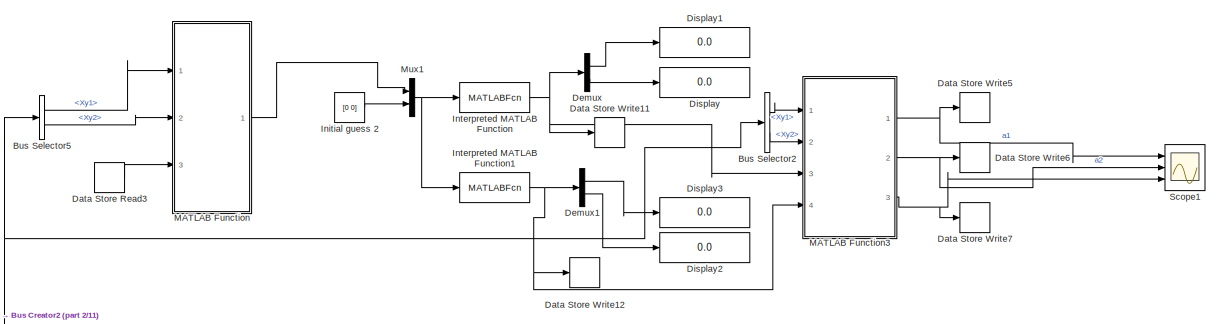
[diagram: root canvas - part 1/11, top left region]
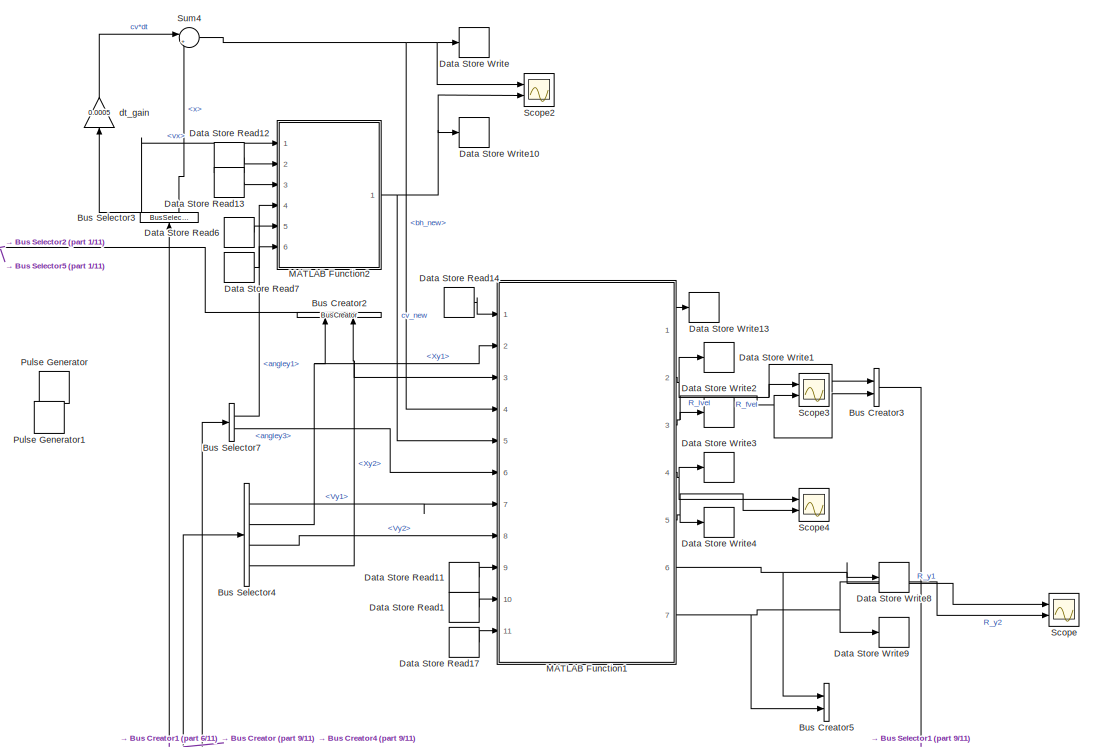
[diagram: root canvas - part 2/11, middle left region]
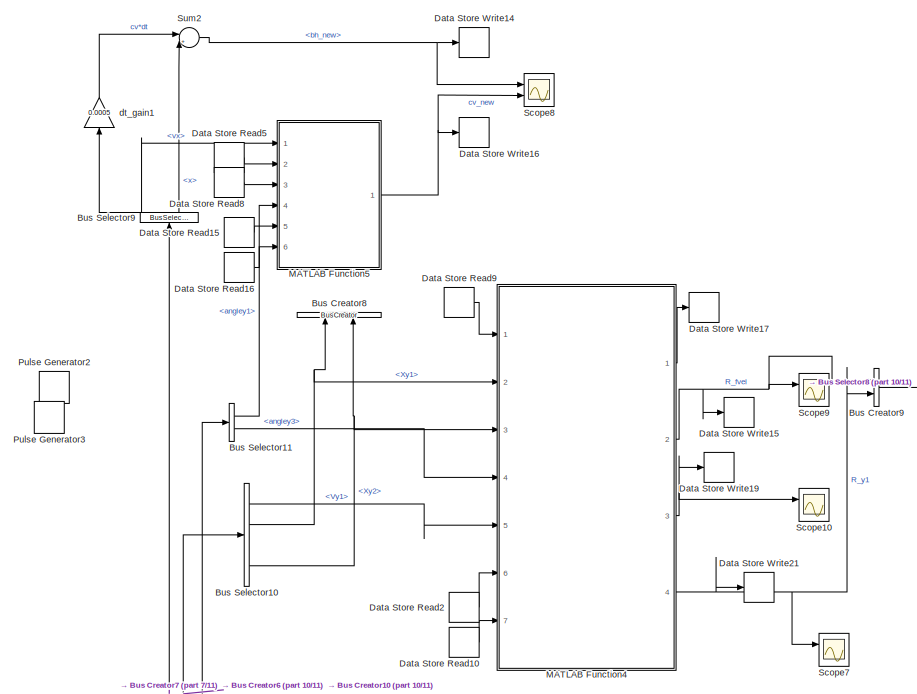
[diagram: root canvas - part 3/11, central region]
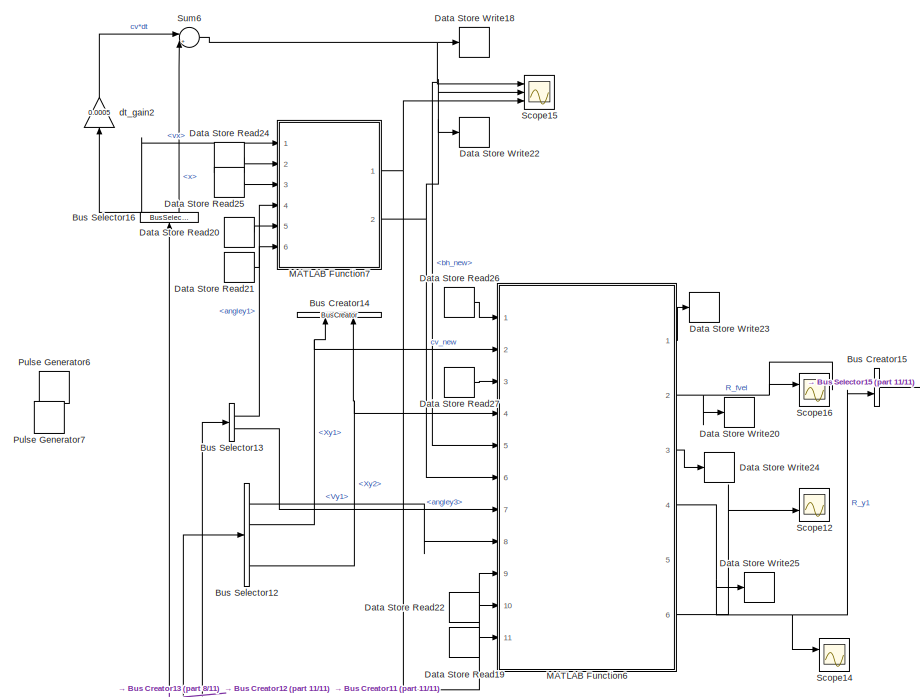
[diagram: root canvas - part 4/11, middle right region]
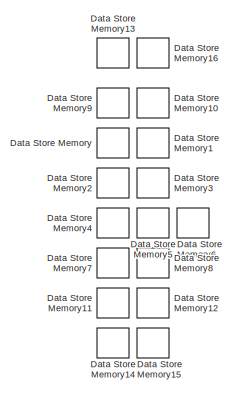
[diagram: root canvas - part 5/11, central region]
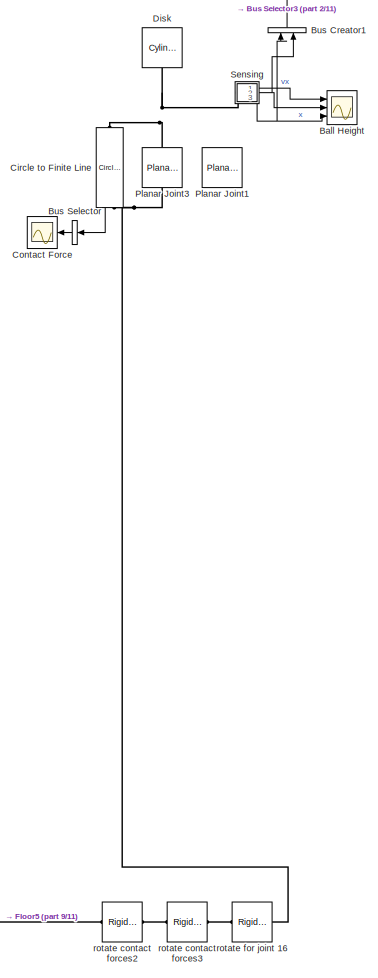
[diagram: root canvas - part 6/11, bottom left region]
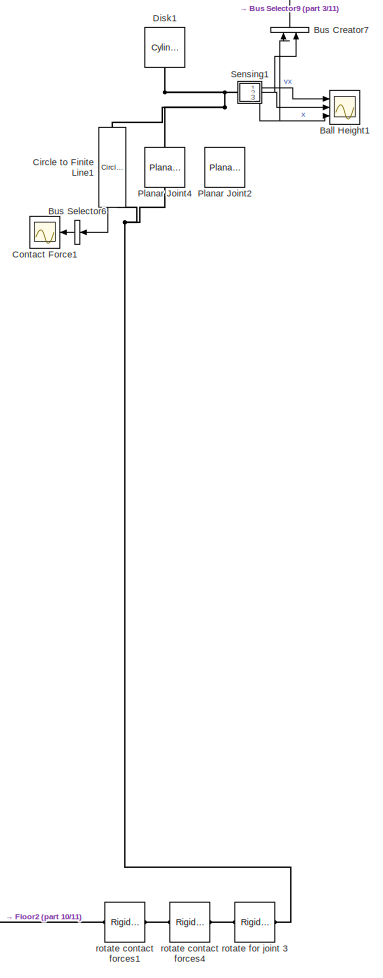
[diagram: root canvas - part 7/11, bottom center region]
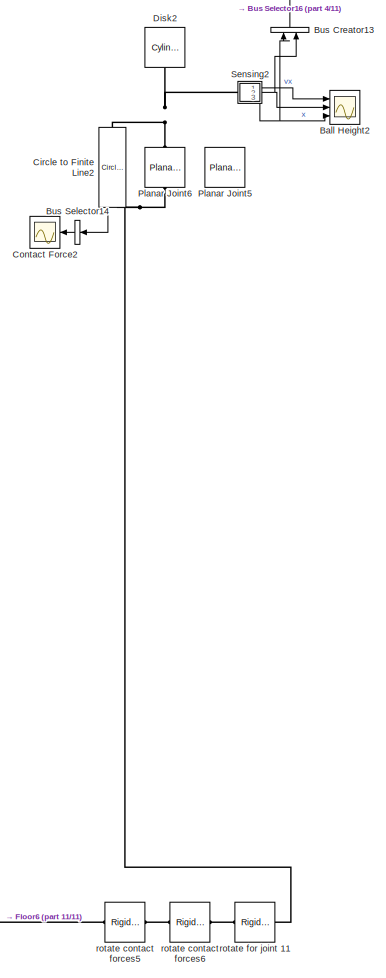
[diagram: root canvas - part 8/11, bottom right region]
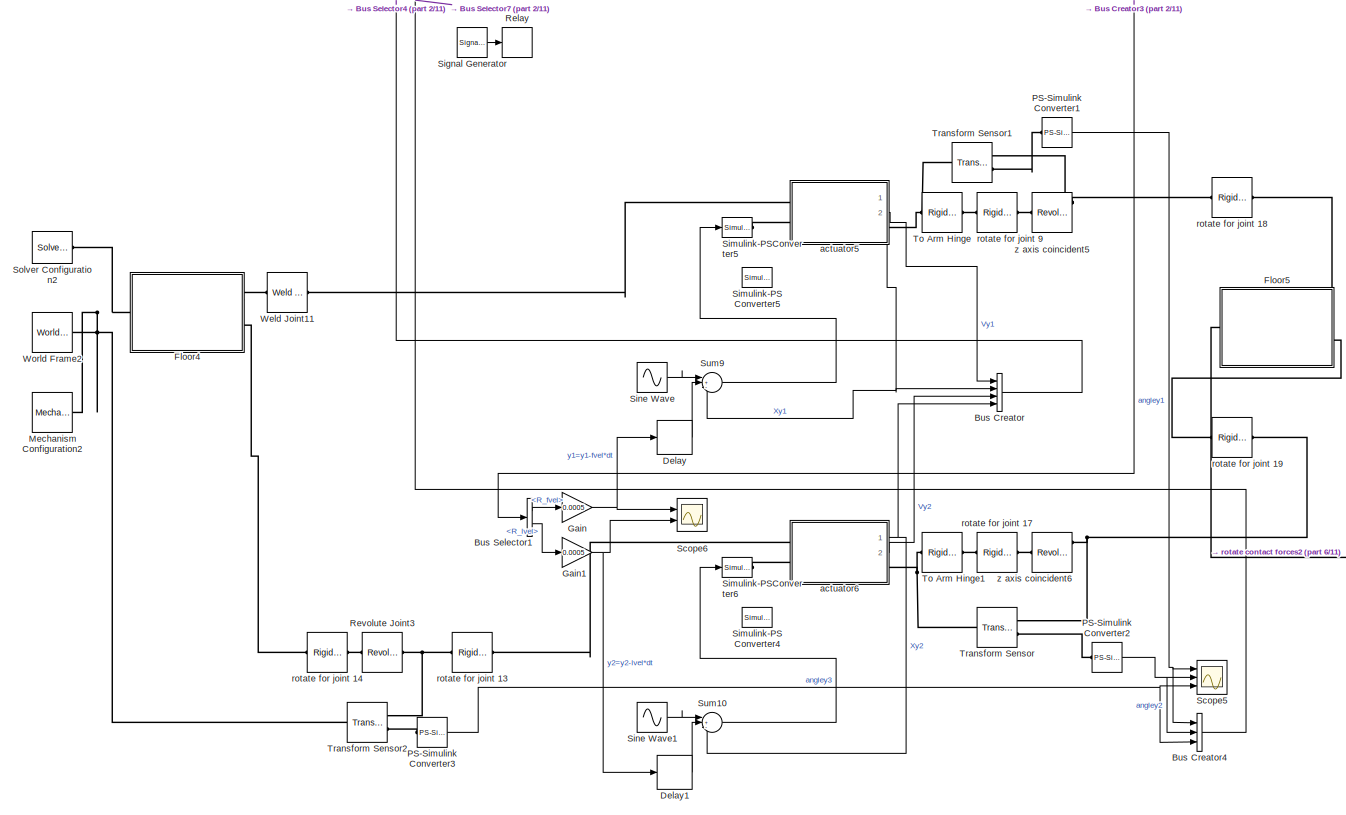
[diagram: root canvas - part 9/11, bottom left region]
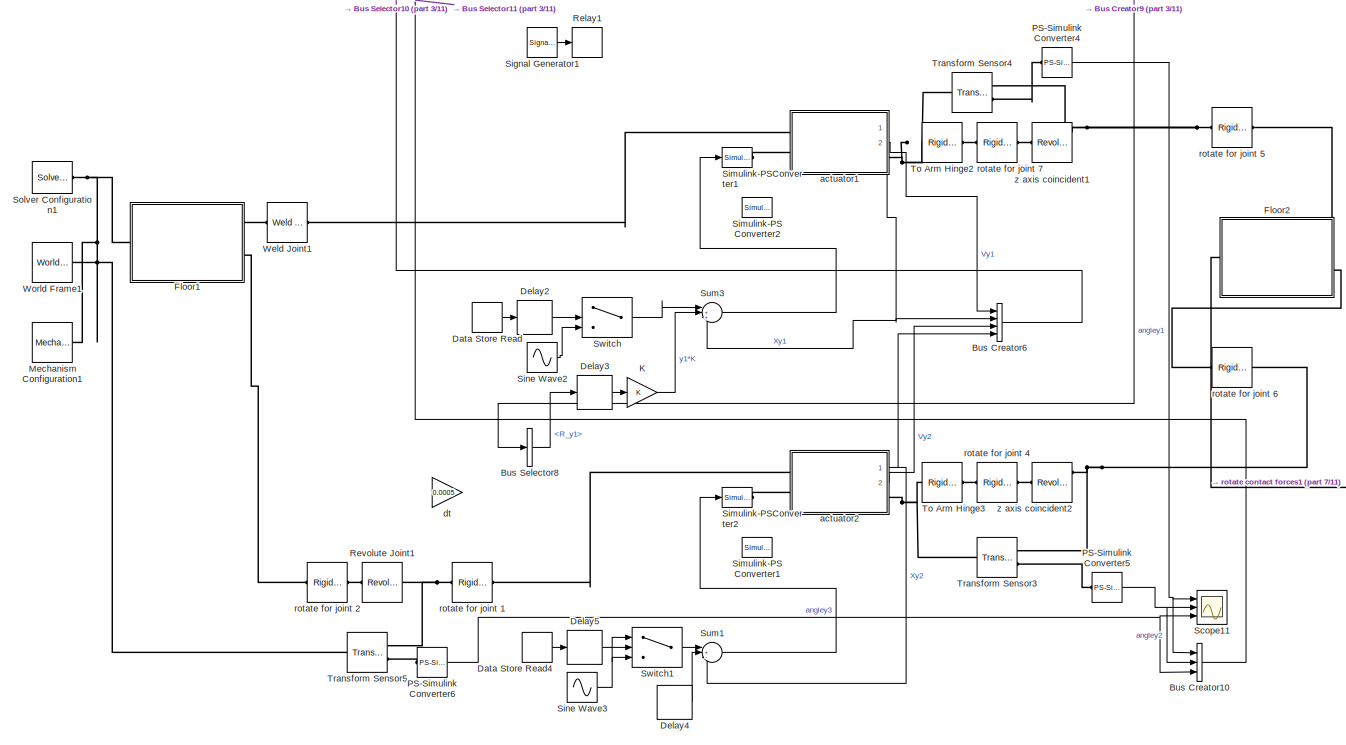
[diagram: root canvas - part 10/11, bottom center region]
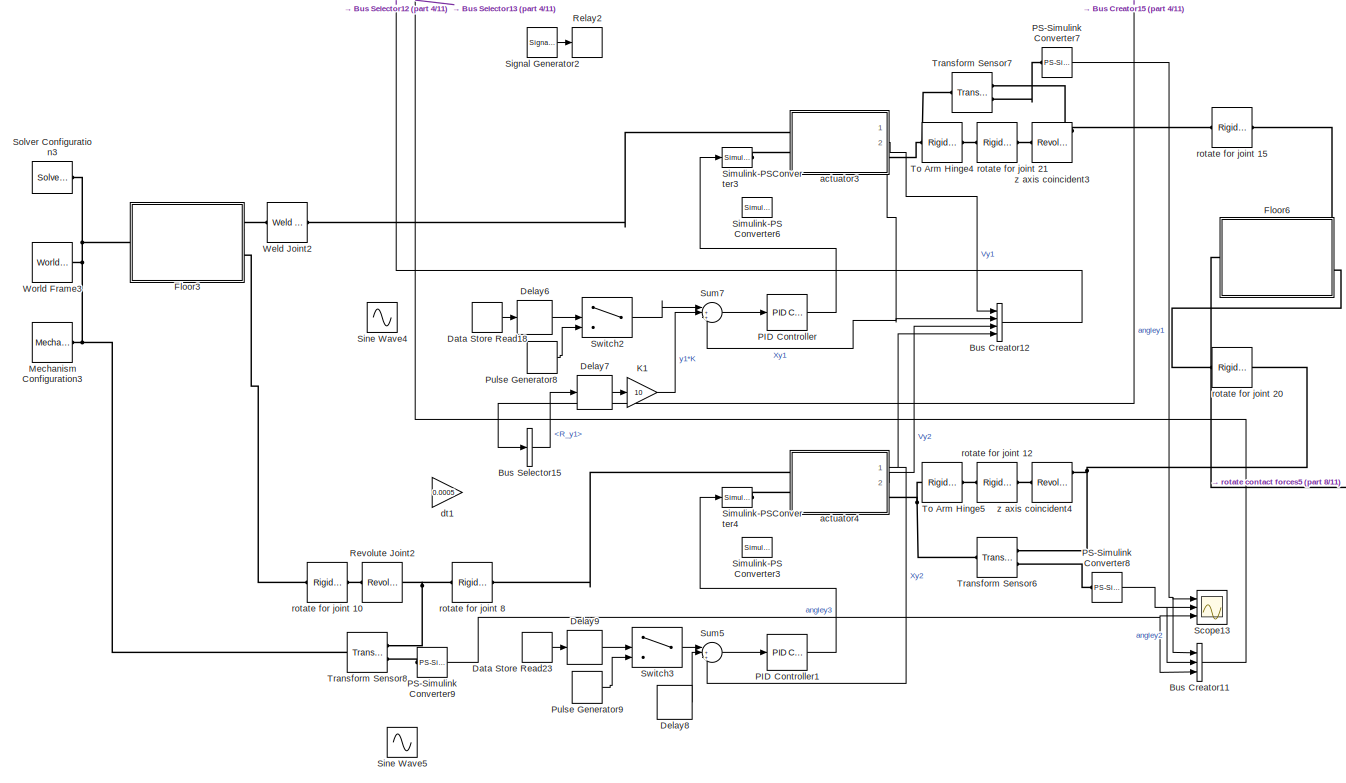
[diagram: root canvas - part 11/11, bottom right region]
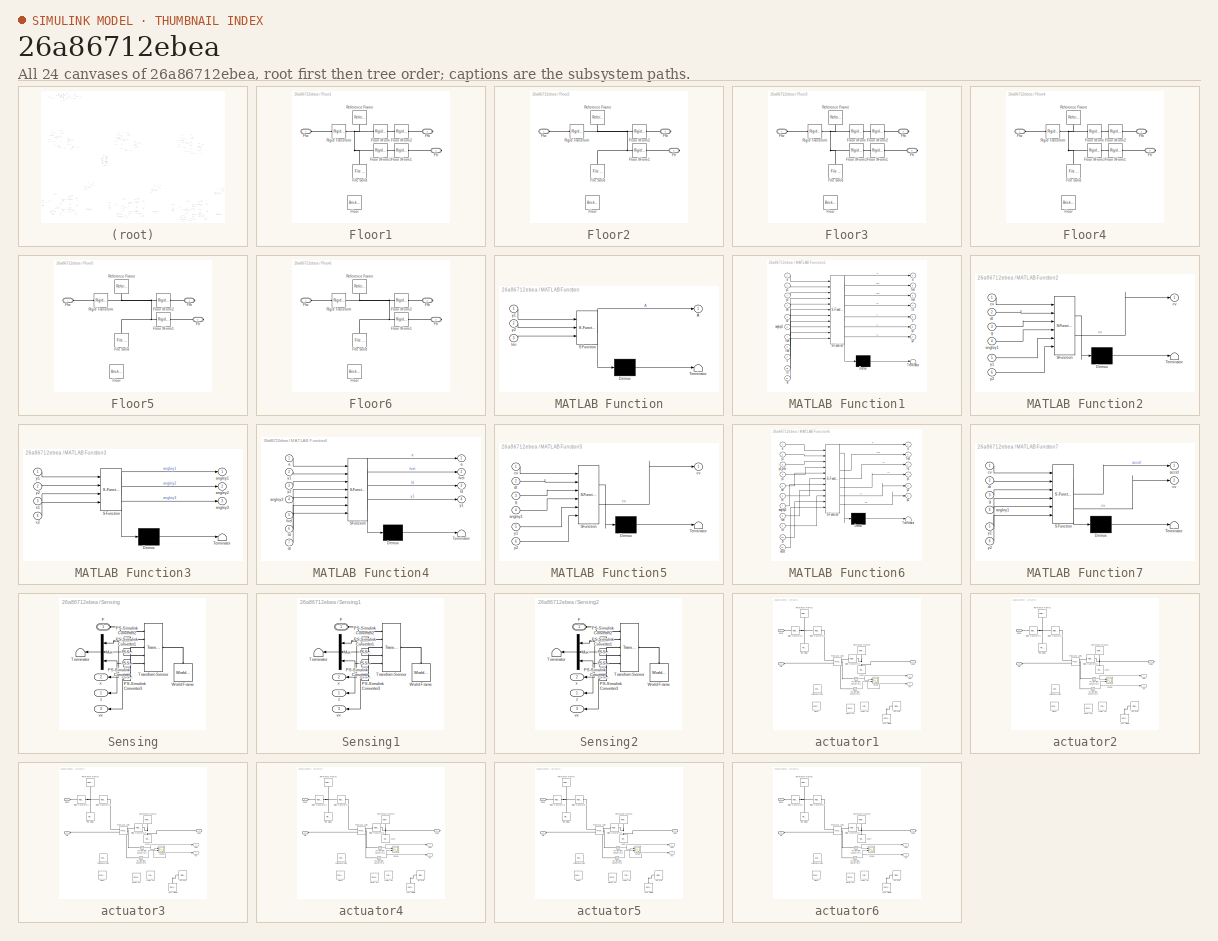
[diagram: thumbnail index - all 24 canvases of the model, root first then tree order]
MODEL slx_26a86712ebea
KIND model
CONFIG AbsTol = auto
CONFIG EnableMultiTasking = off
CONFIG FixedStep = auto
CONFIG MaxStep = auto
CONFIG MinStep = auto
CONFIG RelTol = 1e-3
CONFIG SampleTimeConstraint = Unconstrained
CONFIG SolverName = VariableStepAuto
CONFIG StartTime = 0.0
CONFIG StopTime = 10.0
BLOCK [Scope] Ball Height
  Commented = on
  Floating = off
  NumInputPorts = 3
  Ports = [3]
  ScopeSpecificationString = Simulink.scopes.TimeScopeBlockCfg('CurrentConfiguration', extmgr.ConfigurationSet(extmgr.Configuration('Core','General UI',true,'FigureColor',[0.501960784313725 0.501960784313725 0.501960784313725]),extmgr.Configuration('Core','Source UI',true),extmgr.Configuration('Sources','WiredSimulink',true,'DataLoggingSaveFormat','StructureWithTime','DataLoggingDecimation','1','DataLoggingVariableName','Scop...<+2729ch>
BLOCK [Scope] Ball Height1
  Floating = off
  NumInputPorts = 3
  Ports = [3]
  ScopeSpecificationString = Simulink.scopes.TimeScopeBlockCfg('CurrentConfiguration', extmgr.ConfigurationSet(extmgr.Configuration('Core','General UI',true,'FigureColor',[0.501960784313725 0.501960784313725 0.501960784313725]),extmgr.Configuration('Core','Source UI',true),extmgr.Configuration('Sources','WiredSimulink',true,'DataLoggingSaveFormat','StructureWithTime','DataLoggingDecimation','1','DataLoggingVariableName','Scop...<+2727ch>
BLOCK [Scope] Ball Height2
  Commented = on
  Floating = off
  NumInputPorts = 3
  Ports = [3]
  ScopeSpecificationString = Simulink.scopes.TimeScopeBlockCfg('CurrentConfiguration', extmgr.ConfigurationSet(extmgr.Configuration('Core','General UI',true,'FigureColor',[0.501960784313725 0.501960784313725 0.501960784313725]),extmgr.Configuration('Core','Source UI',true),extmgr.Configuration('Sources','WiredSimulink',true,'DataLoggingSaveFormat','StructureWithTime','DataLoggingDecimation','1','DataLoggingVariableName','Scop...<+2727ch>
BLOCK [BusCreator] Bus Creator
  Commented = on
  DisplayOption = bar
  InheritFromInputs = on
  Inputs = 4
  Ports = [4, 1]
BLOCK [BusCreator] Bus Creator1
  Commented = on
  DisplayOption = bar
  InheritFromInputs = on
  Inputs = 2
  NameLocation = right
  Ports = [2, 1]
BLOCK [BusCreator] Bus Creator10
  DisplayOption = bar
  InheritFromInputs = on
  Inputs = 3
  Ports = [3, 1]
BLOCK [BusCreator] Bus Creator11
  Commented = on
  DisplayOption = bar
  InheritFromInputs = on
  Inputs = 3
  Ports = [3, 1]
BLOCK [BusCreator] Bus Creator12
  Commented = on
  DisplayOption = bar
  InheritFromInputs = on
  Inputs = 4
  Ports = [4, 1]
BLOCK [BusCreator] Bus Creator13
  Commented = on
  DisplayOption = bar
  InheritFromInputs = on
  Inputs = 2
  NameLocation = right
  Ports = [2, 1]
BLOCK [BusCreator] Bus Creator14
  Commented = on
  DisplayOption = bar
  InheritFromInputs = on
  Inputs = 2
  NameLocation = right
  Ports = [2, 1]
BLOCK [BusCreator] Bus Creator15
  Commented = on
  DisplayOption = bar
  InheritFromInputs = on
  Inputs = 2
  Ports = [2, 1]
BLOCK [BusCreator] Bus Creator2
  Commented = on
  DisplayOption = bar
  InheritFromInputs = on
  Inputs = 2
  NameLocation = right
  Ports = [2, 1]
BLOCK [BusCreator] Bus Creator3
  Commented = on
  DisplayOption = bar
  InheritFromInputs = on
  Inputs = 2
  Ports = [2, 1]
BLOCK [BusCreator] Bus Creator4
  Commented = on
  DisplayOption = bar
  InheritFromInputs = on
  Inputs = 3
  Ports = [3, 1]
BLOCK [BusCreator] Bus Creator5
  Commented = on
  DisplayOption = bar
  InheritFromInputs = on
  Inputs = 2
  Ports = [2, 1]
BLOCK [BusCreator] Bus Creator6
  DisplayOption = bar
  InheritFromInputs = on
  Inputs = 4
  Ports = [4, 1]
BLOCK [BusCreator] Bus Creator7
  DisplayOption = bar
  InheritFromInputs = on
  Inputs = 2
  NameLocation = right
  Ports = [2, 1]
BLOCK [BusCreator] Bus Creator8
  DisplayOption = bar
  InheritFromInputs = on
  Inputs = 2
  NameLocation = right
  Ports = [2, 1]
BLOCK [BusCreator] Bus Creator9
  DisplayOption = bar
  InheritFromInputs = on
  Inputs = 2
  Ports = [2, 1]
BLOCK [BusSelector] Bus Selector
  Commented = on
  NameLocation = top
  OutputAsBus = on
  OutputSignals = Normal Force
  Ports = [1, 1]
BLOCK [BusSelector] Bus Selector1
  Commented = on
  OutputSignals = R_fvel,R_lvel
  Ports = [1, 2]
BLOCK [BusSelector] Bus Selector10
  OutputSignals = Vy1,Xy1,Vy2,Xy2
  Ports = [1, 4]
BLOCK [BusSelector] Bus Selector11
  OutputSignals = angley1,angley3
  Ports = [1, 2]
BLOCK [BusSelector] Bus Selector12
  Commented = on
  OutputSignals = Vy1,Xy1,Vy2,Xy2
  Ports = [1, 4]
BLOCK [BusSelector] Bus Selector13
  Commented = on
  OutputSignals = angley1,angley3
  Ports = [1, 2]
BLOCK [BusSelector] Bus Selector14
  Commented = on
  NameLocation = top
  OutputAsBus = on
  OutputSignals = Normal Force
  Ports = [1, 1]
BLOCK [BusSelector] Bus Selector15
  Commented = on
  OutputSignals = R_y1
  Ports = [1, 1]
BLOCK [BusSelector] Bus Selector16
  Commented = on
  NameLocation = right
  OutputSignals = vx,x
  Ports = [1, 2]
BLOCK [BusSelector] Bus Selector2
  Commented = on
  OutputSignals = Xy1,Xy2
  Ports = [1, 2]
BLOCK [BusSelector] Bus Selector3
  Commented = on
  NameLocation = right
  OutputSignals = vx,x
  Ports = [1, 2]
BLOCK [BusSelector] Bus Selector4
  Commented = on
  OutputSignals = Vy1,Xy1,Vy2,Xy2
  Ports = [1, 4]
BLOCK [BusSelector] Bus Selector5
  Commented = on
  OutputSignals = Xy1,Xy2
  Ports = [1, 2]
BLOCK [BusSelector] Bus Selector6
  NameLocation = top
  OutputAsBus = on
  OutputSignals = Normal Force
  Ports = [1, 1]
BLOCK [BusSelector] Bus Selector7
  Commented = on
  OutputSignals = angley1,angley3
  Ports = [1, 2]
BLOCK [BusSelector] Bus Selector8
  OutputSignals = R_y1
  Ports = [1, 1]
BLOCK [BusSelector] Bus Selector9
  NameLocation = right
  OutputSignals = vx,x
  Ports = [1, 2]
BLOCK [Reference] Circle to Finite Line  REF=Contact_Forces_Lib/2D/Circle to Finite Line Force
  Commented = on
  NameLocation = left
  Ports = [0, 1, 0, 0, 0, 1, 1]
  SourceBlock = Contact_Forces_Lib/2D/Circle to Finite Line Force
  SourceProductName = Simscape Multibody Contact Forces Library
  SourceType = Circle on Finite Line Force
BLOCK [Reference] Circle to Finite Line1  REF=Contact_Forces_Lib/2D/Circle to Finite Line Force
  NameLocation = left
  Ports = [0, 1, 0, 0, 0, 1, 1]
  SourceBlock = Contact_Forces_Lib/2D/Circle to Finite Line Force
  SourceProductName = Simscape Multibody Contact Forces Library
  SourceType = Circle on Finite Line Force
BLOCK [Reference] Circle to Finite Line2  REF=Contact_Forces_Lib/2D/Circle to Finite Line Force
  Commented = on
  NameLocation = left
  Ports = [0, 1, 0, 0, 0, 1, 1]
  SourceBlock = Contact_Forces_Lib/2D/Circle to Finite Line Force
  SourceProductName = Simscape Multibody Contact Forces Library
  SourceType = Circle on Finite Line Force
BLOCK [Scope] Contact Force
  Commented = on
  Floating = off
  NumInputPorts = 1
  Ports = [1]
  ScopeSpecificationString = Simulink.scopes.TimeScopeBlockCfg('CurrentConfiguration', extmgr.ConfigurationSet(extmgr.Configuration('Core','General UI',true,'FigureColor',[0.501960784313725 0.501960784313725 0.501960784313725]),extmgr.Configuration('Core','Source UI',true),extmgr.Configuration('Sources','WiredSimulink',true,'DataLoggingSaveFormat','StructureWithTime','DataLoggingDecimation','1','DataLoggingDecimateData',true,...<+2643ch>  <repeated x3 — deduplicated; at blocks: Contact Force, Contact Force1, Contact Force2>
BLOCK [Scope] Contact Force1
  Floating = off
  NumInputPorts = 1
  Ports = [1]
BLOCK [Scope] Contact Force2
  Commented = on
  Floating = off
  NumInputPorts = 1
  Ports = [1]
BLOCK [DataStoreMemory] Data Store Memory
  DataStoreName = bh
  ReadBeforeWriteMsg = warning
  ShowAdditionalParam = off
  WriteAfterReadMsg = warning
  WriteAfterWriteMsg = warning
BLOCK [DataStoreMemory] Data Store Memory1
  DataStoreName = cv
  ReadBeforeWriteMsg = warning
  ShowAdditionalParam = off
  WriteAfterReadMsg = warning
  WriteAfterWriteMsg = warning
BLOCK [DataStoreMemory] Data Store Memory10
  DataStoreName = len
  InitialValue = 2.5
  ReadBeforeWriteMsg = warning
  ShowAdditionalParam = off
  WriteAfterReadMsg = warning
  WriteAfterWriteMsg = warning
BLOCK [DataStoreMemory] Data Store Memory11
  DataStoreName = ld
  ReadBeforeWriteMsg = warning
  ShowAdditionalParam = off
  WriteAfterReadMsg = warning
  WriteAfterWriteMsg = warning
BLOCK [DataStoreMemory] Data Store Memory12
  DataStoreName = v
  ReadBeforeWriteMsg = warning
  ShowAdditionalParam = off
  WriteAfterReadMsg = warning
  WriteAfterWriteMsg = warning
BLOCK [DataStoreMemory] Data Store Memory13
  DataStoreName = g
  InitialValue = 9.8
  ReadBeforeWriteMsg = warning
  ShowAdditionalParam = off
  WriteAfterReadMsg = warning
  WriteAfterWriteMsg = warning
BLOCK [DataStoreMemory] Data Store Memory14
  DataStoreName = x1
  InitialValue = [0 0]
  ReadBeforeWriteMsg = warning
  ShowAdditionalParam = off
  WriteAfterReadMsg = warning
  WriteAfterWriteMsg = warning
BLOCK [DataStoreMemory] Data Store Memory15
  DataStoreName = x2
  InitialValue = [0 0]
  ReadBeforeWriteMsg = warning
  ShowAdditionalParam = off
  WriteAfterReadMsg = warning
  WriteAfterWriteMsg = warning
BLOCK [DataStoreMemory] Data Store Memory16
  DataStoreName = a
  ReadBeforeWriteMsg = warning
  ShowAdditionalParam = off
  WriteAfterReadMsg = warning
  WriteAfterWriteMsg = warning
BLOCK [DataStoreMemory] Data Store Memory2
  DataStoreName = y1
  ReadBeforeWriteMsg = warning
  ShowAdditionalParam = off
  WriteAfterReadMsg = warning
  WriteAfterWriteMsg = warning
BLOCK [DataStoreMemory] Data Store Memory3
  DataStoreName = y2
  ReadBeforeWriteMsg = warning
  ShowAdditionalParam = off
  WriteAfterReadMsg = warning
  WriteAfterWriteMsg = warning
BLOCK [DataStoreMemory] Data Store Memory4
  DataStoreName = angley1
  ReadBeforeWriteMsg = warning
  ShowAdditionalParam = off
  WriteAfterReadMsg = warning
  WriteAfterWriteMsg = warning
BLOCK [DataStoreMemory] Data Store Memory5
  DataStoreName = angley2
  ReadBeforeWriteMsg = warning
  ShowAdditionalParam = off
  WriteAfterReadMsg = warning
  WriteAfterWriteMsg = warning
BLOCK [DataStoreMemory] Data Store Memory6
  DataStoreName = angley3
  ReadBeforeWriteMsg = warning
  ShowAdditionalParam = off
  WriteAfterReadMsg = warning
  WriteAfterWriteMsg = warning
BLOCK [DataStoreMemory] Data Store Memory7
  DataStoreName = fvel
  ReadBeforeWriteMsg = warning
  ShowAdditionalParam = off
  WriteAfterReadMsg = warning
  WriteAfterWriteMsg = warning
BLOCK [DataStoreMemory] Data Store Memory8
  DataStoreName = lvel
  ReadBeforeWriteMsg = warning
  ShowAdditionalParam = off
  WriteAfterReadMsg = warning
  WriteAfterWriteMsg = warning
BLOCK [DataStoreMemory] Data Store Memory9
  DataStoreName = dt
  InitialValue = 0.0005
  ReadBeforeWriteMsg = warning
  ShowAdditionalParam = off
  WriteAfterReadMsg = warning
  WriteAfterWriteMsg = warning
BLOCK [DataStoreRead] Data Store Read
  DataStoreName = a
  IndexOptions = Index vector (dialog)
  Indices = 1
  OutputSizes = 1
  Ports = [0, 1]
BLOCK [DataStoreRead] Data Store Read1
  Commented = on
  DataStoreName = ld
  IndexOptions = Index vector (dialog)
  Indices = 1
  OutputSizes = 1
  Ports = [0, 1]
BLOCK [DataStoreRead] Data Store Read10
  DataStoreName = dt
  IndexOptions = Index vector (dialog)
  Indices = 1
  OutputSizes = 1
  Ports = [0, 1]
BLOCK [DataStoreRead] Data Store Read11
  Commented = on
  DataStoreName = v
  IndexOptions = Index vector (dialog)
  Indices = 1
  OutputSizes = 1
  Ports = [0, 1]
BLOCK [DataStoreRead] Data Store Read12
  Commented = on
  DataStoreName = dt
  IndexOptions = Index vector (dialog)
  Indices = 1
  OutputSizes = 1
  Ports = [0, 1]
BLOCK [DataStoreRead] Data Store Read13
  Commented = on
  DataStoreName = g
  IndexOptions = Index vector (dialog)
  Indices = 1
  OutputSizes = 1
  Ports = [0, 1]
BLOCK [DataStoreRead] Data Store Read14
  Commented = on
  DataStoreName = a
  IndexOptions = Index vector (dialog)
  Indices = 1
  OutputSizes = 1
  Ports = [0, 1]
BLOCK [DataStoreRead] Data Store Read15
  DataStoreName = y1
  IndexOptions = Index vector (dialog)
  Indices = 1
  OutputSizes = 1
  Ports = [0, 1]
BLOCK [DataStoreRead] Data Store Read16
  DataStoreName = y2
  IndexOptions = Index vector (dialog)
  Indices = 1
  OutputSizes = 1
  Ports = [0, 1]
BLOCK [DataStoreRead] Data Store Read17
  Commented = on
  DataStoreName = dt
  IndexOptions = Index vector (dialog)
  Indices = 1
  OutputSizes = 1
  Ports = [0, 1]
BLOCK [DataStoreRead] Data Store Read18
  Commented = on
  DataStoreName = a
  IndexOptions = Index vector (dialog)
  Indices = 1
  OutputSizes = 1
  Ports = [0, 1]
BLOCK [DataStoreRead] Data Store Read19
  Commented = on
  DataStoreName = dt
  IndexOptions = Index vector (dialog)
  Indices = 1
  OutputSizes = 1
  Ports = [0, 1]
BLOCK [DataStoreRead] Data Store Read2
  DataStoreName = ld
  IndexOptions = Index vector (dialog)
  Indices = 1
  OutputSizes = 1
  Ports = [0, 1]
BLOCK [DataStoreRead] Data Store Read20
  Commented = on
  DataStoreName = y1
  IndexOptions = Index vector (dialog)
  Indices = 1
  OutputSizes = 1
  Ports = [0, 1]
BLOCK [DataStoreRead] Data Store Read21
  Commented = on
  DataStoreName = y2
  IndexOptions = Index vector (dialog)
  Indices = 1
  OutputSizes = 1
  Ports = [0, 1]
BLOCK [DataStoreRead] Data Store Read22
  Commented = on
  DataStoreName = ld
  IndexOptions = Index vector (dialog)
  Indices = 1
  OutputSizes = 1
  Ports = [0, 1]
BLOCK [DataStoreRead] Data Store Read23
  Commented = on
  DataStoreName = a
  IndexOptions = Index vector (dialog)
  Indices = 1
  OutputSizes = 1
  Ports = [0, 1]
BLOCK [DataStoreRead] Data Store Read24
  Commented = on
  DataStoreName = dt
  IndexOptions = Index vector (dialog)
  Indices = 1
  OutputSizes = 1
  Ports = [0, 1]
BLOCK [DataStoreRead] Data Store Read25
  Commented = on
  DataStoreName = g
  IndexOptions = Index vector (dialog)
  Indices = 1
  OutputSizes = 1
  Ports = [0, 1]
BLOCK [DataStoreRead] Data Store Read26
  Commented = on
  DataStoreName = a
  IndexOptions = Index vector (dialog)
  Indices = 1
  OutputSizes = 1
  Ports = [0, 1]
BLOCK [DataStoreRead] Data Store Read27
  Commented = on
  DataStoreName = y1
  IndexOptions = Index vector (dialog)
  Indices = 1
  OutputSizes = 1
  Ports = [0, 1]
BLOCK [DataStoreRead] Data Store Read3
  Commented = on
  DataStoreName = len
  IndexOptions = Index vector (dialog)
  Indices = 1
  OutputSizes = 1
  Ports = [0, 1]
BLOCK [DataStoreRead] Data Store Read4
  DataStoreName = a
  IndexOptions = Index vector (dialog)
  Indices = 1
  OutputSizes = 1
  Ports = [0, 1]
BLOCK [DataStoreRead] Data Store Read5
  DataStoreName = dt
  IndexOptions = Index vector (dialog)
  Indices = 1
  OutputSizes = 1
  Ports = [0, 1]
BLOCK [DataStoreRead] Data Store Read6
  Commented = on
  DataStoreName = y1
  IndexOptions = Index vector (dialog)
  Indices = 1
  OutputSizes = 1
  Ports = [0, 1]
BLOCK [DataStoreRead] Data Store Read7
  Commented = on
  DataStoreName = y2
  IndexOptions = Index vector (dialog)
  Indices = 1
  OutputSizes = 1
  Ports = [0, 1]
BLOCK [DataStoreRead] Data Store Read8
  DataStoreName = g
  IndexOptions = Index vector (dialog)
  Indices = 1
  OutputSizes = 1
  Ports = [0, 1]
BLOCK [DataStoreRead] Data Store Read9
  DataStoreName = a
  IndexOptions = Index vector (dialog)
  Indices = 1
  OutputSizes = 1
  Ports = [0, 1]
BLOCK [DataStoreWrite] Data Store Write
  Commented = on
  DataStoreName = bh
  IndexOptions = Index vector (dialog)
  Indices = 1
  OutputSizes = 1
  Ports = [1]
BLOCK [DataStoreWrite] Data Store Write1
  Commented = on
  DataStoreName = fvel
  IndexOptions = Index vector (dialog)
  Indices = 1
  OutputSizes = 1
  Ports = [1]
BLOCK [DataStoreWrite] Data Store Write10
  Commented = on
  DataStoreName = cv
  IndexOptions = Index vector (dialog)
  Indices = 1
  OutputSizes = 1
  Ports = [1]
BLOCK [DataStoreWrite] Data Store Write11
  Commented = on
  DataStoreName = x1
  IndexOptions = Index vector (dialog)
  Indices = 1
  OutputSizes = 1
  Ports = [1]
BLOCK [DataStoreWrite] Data Store Write12
  Commented = on
  DataStoreName = x2
  IndexOptions = Index vector (dialog)
  Indices = 1
  OutputSizes = 1
  Ports = [1]
BLOCK [DataStoreWrite] Data Store Write13
  Commented = on
  DataStoreName = a
  IndexOptions = Index vector (dialog)
  Indices = 1
  OutputSizes = 1
  Ports = [1]
BLOCK [DataStoreWrite] Data Store Write14
  DataStoreName = bh
  IndexOptions = Index vector (dialog)
  Indices = 1
  OutputSizes = 1
  Ports = [1]
BLOCK [DataStoreWrite] Data Store Write15
  DataStoreName = fvel
  IndexOptions = Index vector (dialog)
  Indices = 1
  OutputSizes = 1
  Ports = [1]
BLOCK [DataStoreWrite] Data Store Write16
  DataStoreName = cv
  IndexOptions = Index vector (dialog)
  Indices = 1
  OutputSizes = 1
  Ports = [1]
BLOCK [DataStoreWrite] Data Store Write17
  DataStoreName = a
  IndexOptions = Index vector (dialog)
  Indices = 1
  OutputSizes = 1
  Ports = [1]
BLOCK [DataStoreWrite] Data Store Write18
  Commented = on
  DataStoreName = bh
  IndexOptions = Index vector (dialog)
  Indices = 1
  OutputSizes = 1
  Ports = [1]
BLOCK [DataStoreWrite] Data Store Write19
  DataStoreName = ld
  IndexOptions = Index vector (dialog)
  Indices = 1
  OutputSizes = 1
  Ports = [1]
BLOCK [DataStoreWrite] Data Store Write2
  Commented = on
  DataStoreName = lvel
  IndexOptions = Index vector (dialog)
  Indices = 1
  OutputSizes = 1
  Ports = [1]
BLOCK [DataStoreWrite] Data Store Write20
  Commented = on
  DataStoreName = fvel
  IndexOptions = Index vector (dialog)
  Indices = 1
  OutputSizes = 1
  Ports = [1]
BLOCK [DataStoreWrite] Data Store Write21
  DataStoreName = y1
  IndexOptions = Index vector (dialog)
  Indices = 1
  OutputSizes = 1
  Ports = [1]
BLOCK [DataStoreWrite] Data Store Write22
  Commented = on
  DataStoreName = cv
  IndexOptions = Index vector (dialog)
  Indices = 1
  OutputSizes = 1
  Ports = [1]
BLOCK [DataStoreWrite] Data Store Write23
  Commented = on
  DataStoreName = a
  IndexOptions = Index vector (dialog)
  Indices = 1
  OutputSizes = 1
  Ports = [1]
BLOCK [DataStoreWrite] Data Store Write24
  Commented = on
  DataStoreName = ld
  IndexOptions = Index vector (dialog)
  Indices = 1
  OutputSizes = 1
  Ports = [1]
BLOCK [DataStoreWrite] Data Store Write25
  Commented = on
  DataStoreName = y1
  IndexOptions = Index vector (dialog)
  Indices = 1
  OutputSizes = 1
  Ports = [1]
BLOCK [DataStoreWrite] Data Store Write3
  Commented = on
  DataStoreName = ld
  IndexOptions = Index vector (dialog)
  Indices = 1
  OutputSizes = 1
  Ports = [1]
BLOCK [DataStoreWrite] Data Store Write4
  Commented = on
  DataStoreName = v
  IndexOptions = Index vector (dialog)
  Indices = 1
  OutputSizes = 1
  Ports = [1]
BLOCK [DataStoreWrite] Data Store Write5
  Commented = on
  DataStoreName = angley1
  IndexOptions = Index vector (dialog)
  Indices = 1
  OutputSizes = 1
  Ports = [1]
BLOCK [DataStoreWrite] Data Store Write6
  Commented = on
  DataStoreName = angley2
  IndexOptions = Index vector (dialog)
  Indices = 1
  OutputSizes = 1
  Ports = [1]
BLOCK [DataStoreWrite] Data Store Write7
  Commented = on
  DataStoreName = angley3
  IndexOptions = Index vector (dialog)
  Indices = 1
  OutputSizes = 1
  Ports = [1]
BLOCK [DataStoreWrite] Data Store Write8
  Commented = on
  DataStoreName = y1
  IndexOptions = Index vector (dialog)
  Indices = 1
  OutputSizes = 1
  Ports = [1]
BLOCK [DataStoreWrite] Data Store Write9
  Commented = on
  DataStoreName = y2
  IndexOptions = Index vector (dialog)
  Indices = 1
  OutputSizes = 1
  Ports = [1]
BLOCK [Delay] Delay
  Commented = on
  DelayLength = 1
  InitialCondition = 0
  InputPortMap = u0
  Ports = [1, 1]
BLOCK [Delay] Delay1
  Commented = on
  DelayLength = 1
  InitialCondition = 0
  InputPortMap = u0
  Ports = [1, 1]
BLOCK [Delay] Delay2
  DelayLength = 10
  InitialCondition = 0
  InputPortMap = u0
  Ports = [1, 1]
BLOCK [Delay] Delay3
  DelayLength = 1
  InitialCondition = 0
  InputPortMap = u0
  Ports = [1, 1]
BLOCK [Delay] Delay4
  DelayLength = 1
  InitialCondition = 0
  InputPortMap = u0
  Ports = [1, 1]
BLOCK [Delay] Delay5
  DelayLength = 10
  InitialCondition = 0
  InputPortMap = u0
  Ports = [1, 1]
BLOCK [Delay] Delay6
  Commented = on
  DelayLength = 10
  InitialCondition = 0
  InputPortMap = u0
  Ports = [1, 1]
BLOCK [Delay] Delay7
  Commented = on
  DelayLength = 1
  InitialCondition = 0
  InputPortMap = u0
  Ports = [1, 1]
BLOCK [Delay] Delay8
  Commented = on
  DelayLength = 1
  InitialCondition = 0
  InputPortMap = u0
  Ports = [1, 1]
BLOCK [Delay] Delay9
  Commented = on
  DelayLength = 10
  InitialCondition = 0
  InputPortMap = u0
  Ports = [1, 1]
BLOCK [Demux] Demux
  Commented = on
  Outputs = 2
  Ports = [1, 2]
BLOCK [Demux] Demux1
  Commented = on
  Outputs = 2
  Ports = [1, 2]
BLOCK [Reference] Disk  REF=Parts_Lib/Cylinder
  Commented = on
  NameLocation = right
  Ports = [0, 0, 0, 0, 0, 1]
  SourceBlock = Parts_Lib/Cylinder
  SourceType = Solid Cylinder with Markings
BLOCK [Reference] Disk1  REF=Parts_Lib/Cylinder
  NameLocation = right
  Ports = [0, 0, 0, 0, 0, 1]
  SourceBlock = Parts_Lib/Cylinder
  SourceType = Solid Cylinder with Markings
BLOCK [Reference] Disk2  REF=Parts_Lib/Cylinder
  Commented = on
  NameLocation = right
  Ports = [0, 0, 0, 0, 0, 1]
  SourceBlock = Parts_Lib/Cylinder
  SourceType = Solid Cylinder with Markings
BLOCK [Display] Display
  Commented = on
  Decimation = 1
  Ports = [1]
BLOCK [Display] Display1
  Commented = on
  Decimation = 1
  Ports = [1]
BLOCK [Display] Display2
  Commented = on
  Decimation = 1
  Ports = [1]
BLOCK [Display] Display3
  Commented = on
  Decimation = 1
  Ports = [1]
BLOCK [SubSystem] Floor1
  Ports = [0, 0, 0, 0, 0, 1, 2]
  RequestExecContextInheritance = off
BLOCK [PMIOPort] Floor1/Ffb
  NameLocation = top
  Port = 2
  Side = Right
BLOCK [PMIOPort] Floor1/Ffr
  NameLocation = top
  Port = 3
  Side = Right
BLOCK [PMIOPort] Floor1/Ffw
  NameLocation = top
  Side = Left
BLOCK [Reference] Floor1/File Solid  REF=sm_lib/Body Elements/File Solid
  NameLocation = right
  Ports = [0, 0, 0, 0, 0, 0, 1]
  SourceBlock = sm_lib/Body Elements/File Solid
  SourceProductBaseCode = MS
  SourceType = File Solid
BLOCK [Reference] Floor1/Floor  REF=sm_lib/Body Elements/Brick Solid
  Commented = on
  NameLocation = right
  Ports = [0, 0, 0, 0, 0, 0, 1]
  SourceBlock = sm_lib/Body Elements/Brick Solid
  SourceProductBaseCode = MS
  SourceType = Brick Solid
BLOCK [Reference] Floor1/Floor XForm  REF=sm_lib/Frames and
Transforms/Rigid
Transform
  NameLocation = top
  Ports = [0, 0, 0, 0, 0, 1, 1]
  SourceBlock = sm_lib/Frames and\nTransforms/Rigid\nTransform
  SourceProductBaseCode = MS
  SourceType = Rigid\nTransform
BLOCK [Reference] Floor1/Floor XForm1  REF=sm_lib/Frames and
Transforms/Rigid
Transform
  NameLocation = top
  Ports = [0, 0, 0, 0, 0, 1, 1]
  SourceBlock = sm_lib/Frames and\nTransforms/Rigid\nTransform
  SourceProductBaseCode = MS
  SourceType = Rigid\nTransform
BLOCK [Reference] Floor1/Floor XForm2  REF=sm_lib/Frames and
Transforms/Rigid
Transform
  NameLocation = top
  Ports = [0, 0, 0, 0, 0, 1, 1]
  SourceBlock = sm_lib/Frames and\nTransforms/Rigid\nTransform
  SourceProductBaseCode = MS
  SourceType = Rigid\nTransform
BLOCK [Reference] Floor1/Floor XForm3  REF=sm_lib/Frames and
Transforms/Rigid
Transform
  NameLocation = top
  Ports = [0, 0, 0, 0, 0, 1, 1]
  SourceBlock = sm_lib/Frames and\nTransforms/Rigid\nTransform
  SourceProductBaseCode = MS
  SourceType = Rigid\nTransform
BLOCK [Reference] Floor1/Reference Frame  REF=sm_lib/Frames and
Transforms/Reference
Frame
  NameLocation = left
  Ports = [0, 0, 0, 0, 0, 0, 1]
  SourceBlock = sm_lib/Frames and\nTransforms/Reference\nFrame
  SourceProductBaseCode = MS
  SourceType = Reference\nFrame
BLOCK [Reference] Floor1/Rigid Transform  REF=sm_lib/Frames and
Transforms/Rigid
Transform
  NameLocation = top
  Ports = [0, 0, 0, 0, 0, 1, 1]
  SourceBlock = sm_lib/Frames and\nTransforms/Rigid\nTransform
  SourceProductBaseCode = MS
  SourceType = Rigid\nTransform
BLOCK [SubSystem] Floor2
  Ports = [0, 0, 0, 0, 0, 1, 2]
  RequestExecContextInheritance = off
BLOCK [PMIOPort] Floor2/Ffb
  NameLocation = top
  Port = 2
  Side = Right
BLOCK [PMIOPort] Floor2/Ffr
  NameLocation = top
  Port = 3
  Side = Right
BLOCK [PMIOPort] Floor2/Ffw
  NameLocation = top
  Side = Left
BLOCK [Reference] Floor2/File Solid  REF=sm_lib/Body Elements/File Solid
  NameLocation = right
  Ports = [0, 0, 0, 0, 0, 0, 1]
  SourceBlock = sm_lib/Body Elements/File Solid
  SourceProductBaseCode = MS
  SourceType = File Solid
BLOCK [Reference] Floor2/Floor  REF=sm_lib/Body Elements/Brick Solid
  Commented = on
  NameLocation = right
  Ports = [0, 0, 0, 0, 0, 0, 1]
  SourceBlock = sm_lib/Body Elements/Brick Solid
  SourceProductBaseCode = MS
  SourceType = Brick Solid
BLOCK [Reference] Floor2/Floor XForm1  REF=sm_lib/Frames and
Transforms/Rigid
Transform
  NameLocation = top
  Ports = [0, 0, 0, 0, 0, 1, 1]
  SourceBlock = sm_lib/Frames and\nTransforms/Rigid\nTransform
  SourceProductBaseCode = MS
  SourceType = Rigid\nTransform
BLOCK [Reference] Floor2/Floor XForm2  REF=sm_lib/Frames and
Transforms/Rigid
Transform
  NameLocation = top
  Ports = [0, 0, 0, 0, 0, 1, 1]
  SourceBlock = sm_lib/Frames and\nTransforms/Rigid\nTransform
  SourceProductBaseCode = MS
  SourceType = Rigid\nTransform
BLOCK [Reference] Floor2/Reference Frame  REF=sm_lib/Frames and
Transforms/Reference
Frame
  NameLocation = left
  Ports = [0, 0, 0, 0, 0, 0, 1]
  SourceBlock = sm_lib/Frames and\nTransforms/Reference\nFrame
  SourceProductBaseCode = MS
  SourceType = Reference\nFrame
BLOCK [Reference] Floor2/Rigid Transform  REF=sm_lib/Frames and
Transforms/Rigid
Transform
  NameLocation = top
  Ports = [0, 0, 0, 0, 0, 1, 1]
  SourceBlock = sm_lib/Frames and\nTransforms/Rigid\nTransform
  SourceProductBaseCode = MS
  SourceType = Rigid\nTransform
BLOCK [SubSystem] Floor3
  Commented = on
  Ports = [0, 0, 0, 0, 0, 1, 2]
  RequestExecContextInheritance = off
BLOCK [PMIOPort] Floor3/Ffb
  NameLocation = top
  Port = 2
  Side = Right
BLOCK [PMIOPort] Floor3/Ffr
  NameLocation = top
  Port = 3
  Side = Right
BLOCK [PMIOPort] Floor3/Ffw
  NameLocation = top
  Side = Left
BLOCK [Reference] Floor3/File Solid  REF=sm_lib/Body Elements/File Solid
  NameLocation = right
  Ports = [0, 0, 0, 0, 0, 0, 1]
  SourceBlock = sm_lib/Body Elements/File Solid
  SourceProductBaseCode = MS
  SourceType = File Solid
BLOCK [Reference] Floor3/Floor  REF=sm_lib/Body Elements/Brick Solid
  Commented = on
  NameLocation = right
  Ports = [0, 0, 0, 0, 0, 0, 1]
  SourceBlock = sm_lib/Body Elements/Brick Solid
  SourceProductBaseCode = MS
  SourceType = Brick Solid
BLOCK [Reference] Floor3/Floor XForm  REF=sm_lib/Frames and
Transforms/Rigid
Transform
  NameLocation = top
  Ports = [0, 0, 0, 0, 0, 1, 1]
  SourceBlock = sm_lib/Frames and\nTransforms/Rigid\nTransform
  SourceProductBaseCode = MS
  SourceType = Rigid\nTransform
BLOCK [Reference] Floor3/Floor XForm1  REF=sm_lib/Frames and
Transforms/Rigid
Transform
  NameLocation = top
  Ports = [0, 0, 0, 0, 0, 1, 1]
  SourceBlock = sm_lib/Frames and\nTransforms/Rigid\nTransform
  SourceProductBaseCode = MS
  SourceType = Rigid\nTransform
BLOCK [Reference] Floor3/Floor XForm2  REF=sm_lib/Frames and
Transforms/Rigid
Transform
  NameLocation = top
  Ports = [0, 0, 0, 0, 0, 1, 1]
  SourceBlock = sm_lib/Frames and\nTransforms/Rigid\nTransform
  SourceProductBaseCode = MS
  SourceType = Rigid\nTransform
BLOCK [Reference] Floor3/Floor XForm3  REF=sm_lib/Frames and
Transforms/Rigid
Transform
  NameLocation = top
  Ports = [0, 0, 0, 0, 0, 1, 1]
  SourceBlock = sm_lib/Frames and\nTransforms/Rigid\nTransform
  SourceProductBaseCode = MS
  SourceType = Rigid\nTransform
BLOCK [Reference] Floor3/Reference Frame  REF=sm_lib/Frames and
Transforms/Reference
Frame
  NameLocation = left
  Ports = [0, 0, 0, 0, 0, 0, 1]
  SourceBlock = sm_lib/Frames and\nTransforms/Reference\nFrame
  SourceProductBaseCode = MS
  SourceType = Reference\nFrame
BLOCK [Reference] Floor3/Rigid Transform  REF=sm_lib/Frames and
Transforms/Rigid
Transform
  NameLocation = top
  Ports = [0, 0, 0, 0, 0, 1, 1]
  SourceBlock = sm_lib/Frames and\nTransforms/Rigid\nTransform
  SourceProductBaseCode = MS
  SourceType = Rigid\nTransform
BLOCK [SubSystem] Floor4
  Commented = on
  Ports = [0, 0, 0, 0, 0, 1, 2]
  RequestExecContextInheritance = off
BLOCK [PMIOPort] Floor4/Ffb
  NameLocation = top
  Port = 2
  Side = Right
BLOCK [PMIOPort] Floor4/Ffr
  NameLocation = top
  Port = 3
  Side = Right
BLOCK [PMIOPort] Floor4/Ffw
  NameLocation = top
  Side = Left
BLOCK [Reference] Floor4/File Solid  REF=sm_lib/Body Elements/File Solid
  NameLocation = right
  Ports = [0, 0, 0, 0, 0, 0, 1]
  SourceBlock = sm_lib/Body Elements/File Solid
  SourceProductBaseCode = MS
  SourceType = File Solid
BLOCK [Reference] Floor4/Floor  REF=sm_lib/Body Elements/Brick Solid
  Commented = on
  NameLocation = right
  Ports = [0, 0, 0, 0, 0, 0, 1]
  SourceBlock = sm_lib/Body Elements/Brick Solid
  SourceProductBaseCode = MS
  SourceType = Brick Solid
BLOCK [Reference] Floor4/Floor XForm  REF=sm_lib/Frames and
Transforms/Rigid
Transform
  NameLocation = top
  Ports = [0, 0, 0, 0, 0, 1, 1]
  SourceBlock = sm_lib/Frames and\nTransforms/Rigid\nTransform
  SourceProductBaseCode = MS
  SourceType = Rigid\nTransform
BLOCK [Reference] Floor4/Floor XForm1  REF=sm_lib/Frames and
Transforms/Rigid
Transform
  NameLocation = top
  Ports = [0, 0, 0, 0, 0, 1, 1]
  SourceBlock = sm_lib/Frames and\nTransforms/Rigid\nTransform
  SourceProductBaseCode = MS
  SourceType = Rigid\nTransform
BLOCK [Reference] Floor4/Floor XForm2  REF=sm_lib/Frames and
Transforms/Rigid
Transform
  NameLocation = top
  Ports = [0, 0, 0, 0, 0, 1, 1]
  SourceBlock = sm_lib/Frames and\nTransforms/Rigid\nTransform
  SourceProductBaseCode = MS
  SourceType = Rigid\nTransform
BLOCK [Reference] Floor4/Floor XForm3  REF=sm_lib/Frames and
Transforms/Rigid
Transform
  NameLocation = top
  Ports = [0, 0, 0, 0, 0, 1, 1]
  SourceBlock = sm_lib/Frames and\nTransforms/Rigid\nTransform
  SourceProductBaseCode = MS
  SourceType = Rigid\nTransform
BLOCK [Reference] Floor4/Reference Frame  REF=sm_lib/Frames and
Transforms/Reference
Frame
  NameLocation = left
  Ports = [0, 0, 0, 0, 0, 0, 1]
  SourceBlock = sm_lib/Frames and\nTransforms/Reference\nFrame
  SourceProductBaseCode = MS
  SourceType = Reference\nFrame
BLOCK [Reference] Floor4/Rigid Transform  REF=sm_lib/Frames and
Transforms/Rigid
Transform
  NameLocation = top
  Ports = [0, 0, 0, 0, 0, 1, 1]
  SourceBlock = sm_lib/Frames and\nTransforms/Rigid\nTransform
  SourceProductBaseCode = MS
  SourceType = Rigid\nTransform
BLOCK [SubSystem] Floor5
  Commented = on
  Ports = [0, 0, 0, 0, 0, 1, 2]
  RequestExecContextInheritance = off
BLOCK [PMIOPort] Floor5/Ffb
  NameLocation = top
  Port = 2
  Side = Right
BLOCK [PMIOPort] Floor5/Ffr
  NameLocation = top
  Port = 3
  Side = Right
BLOCK [PMIOPort] Floor5/Ffw
  NameLocation = top
  Side = Left
BLOCK [Reference] Floor5/File Solid  REF=sm_lib/Body Elements/File Solid
  NameLocation = right
  Ports = [0, 0, 0, 0, 0, 0, 1]
  SourceBlock = sm_lib/Body Elements/File Solid
  SourceProductBaseCode = MS
  SourceType = File Solid
BLOCK [Reference] Floor5/Floor  REF=sm_lib/Body Elements/Brick Solid
  Commented = on
  NameLocation = right
  Ports = [0, 0, 0, 0, 0, 0, 1]
  SourceBlock = sm_lib/Body Elements/Brick Solid
  SourceProductBaseCode = MS
  SourceType = Brick Solid
BLOCK [Reference] Floor5/Floor XForm1  REF=sm_lib/Frames and
Transforms/Rigid
Transform
  NameLocation = top
  Ports = [0, 0, 0, 0, 0, 1, 1]
  SourceBlock = sm_lib/Frames and\nTransforms/Rigid\nTransform
  SourceProductBaseCode = MS
  SourceType = Rigid\nTransform
BLOCK [Reference] Floor5/Floor XForm2  REF=sm_lib/Frames and
Transforms/Rigid
Transform
  NameLocation = top
  Ports = [0, 0, 0, 0, 0, 1, 1]
  SourceBlock = sm_lib/Frames and\nTransforms/Rigid\nTransform
  SourceProductBaseCode = MS
  SourceType = Rigid\nTransform
BLOCK [Reference] Floor5/Reference Frame  REF=sm_lib/Frames and
Transforms/Reference
Frame
  NameLocation = left
  Ports = [0, 0, 0, 0, 0, 0, 1]
  SourceBlock = sm_lib/Frames and\nTransforms/Reference\nFrame
  SourceProductBaseCode = MS
  SourceType = Reference\nFrame
BLOCK [Reference] Floor5/Rigid Transform  REF=sm_lib/Frames and
Transforms/Rigid
Transform
  NameLocation = top
  Ports = [0, 0, 0, 0, 0, 1, 1]
  SourceBlock = sm_lib/Frames and\nTransforms/Rigid\nTransform
  SourceProductBaseCode = MS
  SourceType = Rigid\nTransform
BLOCK [SubSystem] Floor6
  Commented = on
  Ports = [0, 0, 0, 0, 0, 1, 2]
  RequestExecContextInheritance = off
BLOCK [PMIOPort] Floor6/Ffb
  NameLocation = top
  Port = 2
  Side = Right
BLOCK [PMIOPort] Floor6/Ffr
  NameLocation = top
  Port = 3
  Side = Right
BLOCK [PMIOPort] Floor6/Ffw
  NameLocation = top
  Side = Left
BLOCK [Reference] Floor6/File Solid  REF=sm_lib/Body Elements/File Solid
  NameLocation = right
  Ports = [0, 0, 0, 0, 0, 0, 1]
  SourceBlock = sm_lib/Body Elements/File Solid
  SourceProductBaseCode = MS
  SourceType = File Solid
BLOCK [Reference] Floor6/Floor  REF=sm_lib/Body Elements/Brick Solid
  Commented = on
  NameLocation = right
  Ports = [0, 0, 0, 0, 0, 0, 1]
  SourceBlock = sm_lib/Body Elements/Brick Solid
  SourceProductBaseCode = MS
  SourceType = Brick Solid
BLOCK [Reference] Floor6/Floor XForm1  REF=sm_lib/Frames and
Transforms/Rigid
Transform
  NameLocation = top
  Ports = [0, 0, 0, 0, 0, 1, 1]
  SourceBlock = sm_lib/Frames and\nTransforms/Rigid\nTransform
  SourceProductBaseCode = MS
  SourceType = Rigid\nTransform
BLOCK [Reference] Floor6/Floor XForm2  REF=sm_lib/Frames and
Transforms/Rigid
Transform
  NameLocation = top
  Ports = [0, 0, 0, 0, 0, 1, 1]
  SourceBlock = sm_lib/Frames and\nTransforms/Rigid\nTransform
  SourceProductBaseCode = MS
  SourceType = Rigid\nTransform
BLOCK [Reference] Floor6/Reference Frame  REF=sm_lib/Frames and
Transforms/Reference
Frame
  NameLocation = left
  Ports = [0, 0, 0, 0, 0, 0, 1]
  SourceBlock = sm_lib/Frames and\nTransforms/Reference\nFrame
  SourceProductBaseCode = MS
  SourceType = Reference\nFrame
BLOCK [Reference] Floor6/Rigid Transform  REF=sm_lib/Frames and
Transforms/Rigid
Transform
  NameLocation = top
  Ports = [0, 0, 0, 0, 0, 1, 1]
  SourceBlock = sm_lib/Frames and\nTransforms/Rigid\nTransform
  SourceProductBaseCode = MS
  SourceType = Rigid\nTransform
BLOCK [Gain] Gain
  Commented = on
  Gain = 0.0005
BLOCK [Gain] Gain1
  Commented = on
  Gain = 0.0005
BLOCK [Constant] Initial guess 2
  Commented = on
  Value = [0 0]
BLOCK [MATLABFcn] Interpreted MATLAB Function
  Commented = on
  MATLABFcn = fsolve(@(x) paramfunJS(x, u(1),u(2),u(3)), [u(4:5)])
  OutputDimensions = 2
  Ports = [1, 1]
BLOCK [MATLABFcn] Interpreted MATLAB Function1
  Commented = on
  MATLABFcn = fsolve(@(x) paramfunJS2(x, u(1),u(2),u(3)), [u(4:5)])
  OutputDimensions = 2
  Ports = [1, 1]
BLOCK [Gain] K
BLOCK [Gain] K1
  Commented = on
  Gain = 10
BLOCK [SubSystem] MATLAB Function
  Commented = on
  ErrorFcn = Stateflow.Translate.translate
  PermitHierarchicalResolution = ExplicitOnly
  Ports = [3, 1]
  RequestExecContextInheritance = off
  SFBlockType = MATLAB Function
  TreatAsAtomicUnit = on
BLOCK [Demux] MATLAB Function/ Demux 
  Outputs = 1
  Ports = [1, 1]
BLOCK [S-Function] MATLAB Function/ SFunction 
  EnableBusSupport = on
  FunctionName = sf_sfun
  PortCounts = [3 2]
  Ports = [3, 2]
  SFcnIsStateOwnerBlock = off
  SFunctionDeploymentMode = off
  Tag = Stateflow S-Function 2
BLOCK [Terminator] MATLAB Function/ Terminator 
BLOCK [Outport] MATLAB Function/A
BLOCK [Inport] MATLAB Function/len
  Port = 3
BLOCK [Inport] MATLAB Function/y1
BLOCK [Inport] MATLAB Function/y2
  Port = 2
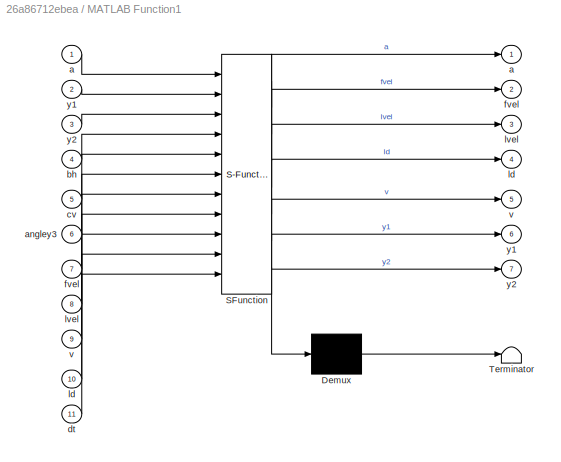
BLOCK [SubSystem] MATLAB Function1
  Commented = on
  ErrorFcn = Stateflow.Translate.translate
  PermitHierarchicalResolution = ExplicitOnly
  Ports = [11, 7]
  RequestExecContextInheritance = off
  SFBlockType = MATLAB Function
  TreatAsAtomicUnit = on
BLOCK [Demux] MATLAB Function1/ Demux 
  Outputs = 1
  Ports = [1, 1]
BLOCK [S-Function] MATLAB Function1/ SFunction 
  EnableBusSupport = on
  FunctionName = sf_sfun
  PortCounts = [11 8]
  Ports = [11, 8]
  SFcnIsStateOwnerBlock = off
  SFunctionDeploymentMode = off
  Tag = Stateflow S-Function 1
BLOCK [Terminator] MATLAB Function1/ Terminator 
BLOCK [Outport] MATLAB Function1/a
BLOCK [Inport] MATLAB Function1/a 
BLOCK [Inport] MATLAB Function1/angley3
  Port = 6
BLOCK [Inport] MATLAB Function1/bh
  Port = 4
BLOCK [Inport] MATLAB Function1/cv
  Port = 5
BLOCK [Inport] MATLAB Function1/dt
  Port = 11
BLOCK [Outport] MATLAB Function1/fvel
  Port = 2
BLOCK [Inport] MATLAB Function1/fvel 
  Port = 7
BLOCK [Outport] MATLAB Function1/ld
  Port = 4
BLOCK [Inport] MATLAB Function1/ld 
  Port = 10
BLOCK [Outport] MATLAB Function1/lvel
  Port = 3
BLOCK [Inport] MATLAB Function1/lvel 
  Port = 8
BLOCK [Outport] MATLAB Function1/v
  Port = 5
BLOCK [Inport] MATLAB Function1/v 
  Port = 9
BLOCK [Outport] MATLAB Function1/y1
  Port = 6
BLOCK [Inport] MATLAB Function1/y1 
  Port = 2
BLOCK [Outport] MATLAB Function1/y2
  Port = 7
BLOCK [Inport] MATLAB Function1/y2 
  Port = 3
BLOCK [SubSystem] MATLAB Function2
  Commented = on
  ErrorFcn = Stateflow.Translate.translate
  PermitHierarchicalResolution = ExplicitOnly
  Ports = [6, 1]
  RequestExecContextInheritance = off
  SFBlockType = MATLAB Function
  TreatAsAtomicUnit = on
BLOCK [Demux] MATLAB Function2/ Demux 
  Outputs = 1
  Ports = [1, 1]
BLOCK [S-Function] MATLAB Function2/ SFunction 
  EnableBusSupport = on
  FunctionName = sf_sfun
  PortCounts = [6 2]
  Ports = [6, 2]
  SFcnIsStateOwnerBlock = off
  SFunctionDeploymentMode = off
  Tag = Stateflow S-Function 3
BLOCK [Terminator] MATLAB Function2/ Terminator 
BLOCK [Inport] MATLAB Function2/angley1
  Port = 4
BLOCK [Outport] MATLAB Function2/cv
BLOCK [Inport] MATLAB Function2/cv 
BLOCK [Inport] MATLAB Function2/dt
  Port = 2
BLOCK [Inport] MATLAB Function2/g
  Port = 3
BLOCK [Inport] MATLAB Function2/y1
  Port = 5
BLOCK [Inport] MATLAB Function2/y2
  Port = 6
BLOCK [SubSystem] MATLAB Function3
  Commented = on
  ErrorFcn = Stateflow.Translate.translate
  PermitHierarchicalResolution = ExplicitOnly
  Ports = [4, 3]
  RequestExecContextInheritance = off
  SFBlockType = MATLAB Function
  TreatAsAtomicUnit = on
BLOCK [Demux] MATLAB Function3/ Demux 
  Outputs = 1
  Ports = [1, 1]
BLOCK [S-Function] MATLAB Function3/ SFunction 
  EnableBusSupport = on
  FunctionName = sf_sfun
  PortCounts = [4 4]
  Ports = [4, 4]
  SFcnIsStateOwnerBlock = off
  SFunctionDeploymentMode = off
  Tag = Stateflow S-Function 4
BLOCK [Terminator] MATLAB Function3/ Terminator 
BLOCK [Outport] MATLAB Function3/angley1
BLOCK [Outport] MATLAB Function3/angley2
  Port = 2
BLOCK [Outport] MATLAB Function3/angley3
  Port = 3
BLOCK [Inport] MATLAB Function3/x1
  Port = 3
BLOCK [Inport] MATLAB Function3/x2
  Port = 4
BLOCK [Inport] MATLAB Function3/y1
BLOCK [Inport] MATLAB Function3/y2
  Port = 2
BLOCK [SubSystem] MATLAB Function4
  ErrorFcn = Stateflow.Translate.translate
  PermitHierarchicalResolution = ExplicitOnly
  Ports = [7, 4]
  RequestExecContextInheritance = off
  SFBlockType = MATLAB Function
  TreatAsAtomicUnit = on
BLOCK [Demux] MATLAB Function4/ Demux 
  Outputs = 1
  Ports = [1, 1]
BLOCK [S-Function] MATLAB Function4/ SFunction 
  EnableBusSupport = on
  FunctionName = sf_sfun
  PortCounts = [7 5]
  Ports = [7, 5]
  SFcnIsStateOwnerBlock = off
  SFunctionDeploymentMode = off
  Tag = Stateflow S-Function 5
BLOCK [Terminator] MATLAB Function4/ Terminator 
BLOCK [Outport] MATLAB Function4/a
BLOCK [Inport] MATLAB Function4/a 
BLOCK [Inport] MATLAB Function4/angley3
  Port = 4
BLOCK [Inport] MATLAB Function4/dt
  Port = 7
BLOCK [Outport] MATLAB Function4/fvel
  Port = 2
BLOCK [Inport] MATLAB Function4/fvel 
  Port = 5
BLOCK [Outport] MATLAB Function4/ld
  Port = 3
BLOCK [Inport] MATLAB Function4/ld 
  Port = 6
BLOCK [Outport] MATLAB Function4/y1
  Port = 4
BLOCK [Inport] MATLAB Function4/y1 
  Port = 2
BLOCK [Inport] MATLAB Function4/y2
  Port = 3
BLOCK [SubSystem] MATLAB Function5
  ErrorFcn = Stateflow.Translate.translate
  PermitHierarchicalResolution = ExplicitOnly
  Ports = [6, 1]
  RequestExecContextInheritance = off
  SFBlockType = MATLAB Function
  TreatAsAtomicUnit = on
BLOCK [Demux] MATLAB Function5/ Demux 
  Outputs = 1
  Ports = [1, 1]
BLOCK [S-Function] MATLAB Function5/ SFunction 
  EnableBusSupport = on
  FunctionName = sf_sfun
  PortCounts = [6 2]
  Ports = [6, 2]
  SFcnIsStateOwnerBlock = off
  SFunctionDeploymentMode = off
  Tag = Stateflow S-Function 6
BLOCK [Terminator] MATLAB Function5/ Terminator 
BLOCK [Inport] MATLAB Function5/angley1
  Port = 4
BLOCK [Outport] MATLAB Function5/cv
BLOCK [Inport] MATLAB Function5/cv 
BLOCK [Inport] MATLAB Function5/dt
  Port = 2
BLOCK [Inport] MATLAB Function5/g
  Port = 3
BLOCK [Inport] MATLAB Function5/y1
  Port = 5
BLOCK [Inport] MATLAB Function5/y2
  Port = 6
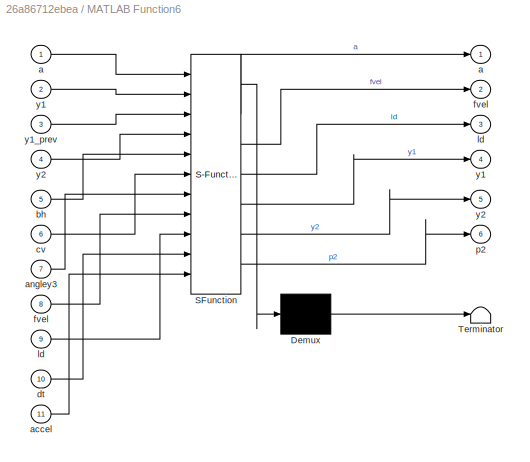
BLOCK [SubSystem] MATLAB Function6
  Commented = on
  ErrorFcn = Stateflow.Translate.translate
  PermitHierarchicalResolution = ExplicitOnly
  Ports = [11, 6]
  RequestExecContextInheritance = off
  SFBlockType = MATLAB Function
  TreatAsAtomicUnit = on
BLOCK [Demux] MATLAB Function6/ Demux 
  Outputs = 1
  Ports = [1, 1]
BLOCK [S-Function] MATLAB Function6/ SFunction 
  EnableBusSupport = on
  FunctionName = sf_sfun
  PortCounts = [11 7]
  Ports = [11, 7]
  SFcnIsStateOwnerBlock = off
  SFunctionDeploymentMode = off
  Tag = Stateflow S-Function 7
BLOCK [Terminator] MATLAB Function6/ Terminator 
BLOCK [Outport] MATLAB Function6/a
BLOCK [Inport] MATLAB Function6/a 
BLOCK [Inport] MATLAB Function6/accel
  Port = 11
BLOCK [Inport] MATLAB Function6/angley3
  Port = 7
BLOCK [Inport] MATLAB Function6/bh
  Port = 5
BLOCK [Inport] MATLAB Function6/cv
  Port = 6
BLOCK [Inport] MATLAB Function6/dt
  Port = 10
BLOCK [Outport] MATLAB Function6/fvel
  Port = 2
BLOCK [Inport] MATLAB Function6/fvel 
  Port = 8
BLOCK [Outport] MATLAB Function6/ld
  Port = 3
BLOCK [Inport] MATLAB Function6/ld 
  Port = 9
BLOCK [Outport] MATLAB Function6/p2
  Port = 6
BLOCK [Outport] MATLAB Function6/y1
  Port = 4
BLOCK [Inport] MATLAB Function6/y1 
  Port = 2
BLOCK [Inport] MATLAB Function6/y1_prev
  Port = 3
BLOCK [Outport] MATLAB Function6/y2
  Port = 5
BLOCK [Inport] MATLAB Function6/y2 
  Port = 4
BLOCK [SubSystem] MATLAB Function7
  Commented = on
  ErrorFcn = Stateflow.Translate.translate
  PermitHierarchicalResolution = ExplicitOnly
  Ports = [6, 2]
  RequestExecContextInheritance = off
  SFBlockType = MATLAB Function
  TreatAsAtomicUnit = on
BLOCK [Demux] MATLAB Function7/ Demux 
  Outputs = 1
  Ports = [1, 1]
BLOCK [S-Function] MATLAB Function7/ SFunction 
  EnableBusSupport = on
  FunctionName = sf_sfun
  PortCounts = [6 3]
  Ports = [6, 3]
  SFcnIsStateOwnerBlock = off
  SFunctionDeploymentMode = off
  Tag = Stateflow S-Function 8
BLOCK [Terminator] MATLAB Function7/ Terminator 
BLOCK [Outport] MATLAB Function7/accel
BLOCK [Inport] MATLAB Function7/angley1
  Port = 4
BLOCK [Outport] MATLAB Function7/cv
  Port = 2
BLOCK [Inport] MATLAB Function7/cv 
BLOCK [Inport] MATLAB Function7/dt
  Port = 2
BLOCK [Inport] MATLAB Function7/g
  Port = 3
BLOCK [Inport] MATLAB Function7/y1
  Port = 5
BLOCK [Inport] MATLAB Function7/y2
  Port = 6
BLOCK [Reference] Mechanism Configuration1  REF=sm_lib/Utilities/Mechanism
Configuration
  Ports = [0, 0, 0, 0, 0, 0, 1]
  SourceBlock = sm_lib/Utilities/Mechanism\nConfiguration
  SourceProductBaseCode = MS
  SourceType = Mechanism\nConfiguration
BLOCK [Reference] Mechanism Configuration2  REF=sm_lib/Utilities/Mechanism
Configuration
  Commented = on
  Ports = [0, 0, 0, 0, 0, 0, 1]
  SourceBlock = sm_lib/Utilities/Mechanism\nConfiguration
  SourceProductBaseCode = MS
  SourceType = Mechanism\nConfiguration
BLOCK [Reference] Mechanism Configuration3  REF=sm_lib/Utilities/Mechanism
Configuration
  Commented = on
  Ports = [0, 0, 0, 0, 0, 0, 1]
  SourceBlock = sm_lib/Utilities/Mechanism\nConfiguration
  SourceProductBaseCode = MS
  SourceType = Mechanism\nConfiguration
BLOCK [Mux] Mux1
  Commented = on
  DisplayOption = bar
  Inputs = 2
  Ports = [2, 1]
BLOCK [Reference] PID Controller  REF=pid_lib/PID Controller
  Commented = on
  Ports = [1, 1]
  SourceBlock = pid_lib/PID Controller
  SourceProductBaseCode = SL
  SourceType = PID 1dof
BLOCK [Reference] PID Controller1  REF=pid_lib/PID Controller
  Commented = on
  Ports = [1, 1]
  SourceBlock = pid_lib/PID Controller
  SourceProductBaseCode = SL
  SourceType = PID 1dof
BLOCK [Reference] PS-Simulink Converter1  REF=nesl_utility/PS-Simulink
Converter
  Commented = on
  Ports = [0, 1, 0, 0, 0, 1]
  SourceBlock = nesl_utility/PS-Simulink\nConverter
  SourceProductBaseCode = SS
  SourceType = PS-Simulink\nConverter
BLOCK [Reference] PS-Simulink Converter2  REF=nesl_utility/PS-Simulink
Converter
  Commented = on
  Ports = [0, 1, 0, 0, 0, 1]
  SourceBlock = nesl_utility/PS-Simulink\nConverter
  SourceProductBaseCode = SS
  SourceType = PS-Simulink\nConverter
BLOCK [Reference] PS-Simulink Converter3  REF=nesl_utility/PS-Simulink
Converter
  Commented = on
  Ports = [0, 1, 0, 0, 0, 1]
  SourceBlock = nesl_utility/PS-Simulink\nConverter
  SourceProductBaseCode = SS
  SourceType = PS-Simulink\nConverter
BLOCK [Reference] PS-Simulink Converter4  REF=nesl_utility/PS-Simulink
Converter
  Ports = [0, 1, 0, 0, 0, 1]
  SourceBlock = nesl_utility/PS-Simulink\nConverter
  SourceProductBaseCode = SS
  SourceType = PS-Simulink\nConverter
BLOCK [Reference] PS-Simulink Converter5  REF=nesl_utility/PS-Simulink
Converter
  Ports = [0, 1, 0, 0, 0, 1]
  SourceBlock = nesl_utility/PS-Simulink\nConverter
  SourceProductBaseCode = SS
  SourceType = PS-Simulink\nConverter
BLOCK [Reference] PS-Simulink Converter6  REF=nesl_utility/PS-Simulink
Converter
  Ports = [0, 1, 0, 0, 0, 1]
  SourceBlock = nesl_utility/PS-Simulink\nConverter
  SourceProductBaseCode = SS
  SourceType = PS-Simulink\nConverter
BLOCK [Reference] PS-Simulink Converter7  REF=nesl_utility/PS-Simulink
Converter
  Commented = on
  Ports = [0, 1, 0, 0, 0, 1]
  SourceBlock = nesl_utility/PS-Simulink\nConverter
  SourceProductBaseCode = SS
  SourceType = PS-Simulink\nConverter
BLOCK [Reference] PS-Simulink Converter8  REF=nesl_utility/PS-Simulink
Converter
  Commented = on
  Ports = [0, 1, 0, 0, 0, 1]
  SourceBlock = nesl_utility/PS-Simulink\nConverter
  SourceProductBaseCode = SS
  SourceType = PS-Simulink\nConverter
BLOCK [Reference] PS-Simulink Converter9  REF=nesl_utility/PS-Simulink
Converter
  Commented = on
  Ports = [0, 1, 0, 0, 0, 1]
  SourceBlock = nesl_utility/PS-Simulink\nConverter
  SourceProductBaseCode = SS
  SourceType = PS-Simulink\nConverter
BLOCK [Reference] Planar Joint1  REF=sm_lib/Joints/Planar Joint
  Commented = on
  NameLocation = right
  Ports = [0, 0, 0, 0, 0, 1, 1]
  SourceBlock = sm_lib/Joints/Planar Joint
  SourceProductBaseCode = MS
  SourceType = Planar Joint
BLOCK [Reference] Planar Joint2  REF=sm_lib/Joints/Planar Joint
  NameLocation = right
  Ports = [0, 0, 0, 0, 0, 1, 1]
  SourceBlock = sm_lib/Joints/Planar Joint
  SourceProductBaseCode = MS
  SourceType = Planar Joint
BLOCK [Reference] Planar Joint3  REF=sm_lib/Joints/Planar Joint
  Commented = on
  NameLocation = right
  Ports = [0, 0, 0, 0, 0, 1, 1]
  SourceBlock = sm_lib/Joints/Planar Joint
  SourceProductBaseCode = MS
  SourceType = Planar Joint
BLOCK [Reference] Planar Joint4  REF=sm_lib/Joints/Planar Joint
  NameLocation = right
  Ports = [0, 0, 0, 0, 0, 1, 1]
  SourceBlock = sm_lib/Joints/Planar Joint
  SourceProductBaseCode = MS
  SourceType = Planar Joint
BLOCK [Reference] Planar Joint5  REF=sm_lib/Joints/Planar Joint
  Commented = on
  NameLocation = right
  Ports = [0, 0, 0, 0, 0, 1, 1]
  SourceBlock = sm_lib/Joints/Planar Joint
  SourceProductBaseCode = MS
  SourceType = Planar Joint
BLOCK [Reference] Planar Joint6  REF=sm_lib/Joints/Planar Joint
  Commented = on
  NameLocation = right
  Ports = [0, 0, 0, 0, 0, 1, 1]
  SourceBlock = sm_lib/Joints/Planar Joint
  SourceProductBaseCode = MS
  SourceType = Planar Joint
BLOCK [DiscretePulseGenerator] Pulse Generator
  Amplitude = 3
  Commented = on
  Period = 10
  Ports = [0, 1]
  PulseType = Time based
  PulseWidth = 5
BLOCK [DiscretePulseGenerator] Pulse Generator1
  Amplitude = -1
  Commented = on
  Period = 10
  Ports = [0, 1]
  PulseType = Time based
  PulseWidth = 5
BLOCK [DiscretePulseGenerator] Pulse Generator2
  Amplitude = 3
  Period = 10
  Ports = [0, 1]
  PulseType = Time based
  PulseWidth = 5
BLOCK [DiscretePulseGenerator] Pulse Generator3
  Amplitude = -1
  Period = 10
  Ports = [0, 1]
  PulseType = Time based
  PulseWidth = 5
BLOCK [DiscretePulseGenerator] Pulse Generator6
  Amplitude = 3
  Commented = on
  Period = 10
  Ports = [0, 1]
  PulseType = Time based
  PulseWidth = 5
BLOCK [DiscretePulseGenerator] Pulse Generator7
  Amplitude = -1
  Commented = on
  Period = 10
  Ports = [0, 1]
  PulseType = Time based
  PulseWidth = 5
BLOCK [DiscretePulseGenerator] Pulse Generator8
  Amplitude = 0.3
  Commented = on
  Period = 5
  Ports = [0, 1]
  PulseType = Time based
  PulseWidth = 5
BLOCK [DiscretePulseGenerator] Pulse Generator9
  Amplitude = 0.3
  Commented = on
  Period = 10
  Ports = [0, 1]
  PulseType = Time based
  PulseWidth = 5
BLOCK [Relay] Relay
  Commented = on
BLOCK [Relay] Relay1
BLOCK [Relay] Relay2
  Commented = on
BLOCK [Reference] Revolute Joint1  REF=sm_lib/Joints/Revolute Joint
  Ports = [0, 0, 0, 0, 0, 1, 1]
  SourceBlock = sm_lib/Joints/Revolute Joint
  SourceProductBaseCode = MS
  SourceType = Revolute Joint
BLOCK [Reference] Revolute Joint2  REF=sm_lib/Joints/Revolute Joint
  Commented = on
  Ports = [0, 0, 0, 0, 0, 1, 1]
  SourceBlock = sm_lib/Joints/Revolute Joint
  SourceProductBaseCode = MS
  SourceType = Revolute Joint
BLOCK [Reference] Revolute Joint3  REF=sm_lib/Joints/Revolute Joint
  Commented = on
  Ports = [0, 0, 0, 0, 0, 1, 1]
  SourceBlock = sm_lib/Joints/Revolute Joint
  SourceProductBaseCode = MS
  SourceType = Revolute Joint
BLOCK [Scope] Scope
  Commented = on
  Floating = off
  NumInputPorts = 2
  Ports = [2]
  ScopeSpecificationString = Simulink.scopes.TimeScopeBlockCfg('CurrentConfiguration', extmgr.ConfigurationSet(extmgr.Configuration('Core','General UI',true),extmgr.Configuration('Core','Source UI',true),extmgr.Configuration('Sources','WiredSimulink',true,'DataLoggingVariableName','ScopeData1'),extmgr.Configuration('Visuals','Time Domain',true,'SerializedDisplays',{struct('MinYLimReal','-0.0034','MaxYLimReal','0.00273','YLabe...<+1432ch>
BLOCK [Scope] Scope1
  Commented = on
  Floating = off
  NumInputPorts = 3
  Ports = [3]
  ScopeSpecificationString = Simulink.scopes.TimeScopeBlockCfg('CurrentConfiguration', extmgr.ConfigurationSet(extmgr.Configuration('Core','General UI',true),extmgr.Configuration('Core','Source UI',true),extmgr.Configuration('Sources','WiredSimulink',true,'DataLoggingVariableName','ScopeData2'),extmgr.Configuration('Visuals','Time Domain',true,'SerializedDisplays',{struct('MinYLimReal','-9.21415','MaxYLimReal','4.51293','YLab...<+1432ch>
BLOCK [Scope] Scope10
  Floating = off
  NumInputPorts = 2
  Ports = [2]
  ScopeSpecificationString = Simulink.scopes.TimeScopeBlockCfg('CurrentConfiguration', extmgr.ConfigurationSet(extmgr.Configuration('Core','General UI',true),extmgr.Configuration('Core','Source UI',true),extmgr.Configuration('Sources','WiredSimulink',true,'DataLoggingVariableName','ScopeData3'),extmgr.Configuration('Visuals','Time Domain',true,'SerializedDisplays',{struct('MinYLimReal','-0.00289','MaxYLimReal','0.00966','YLab...<+1490ch>
BLOCK [Scope] Scope11
  Floating = off
  NumInputPorts = 3
  Ports = [3]
  ScopeSpecificationString = Simulink.scopes.TimeScopeBlockCfg('CurrentConfiguration', extmgr.ConfigurationSet(extmgr.Configuration('Core','General UI',true),extmgr.Configuration('Core','Source UI',true),extmgr.Configuration('Sources','WiredSimulink',true,'DataLoggingVariableName','ScopeData4'),extmgr.Configuration('Visuals','Time Domain',true,'SerializedDisplays',{struct('MinYLimReal','1.57078','MaxYLimReal','1.57095','YLabe...<+1459ch>
BLOCK [Scope] Scope12
  Commented = on
  Floating = off
  NumInputPorts = 2
  Ports = [2]
  ScopeSpecificationString = Simulink.scopes.TimeScopeBlockCfg('CurrentConfiguration', extmgr.ConfigurationSet(extmgr.Configuration('Core','General UI',true),extmgr.Configuration('Core','Source UI',true),extmgr.Configuration('Sources','WiredSimulink',true,'DataLoggingVariableName','ScopeData3'),extmgr.Configuration('Visuals','Time Domain',true,'SerializedDisplays',{struct('MinYLimReal','-1.00000','MaxYLimReal','1.00000','YLab...<+2103ch>
BLOCK [Scope] Scope13
  Commented = on
  Floating = off
  NumInputPorts = 3
  Ports = [3]
  ScopeSpecificationString = Simulink.scopes.TimeScopeBlockCfg('CurrentConfiguration', extmgr.ConfigurationSet(extmgr.Configuration('Core','General UI',true),extmgr.Configuration('Core','Source UI',true),extmgr.Configuration('Sources','WiredSimulink',true,'DataLoggingVariableName','ScopeData4'),extmgr.Configuration('Visuals','Time Domain',true,'SerializedDisplays',{struct('MinYLimReal','1.50535','MaxYLimReal','2.15985','YLabe...<+1459ch>
BLOCK [Scope] Scope14
  Commented = on
  Floating = off
  NumInputPorts = 2
  Ports = [2]
  ScopeSpecificationString = Simulink.scopes.TimeScopeBlockCfg('CurrentConfiguration', extmgr.ConfigurationSet(extmgr.Configuration('Core','General UI',true),extmgr.Configuration('Core','Source UI',true),extmgr.Configuration('Sources','WiredSimulink',true,'DataLoggingVariableName','ScopeData5'),extmgr.Configuration('Visuals','Time Domain',true,'SerializedDisplays',{struct('MinYLimReal','-0.09646','MaxYLimReal','0.69726','YLab...<+1454ch>
BLOCK [Scope] Scope15
  Commented = on
  Floating = off
  NumInputPorts = 3
  Ports = [3]
  ScopeSpecificationString = Simulink.scopes.TimeScopeBlockCfg('CurrentConfiguration', extmgr.ConfigurationSet(extmgr.Configuration('Core','General UI',true),extmgr.Configuration('Core','Source UI',true),extmgr.Configuration('Sources','WiredSimulink',true,'DataLoggingVariableName','ScopeData6'),extmgr.Configuration('Visuals','Time Domain',true,'SerializedDisplays',{struct('MinYLimReal','-0.86739','MaxYLimReal','1.6304','YLabe...<+1449ch>
BLOCK [Scope] Scope16
  Commented = on
  Floating = off
  NumInputPorts = 2
  Ports = [2]
  ScopeSpecificationString = Simulink.scopes.TimeScopeBlockCfg('CurrentConfiguration', extmgr.ConfigurationSet(extmgr.Configuration('Core','General UI',true),extmgr.Configuration('Core','Source UI',true),extmgr.Configuration('Sources','WiredSimulink',true,'DataLoggingVariableName','ScopeData7'),extmgr.Configuration('Visuals','Time Domain',true,'SerializedDisplays',{struct('MinYLimReal','-1.00748','MaxYLimReal','1.39019','YLab...<+1476ch>
BLOCK [Scope] Scope2
  Commented = on
  Floating = off
  NumInputPorts = 2
  Ports = [2]
  ScopeSpecificationString = Simulink.scopes.TimeScopeBlockCfg('CurrentConfiguration', extmgr.ConfigurationSet(extmgr.Configuration('Core','General UI',true),extmgr.Configuration('Core','Source UI',true),extmgr.Configuration('Sources','WiredSimulink',true,'DataLoggingVariableName','ScopeData3'),extmgr.Configuration('Visuals','Time Domain',true,'SerializedDisplays',{struct('MinYLimReal','-0.01667','MaxYLimReal','0.14646','YLab...<+1405ch>
BLOCK [Scope] Scope3
  Commented = on
  Floating = off
  NumInputPorts = 2
  Ports = [2]
  ScopeSpecificationString = Simulink.scopes.TimeScopeBlockCfg('CurrentConfiguration', extmgr.ConfigurationSet(extmgr.Configuration('Core','General UI',true),extmgr.Configuration('Core','Source UI',true),extmgr.Configuration('Sources','WiredSimulink',true,'DataLoggingVariableName','ScopeData4'),extmgr.Configuration('Visuals','Time Domain',true,'SerializedDisplays',{struct('MinYLimReal','-1.68051','MaxYLimReal','0.23585','YLab...<+1437ch>
BLOCK [Scope] Scope4
  Commented = on
  Floating = off
  NumInputPorts = 2
  Ports = [2]
  ScopeSpecificationString = Simulink.scopes.TimeScopeBlockCfg('CurrentConfiguration', extmgr.ConfigurationSet(extmgr.Configuration('Core','General UI',true),extmgr.Configuration('Core','Source UI',true),extmgr.Configuration('Sources','WiredSimulink',true,'DataLoggingVariableName','ScopeData5'),extmgr.Configuration('Visuals','Time Domain',true,'SerializedDisplays',{struct('MinYLimReal','-0.31251','MaxYLimReal','2.8125','YLabe...<+1455ch>
BLOCK [Scope] Scope5
  Commented = on
  Floating = off
  NumInputPorts = 3
  Ports = [3]
  ScopeSpecificationString = Simulink.scopes.TimeScopeBlockCfg('CurrentConfiguration', extmgr.ConfigurationSet(extmgr.Configuration('Core','General UI',true),extmgr.Configuration('Core','Source UI',true),extmgr.Configuration('Sources','WiredSimulink',true,'DataLoggingVariableName','ScopeData6'),extmgr.Configuration('Visuals','Time Domain',true,'SerializedDisplays',{struct('MinYLimReal','1.5707963267948959','MaxYLimReal','1.57...<+1547ch>
BLOCK [Scope] Scope6
  Commented = on
  Floating = off
  NumInputPorts = 2
  Ports = [2]
  ScopeSpecificationString = Simulink.scopes.TimeScopeBlockCfg('CurrentConfiguration', extmgr.ConfigurationSet(extmgr.Configuration('Core','General UI',true),extmgr.Configuration('Core','Source UI',true),extmgr.Configuration('Sources','WiredSimulink',true,'DataLoggingVariableName','ScopeData7'),extmgr.Configuration('Visuals','Time Domain',true,'SerializedDisplays',{struct('MinYLimReal','-0.000068','MaxYLimReal','0.000016','YL...<+1396ch>
BLOCK [Scope] Scope7
  Floating = off
  NumInputPorts = 2
  Ports = [2]
  ScopeSpecificationString = Simulink.scopes.TimeScopeBlockCfg('CurrentConfiguration', extmgr.ConfigurationSet(extmgr.Configuration('Core','General UI',true),extmgr.Configuration('Core','Source UI',true),extmgr.Configuration('Sources','WiredSimulink',true,'DataLoggingVariableName','ScopeData6'),extmgr.Configuration('Visuals','Time Domain',true,'SerializedDisplays',{struct('MinYLimReal','-0.01308','MaxYLimReal','0.00235','YLab...<+1452ch>
BLOCK [Scope] Scope8
  Floating = off
  NumInputPorts = 2
  Ports = [2]
  ScopeSpecificationString = Simulink.scopes.TimeScopeBlockCfg('CurrentConfiguration', extmgr.ConfigurationSet(extmgr.Configuration('Core','General UI',true),extmgr.Configuration('Core','Source UI',true),extmgr.Configuration('Sources','WiredSimulink',true,'DataLoggingVariableName','ScopeData7'),extmgr.Configuration('Visuals','Time Domain',true,'SerializedDisplays',{struct('MinYLimReal','-5.33798','MaxYLimReal','0.92862','YLab...<+1430ch>
BLOCK [Scope] Scope9
  Floating = off
  NumInputPorts = 2
  Ports = [2]
  ScopeSpecificationString = Simulink.scopes.TimeScopeBlockCfg('CurrentConfiguration', extmgr.ConfigurationSet(extmgr.Configuration('Core','General UI',true),extmgr.Configuration('Core','Source UI',true),extmgr.Configuration('Sources','WiredSimulink',true,'DataLoggingVariableName','ScopeData8'),extmgr.Configuration('Visuals','Time Domain',true,'SerializedDisplays',{struct('MinYLimReal','-0.0014','MaxYLimReal','0.01263','YLabe...<+1453ch>
BLOCK [SubSystem] Sensing
  Commented = on
  PortSchema = {"entries":[{"content":{"sides":[{"content":{"connectorIds":["LConn1"]},"type":"ConnectorPlacement.EquallySpacedRectSide","uuid":"93b13ba7-23a9-4c5a-9fec-0feef4182ac7"},{"content":{"connectorIds":["Out1","Out2"],"side":"RIGHT"},"type":"ConnectorPlacement.EquallySpacedRectSide","uuid":"b1b2a2c0-26e3-4622-ac18-4e8f5a1759f9"},{"content":{"connectorIds":[],"side":"TOP"},"type":"ConnectorPlacement.Equa...<+400ch>  <repeated x3 — deduplicated; at blocks: Sensing, Sensing1, Sensing2>
  Ports = [0, 3, 0, 0, 0, 1]
  RequestExecContextInheritance = off
BLOCK [PMIOPort] Sensing/F
  NameLocation = top
  Side = Left
BLOCK [Mux] Sensing/Mux
  DisplayOption = bar
  Inputs = 3
  Ports = [3, 1]
BLOCK [Reference] Sensing/PS-Simulink Converter  REF=nesl_utility/PS-Simulink
Converter
  NameLocation = top
  Ports = [0, 1, 0, 0, 0, 1]
  SourceBlock = nesl_utility/PS-Simulink\nConverter
  SourceProductBaseCode = PW,SS
  SourceType = PS-Simulink\nConverter
BLOCK [Reference] Sensing/PS-Simulink Converter1  REF=nesl_utility/PS-Simulink
Converter
  NameLocation = top
  Ports = [0, 1, 0, 0, 0, 1]
  SourceBlock = nesl_utility/PS-Simulink\nConverter
  SourceProductBaseCode = PW,SS
  SourceType = PS-Simulink\nConverter
BLOCK [Reference] Sensing/PS-Simulink Converter2  REF=nesl_utility/PS-Simulink
Converter
  NameLocation = top
  Ports = [0, 1, 0, 0, 0, 1]
  SourceBlock = nesl_utility/PS-Simulink\nConverter
  SourceProductBaseCode = PW,SS
  SourceType = PS-Simulink\nConverter
BLOCK [Reference] Sensing/PS-Simulink Converter3  REF=nesl_utility/PS-Simulink
Converter
  NameLocation = top
  Ports = [0, 1, 0, 0, 0, 1]
  SourceBlock = nesl_utility/PS-Simulink\nConverter
  SourceProductBaseCode = PW,SS
  SourceType = PS-Simulink\nConverter
BLOCK [Terminator] Sensing/Terminator
BLOCK [Reference] Sensing/Transform Sensor  REF=sm_lib/Frames and
Transforms/Transform
Sensor
  Ports = [0, 0, 0, 0, 0, 1, 5]
  SourceBlock = sm_lib/Frames and\nTransforms/Transform\nSensor
  SourceProductBaseCode = MS
  SourceType = Transform\nSensor
BLOCK [Reference] Sensing/World Frame  REF=sm_lib/Frames and
Transforms/World Frame
  NameLocation = right
  Ports = [0, 0, 0, 0, 0, 0, 1]
  SourceBlock = sm_lib/Frames and\nTransforms/World Frame
  SourceProductBaseCode = MS
  SourceType = World Frame
BLOCK [Outport] Sensing/vx
  Port = 3
  VectorParamsAs1DForOutWhenUnconnected = off
BLOCK [Outport] Sensing/x
  Port = 2
  VectorParamsAs1DForOutWhenUnconnected = off
BLOCK [Outport] Sensing/z
  VectorParamsAs1DForOutWhenUnconnected = off
BLOCK [SubSystem] Sensing1
  Ports = [0, 3, 0, 0, 0, 1]
  RequestExecContextInheritance = off
BLOCK [PMIOPort] Sensing1/F
  NameLocation = top
  Side = Left
BLOCK [Mux] Sensing1/Mux
  DisplayOption = bar
  Inputs = 3
  Ports = [3, 1]
BLOCK [Reference] Sensing1/PS-Simulink Converter  REF=nesl_utility/PS-Simulink
Converter
  NameLocation = top
  Ports = [0, 1, 0, 0, 0, 1]
  SourceBlock = nesl_utility/PS-Simulink\nConverter
  SourceProductBaseCode = PW,SS
  SourceType = PS-Simulink\nConverter
BLOCK [Reference] Sensing1/PS-Simulink Converter1  REF=nesl_utility/PS-Simulink
Converter
  NameLocation = top
  Ports = [0, 1, 0, 0, 0, 1]
  SourceBlock = nesl_utility/PS-Simulink\nConverter
  SourceProductBaseCode = PW,SS
  SourceType = PS-Simulink\nConverter
BLOCK [Reference] Sensing1/PS-Simulink Converter2  REF=nesl_utility/PS-Simulink
Converter
  NameLocation = top
  Ports = [0, 1, 0, 0, 0, 1]
  SourceBlock = nesl_utility/PS-Simulink\nConverter
  SourceProductBaseCode = PW,SS
  SourceType = PS-Simulink\nConverter
BLOCK [Reference] Sensing1/PS-Simulink Converter3  REF=nesl_utility/PS-Simulink
Converter
  NameLocation = top
  Ports = [0, 1, 0, 0, 0, 1]
  SourceBlock = nesl_utility/PS-Simulink\nConverter
  SourceProductBaseCode = PW,SS
  SourceType = PS-Simulink\nConverter
BLOCK [Terminator] Sensing1/Terminator
BLOCK [Reference] Sensing1/Transform Sensor  REF=sm_lib/Frames and
Transforms/Transform
Sensor
  Ports = [0, 0, 0, 0, 0, 1, 5]
  SourceBlock = sm_lib/Frames and\nTransforms/Transform\nSensor
  SourceProductBaseCode = MS
  SourceType = Transform\nSensor
BLOCK [Reference] Sensing1/World Frame  REF=sm_lib/Frames and
Transforms/World Frame
  NameLocation = right
  Ports = [0, 0, 0, 0, 0, 0, 1]
  SourceBlock = sm_lib/Frames and\nTransforms/World Frame
  SourceProductBaseCode = MS
  SourceType = World Frame
BLOCK [Outport] Sensing1/vx
  Port = 3
  VectorParamsAs1DForOutWhenUnconnected = off
BLOCK [Outport] Sensing1/x
  Port = 2
  VectorParamsAs1DForOutWhenUnconnected = off
BLOCK [Outport] Sensing1/z
  VectorParamsAs1DForOutWhenUnconnected = off
BLOCK [SubSystem] Sensing2
  Commented = on
  Ports = [0, 3, 0, 0, 0, 1]
  RequestExecContextInheritance = off
BLOCK [PMIOPort] Sensing2/F
  NameLocation = top
  Side = Left
BLOCK [Mux] Sensing2/Mux
  DisplayOption = bar
  Inputs = 3
  Ports = [3, 1]
BLOCK [Reference] Sensing2/PS-Simulink Converter  REF=nesl_utility/PS-Simulink
Converter
  NameLocation = top
  Ports = [0, 1, 0, 0, 0, 1]
  SourceBlock = nesl_utility/PS-Simulink\nConverter
  SourceProductBaseCode = PW,SS
  SourceType = PS-Simulink\nConverter
BLOCK [Reference] Sensing2/PS-Simulink Converter1  REF=nesl_utility/PS-Simulink
Converter
  NameLocation = top
  Ports = [0, 1, 0, 0, 0, 1]
  SourceBlock = nesl_utility/PS-Simulink\nConverter
  SourceProductBaseCode = PW,SS
  SourceType = PS-Simulink\nConverter
BLOCK [Reference] Sensing2/PS-Simulink Converter2  REF=nesl_utility/PS-Simulink
Converter
  NameLocation = top
  Ports = [0, 1, 0, 0, 0, 1]
  SourceBlock = nesl_utility/PS-Simulink\nConverter
  SourceProductBaseCode = PW,SS
  SourceType = PS-Simulink\nConverter
BLOCK [Reference] Sensing2/PS-Simulink Converter3  REF=nesl_utility/PS-Simulink
Converter
  NameLocation = top
  Ports = [0, 1, 0, 0, 0, 1]
  SourceBlock = nesl_utility/PS-Simulink\nConverter
  SourceProductBaseCode = PW,SS
  SourceType = PS-Simulink\nConverter
BLOCK [Terminator] Sensing2/Terminator
BLOCK [Reference] Sensing2/Transform Sensor  REF=sm_lib/Frames and
Transforms/Transform
Sensor
  Ports = [0, 0, 0, 0, 0, 1, 5]
  SourceBlock = sm_lib/Frames and\nTransforms/Transform\nSensor
  SourceProductBaseCode = MS
  SourceType = Transform\nSensor
BLOCK [Reference] Sensing2/World Frame  REF=sm_lib/Frames and
Transforms/World Frame
  NameLocation = right
  Ports = [0, 0, 0, 0, 0, 0, 1]
  SourceBlock = sm_lib/Frames and\nTransforms/World Frame
  SourceProductBaseCode = MS
  SourceType = World Frame
BLOCK [Outport] Sensing2/vx
  Port = 3
  VectorParamsAs1DForOutWhenUnconnected = off
BLOCK [Outport] Sensing2/x
  Port = 2
  VectorParamsAs1DForOutWhenUnconnected = off
BLOCK [Outport] Sensing2/z
  VectorParamsAs1DForOutWhenUnconnected = off
BLOCK [SignalGenerator] Signal Generator
  Commented = on
  Ports = [0, 1]
  Units = rad/sec
  WaveForm = square
BLOCK [SignalGenerator] Signal Generator1
  Ports = [0, 1]
  Units = rad/sec
  WaveForm = square
BLOCK [SignalGenerator] Signal Generator2
  Commented = on
  Ports = [0, 1]
  Units = rad/sec
  WaveForm = square
BLOCK [Reference] Simulink-PS Converter1  REF=nesl_utility/Simulink-PS
Converter
  Ports = [1, 0, 0, 0, 0, 0, 1]
  SourceBlock = nesl_utility/Simulink-PS\nConverter
  SourceProductBaseCode = PW,SS
  SourceType = Simulink-PS\nConverter
BLOCK [Reference] Simulink-PS Converter2  REF=nesl_utility/Simulink-PS
Converter
  Ports = [1, 0, 0, 0, 0, 0, 1]
  SourceBlock = nesl_utility/Simulink-PS\nConverter
  SourceProductBaseCode = PW,SS
  SourceType = Simulink-PS\nConverter
BLOCK [Reference] Simulink-PS Converter3  REF=nesl_utility/Simulink-PS
Converter
  Commented = on
  Ports = [1, 0, 0, 0, 0, 0, 1]
  SourceBlock = nesl_utility/Simulink-PS\nConverter
  SourceProductBaseCode = PW,SS
  SourceType = Simulink-PS\nConverter
BLOCK [Reference] Simulink-PS Converter4  REF=nesl_utility/Simulink-PS
Converter
  Commented = on
  Ports = [1, 0, 0, 0, 0, 0, 1]
  SourceBlock = nesl_utility/Simulink-PS\nConverter
  SourceProductBaseCode = PW,SS
  SourceType = Simulink-PS\nConverter
BLOCK [Reference] Simulink-PS Converter5  REF=nesl_utility/Simulink-PS
Converter
  Commented = on
  Ports = [1, 0, 0, 0, 0, 0, 1]
  SourceBlock = nesl_utility/Simulink-PS\nConverter
  SourceProductBaseCode = PW,SS
  SourceType = Simulink-PS\nConverter
BLOCK [Reference] Simulink-PS Converter6  REF=nesl_utility/Simulink-PS
Converter
  Commented = on
  Ports = [1, 0, 0, 0, 0, 0, 1]
  SourceBlock = nesl_utility/Simulink-PS\nConverter
  SourceProductBaseCode = PW,SS
  SourceType = Simulink-PS\nConverter
BLOCK [Reference] Simulink-PSConverter1  REF=nesl_utility/Simulink-PS
Converter
  Ports = [1, 0, 0, 0, 0, 0, 1]
  SourceBlock = nesl_utility/Simulink-PS\nConverter
  SourceProductBaseCode = PW,SS
  SourceType = Simulink-PS\nConverter
BLOCK [Reference] Simulink-PSConverter2  REF=nesl_utility/Simulink-PS
Converter
  Ports = [1, 0, 0, 0, 0, 0, 1]
  SourceBlock = nesl_utility/Simulink-PS\nConverter
  SourceProductBaseCode = PW,SS
  SourceType = Simulink-PS\nConverter
BLOCK [Reference] Simulink-PSConverter3  REF=nesl_utility/Simulink-PS
Converter
  Commented = on
  Ports = [1, 0, 0, 0, 0, 0, 1]
  SourceBlock = nesl_utility/Simulink-PS\nConverter
  SourceProductBaseCode = PW,SS
  SourceType = Simulink-PS\nConverter
BLOCK [Reference] Simulink-PSConverter4  REF=nesl_utility/Simulink-PS
Converter
  Commented = on
  Ports = [1, 0, 0, 0, 0, 0, 1]
  SourceBlock = nesl_utility/Simulink-PS\nConverter
  SourceProductBaseCode = PW,SS
  SourceType = Simulink-PS\nConverter
BLOCK [Reference] Simulink-PSConverter5  REF=nesl_utility/Simulink-PS
Converter
  Commented = on
  Ports = [1, 0, 0, 0, 0, 0, 1]
  SourceBlock = nesl_utility/Simulink-PS\nConverter
  SourceProductBaseCode = PW,SS
  SourceType = Simulink-PS\nConverter
BLOCK [Reference] Simulink-PSConverter6  REF=nesl_utility/Simulink-PS
Converter
  Commented = on
  Ports = [1, 0, 0, 0, 0, 0, 1]
  SourceBlock = nesl_utility/Simulink-PS\nConverter
  SourceProductBaseCode = PW,SS
  SourceType = Simulink-PS\nConverter
BLOCK [Sin] Sine Wave
  Amplitude = 0.3
  Commented = on
  Frequency = 5
  Phase = 3
  Ports = [0, 1]
  SampleTime = 0
BLOCK [Sin] Sine Wave1
  Amplitude = 0.3
  Commented = on
  Phase = 5
  Ports = [0, 1]
  SampleTime = 0
BLOCK [Sin] Sine Wave2
  Amplitude = 0.3
  Frequency = 5
  Phase = 3
  Ports = [0, 1]
  SampleTime = 0
BLOCK [Sin] Sine Wave3
  Amplitude = 0.3
  Phase = 5
  Ports = [0, 1]
  SampleTime = 0
BLOCK [Sin] Sine Wave4
  Amplitude = 0.3
  Commented = on
  Frequency = 5
  Phase = 3
  Ports = [0, 1]
  SampleTime = 0
BLOCK [Sin] Sine Wave5
  Amplitude = 0.3
  Commented = on
  Phase = 5
  Ports = [0, 1]
  SampleTime = 0
BLOCK [Reference] Solver Configuration1  REF=nesl_utility/Solver
Configuration
  Ports = [0, 0, 0, 0, 0, 0, 1]
  SourceBlock = nesl_utility/Solver\nConfiguration
  SourceProductBaseCode = PW,SS
  SourceType = Solver\nConfiguration
BLOCK [Reference] Solver Configuration2  REF=nesl_utility/Solver
Configuration
  Commented = on
  Ports = [0, 0, 0, 0, 0, 0, 1]
  SourceBlock = nesl_utility/Solver\nConfiguration
  SourceProductBaseCode = PW,SS
  SourceType = Solver\nConfiguration
BLOCK [Reference] Solver Configuration3  REF=nesl_utility/Solver
Configuration
  Commented = on
  Ports = [0, 0, 0, 0, 0, 0, 1]
  SourceBlock = nesl_utility/Solver\nConfiguration
  SourceProductBaseCode = PW,SS
  SourceType = Solver\nConfiguration
BLOCK [Sum] Sum1
  Inputs = |+--
  Ports = [3, 1]
BLOCK [Sum] Sum10
  Commented = on
  Inputs = |+--
  Ports = [3, 1]
BLOCK [Sum] Sum2
  Inputs = |++
  Ports = [2, 1]
BLOCK [Sum] Sum3
  Inputs = |++-
  Ports = [3, 1]
BLOCK [Sum] Sum4
  Commented = on
  Inputs = |++
  Ports = [2, 1]
BLOCK [Sum] Sum5
  Commented = on
  Inputs = |++-
  Ports = [3, 1]
BLOCK [Sum] Sum6
  Commented = on
  Inputs = |++
  Ports = [2, 1]
BLOCK [Sum] Sum7
  Commented = on
  Inputs = |++-
  Ports = [3, 1]
BLOCK [Sum] Sum9
  Commented = on
  Inputs = |+--
  Ports = [3, 1]
BLOCK [Switch] Switch
  Criteria = u2 > Threshold
  InputSameDT = off
  SaturateOnIntegerOverflow = off
BLOCK [Switch] Switch1
  Criteria = u2 > Threshold
  InputSameDT = off
  SaturateOnIntegerOverflow = off
BLOCK [Switch] Switch2
  Commented = on
  Criteria = u2 > Threshold
  InputSameDT = off
  SaturateOnIntegerOverflow = off
BLOCK [Switch] Switch3
  Commented = on
  Criteria = u2 > Threshold
  InputSameDT = off
  SaturateOnIntegerOverflow = off
BLOCK [Reference] To Arm Hinge  REF=sm_lib/Frames and
Transforms/Rigid
Transform
  Commented = on
  Ports = [0, 0, 0, 0, 0, 1, 1]
  SourceBlock = sm_lib/Frames and\nTransforms/Rigid\nTransform
  SourceProductBaseCode = MS
  SourceType = Rigid\nTransform
BLOCK [Reference] To Arm Hinge1  REF=sm_lib/Frames and
Transforms/Rigid
Transform
  Commented = on
  Ports = [0, 0, 0, 0, 0, 1, 1]
  SourceBlock = sm_lib/Frames and\nTransforms/Rigid\nTransform
  SourceProductBaseCode = MS
  SourceType = Rigid\nTransform
BLOCK [Reference] To Arm Hinge2  REF=sm_lib/Frames and
Transforms/Rigid
Transform
  Ports = [0, 0, 0, 0, 0, 1, 1]
  SourceBlock = sm_lib/Frames and\nTransforms/Rigid\nTransform
  SourceProductBaseCode = MS
  SourceType = Rigid\nTransform
BLOCK [Reference] To Arm Hinge3  REF=sm_lib/Frames and
Transforms/Rigid
Transform
  Ports = [0, 0, 0, 0, 0, 1, 1]
  SourceBlock = sm_lib/Frames and\nTransforms/Rigid\nTransform
  SourceProductBaseCode = MS
  SourceType = Rigid\nTransform
BLOCK [Reference] To Arm Hinge4  REF=sm_lib/Frames and
Transforms/Rigid
Transform
  Commented = on
  Ports = [0, 0, 0, 0, 0, 1, 1]
  SourceBlock = sm_lib/Frames and\nTransforms/Rigid\nTransform
  SourceProductBaseCode = MS
  SourceType = Rigid\nTransform
BLOCK [Reference] To Arm Hinge5  REF=sm_lib/Frames and
Transforms/Rigid
Transform
  Commented = on
  Ports = [0, 0, 0, 0, 0, 1, 1]
  SourceBlock = sm_lib/Frames and\nTransforms/Rigid\nTransform
  SourceProductBaseCode = MS
  SourceType = Rigid\nTransform
BLOCK [Reference] Transform Sensor  REF=sm_lib/Frames and
Transforms/Transform
Sensor
  Commented = on
  Ports = [0, 0, 0, 0, 0, 1, 2]
  SourceBlock = sm_lib/Frames and\nTransforms/Transform\nSensor
  SourceProductBaseCode = MS
  SourceType = Transform\nSensor
BLOCK [Reference] Transform Sensor1  REF=sm_lib/Frames and
Transforms/Transform
Sensor
  Commented = on
  Ports = [0, 0, 0, 0, 0, 1, 2]
  SourceBlock = sm_lib/Frames and\nTransforms/Transform\nSensor
  SourceProductBaseCode = MS
  SourceType = Transform\nSensor
BLOCK [Reference] Transform Sensor2  REF=sm_lib/Frames and
Transforms/Transform
Sensor
  Commented = on
  Ports = [0, 0, 0, 0, 0, 1, 2]
  SourceBlock = sm_lib/Frames and\nTransforms/Transform\nSensor
  SourceProductBaseCode = MS
  SourceType = Transform\nSensor
BLOCK [Reference] Transform Sensor3  REF=sm_lib/Frames and
Transforms/Transform
Sensor
  Ports = [0, 0, 0, 0, 0, 1, 2]
  SourceBlock = sm_lib/Frames and\nTransforms/Transform\nSensor
  SourceProductBaseCode = MS
  SourceType = Transform\nSensor
BLOCK [Reference] Transform Sensor4  REF=sm_lib/Frames and
Transforms/Transform
Sensor
  Ports = [0, 0, 0, 0, 0, 1, 2]
  SourceBlock = sm_lib/Frames and\nTransforms/Transform\nSensor
  SourceProductBaseCode = MS
  SourceType = Transform\nSensor
BLOCK [Reference] Transform Sensor5  REF=sm_lib/Frames and
Transforms/Transform
Sensor
  Ports = [0, 0, 0, 0, 0, 1, 2]
  SourceBlock = sm_lib/Frames and\nTransforms/Transform\nSensor
  SourceProductBaseCode = MS
  SourceType = Transform\nSensor
BLOCK [Reference] Transform Sensor6  REF=sm_lib/Frames and
Transforms/Transform
Sensor
  Commented = on
  Ports = [0, 0, 0, 0, 0, 1, 2]
  SourceBlock = sm_lib/Frames and\nTransforms/Transform\nSensor
  SourceProductBaseCode = MS
  SourceType = Transform\nSensor
BLOCK [Reference] Transform Sensor7  REF=sm_lib/Frames and
Transforms/Transform
Sensor
  Commented = on
  Ports = [0, 0, 0, 0, 0, 1, 2]
  SourceBlock = sm_lib/Frames and\nTransforms/Transform\nSensor
  SourceProductBaseCode = MS
  SourceType = Transform\nSensor
BLOCK [Reference] Transform Sensor8  REF=sm_lib/Frames and
Transforms/Transform
Sensor
  Commented = on
  Ports = [0, 0, 0, 0, 0, 1, 2]
  SourceBlock = sm_lib/Frames and\nTransforms/Transform\nSensor
  SourceProductBaseCode = MS
  SourceType = Transform\nSensor
BLOCK [Reference] Weld Joint1  REF=sm_lib/Joints/Weld Joint
  Ports = [0, 0, 0, 0, 0, 1, 1]
  SourceBlock = sm_lib/Joints/Weld Joint
  SourceProductBaseCode = MS
  SourceType = Weld Joint
BLOCK [Reference] Weld Joint11  REF=sm_lib/Joints/Weld Joint
  Commented = on
  Ports = [0, 0, 0, 0, 0, 1, 1]
  SourceBlock = sm_lib/Joints/Weld Joint
  SourceProductBaseCode = MS
  SourceType = Weld Joint
BLOCK [Reference] Weld Joint2  REF=sm_lib/Joints/Weld Joint
  Commented = on
  Ports = [0, 0, 0, 0, 0, 1, 1]
  SourceBlock = sm_lib/Joints/Weld Joint
  SourceProductBaseCode = MS
  SourceType = Weld Joint
BLOCK [Reference] World Frame1  REF=sm_lib/Frames and
Transforms/World Frame
  Ports = [0, 0, 0, 0, 0, 0, 1]
  SourceBlock = sm_lib/Frames and\nTransforms/World Frame
  SourceProductBaseCode = MS
  SourceType = World Frame
BLOCK [Reference] World Frame2  REF=sm_lib/Frames and
Transforms/World Frame
  Commented = on
  Ports = [0, 0, 0, 0, 0, 0, 1]
  SourceBlock = sm_lib/Frames and\nTransforms/World Frame
  SourceProductBaseCode = MS
  SourceType = World Frame
BLOCK [Reference] World Frame3  REF=sm_lib/Frames and
Transforms/World Frame
  Commented = on
  Ports = [0, 0, 0, 0, 0, 0, 1]
  SourceBlock = sm_lib/Frames and\nTransforms/World Frame
  SourceProductBaseCode = MS
  SourceType = World Frame
BLOCK [SubSystem] actuator1
  Ports = [0, 2, 0, 0, 0, 2, 1]
  RequestExecContextInheritance = off
BLOCK [PMIOPort] actuator1/Arm
  Port = 2
  Side = Right
BLOCK [Reference] actuator1/Arm Hinge  REF=sm_lib/Body Elements/Extruded Solid
  Commented = on
  Ports = [0, 0, 0, 0, 0, 0, 1]
  SourceBlock = sm_lib/Body Elements/Extruded Solid
  SourceProductBaseCode = MS
  SourceType = Extruded Solid
BLOCK [PMIOPort] actuator1/Base
  Side = Left
BLOCK [Reference] actuator1/Cylindrical Joint  REF=sm_lib/Joints/Cylindrical
Joint
  Commented = on
  Ports = [0, 0, 0, 0, 0, 2, 1]
  SourceBlock = sm_lib/Joints/Cylindrical\nJoint
  SourceProductBaseCode = MS
  SourceType = Cylindrical\nJoint
BLOCK [Reference] actuator1/File Solid1  REF=sm_lib/Body Elements/File Solid
  NameLocation = right
  Ports = [0, 0, 0, 0, 0, 0, 1]
  SourceBlock = sm_lib/Body Elements/File Solid
  SourceProductBaseCode = MS
  SourceType = File Solid
BLOCK [Reference] actuator1/Inner Cyl  REF=sm_lib/Body Elements/Cylindrical Solid
  Commented = on
  Ports = [0, 0, 0, 0, 0, 1, 1]
  SourceBlock = sm_lib/Body Elements/Cylindrical Solid
  SourceProductBaseCode = MS
  SourceType = Cylindrical Solid
BLOCK [Reference] actuator1/Outer Cyl  REF=sm_lib/Body Elements/Revolved Solid
  Commented = on
  Ports = [0, 0, 0, 0, 0, 1, 1]
  SourceBlock = sm_lib/Body Elements/Revolved Solid
  SourceProductBaseCode = MS
  SourceType = Revolved Solid
BLOCK [Reference] actuator1/PS-Simulink Converter1  REF=nesl_utility/PS-Simulink
Converter
  Ports = [0, 1, 0, 0, 0, 1]
  SourceBlock = nesl_utility/PS-Simulink\nConverter
  SourceProductBaseCode = PW,SS
  SourceType = PS-Simulink\nConverter
BLOCK [Reference] actuator1/PS-Simulink Converter2  REF=nesl_utility/PS-Simulink
Converter
  Ports = [0, 1, 0, 0, 0, 1]
  SourceBlock = nesl_utility/PS-Simulink\nConverter
  SourceProductBaseCode = PW,SS
  SourceType = PS-Simulink\nConverter
BLOCK [Reference] actuator1/Plate  REF=sm_lib/Body Elements/Brick Solid
  Commented = on
  Ports = [0, 0, 0, 0, 0, 1, 1]
  SourceBlock = sm_lib/Body Elements/Brick Solid
  SourceProductBaseCode = MS
  SourceType = Brick Solid
BLOCK [Outport] actuator1/Pos
BLOCK [Reference] actuator1/Prismatic Joint  REF=sm_lib/Joints/Prismatic
Joint
  Ports = [0, 0, 0, 0, 0, 2, 4]
  SourceBlock = sm_lib/Joints/Prismatic\nJoint
  SourceProductBaseCode = MS
  SourceType = Prismatic\nJoint
BLOCK [Reference] actuator1/Reference Frame1  REF=sm_lib/Frames and
Transforms/Reference
Frame
  NameLocation = left
  Ports = [0, 0, 0, 0, 0, 0, 1]
  SourceBlock = sm_lib/Frames and\nTransforms/Reference\nFrame
  SourceProductBaseCode = MS
  SourceType = Reference\nFrame
BLOCK [Reference] actuator1/Reference Frame2  REF=sm_lib/Frames and
Transforms/Reference
Frame
  NameLocation = left
  Ports = [0, 0, 0, 0, 0, 0, 1]
  SourceBlock = sm_lib/Frames and\nTransforms/Reference\nFrame
  SourceProductBaseCode = MS
  SourceType = Reference\nFrame
BLOCK [Reference] actuator1/Rigid Transform1  REF=sm_lib/Frames and
Transforms/Rigid
Transform
  NameLocation = top
  Ports = [0, 0, 0, 0, 0, 1, 1]
  SourceBlock = sm_lib/Frames and\nTransforms/Rigid\nTransform
  SourceProductBaseCode = MS
  SourceType = Rigid\nTransform
BLOCK [Reference] actuator1/Rigid Transform2  REF=sm_lib/Frames and
Transforms/Rigid
Transform
  Ports = [0, 0, 0, 0, 0, 1, 1]
  SourceBlock = sm_lib/Frames and\nTransforms/Rigid\nTransform
  SourceProductBaseCode = MS
  SourceType = Rigid\nTransform
BLOCK [Reference] actuator1/Rigid Transform3  REF=sm_lib/Frames and
Transforms/Rigid
Transform
  NameLocation = top
  Ports = [0, 0, 0, 0, 0, 1, 1]
  SourceBlock = sm_lib/Frames and\nTransforms/Rigid\nTransform
  SourceProductBaseCode = MS
  SourceType = Rigid\nTransform
BLOCK [Scope] actuator1/Scope
  Floating = off
  NumInputPorts = 2
  Ports = [2]
  ScopeSpecificationString = Simulink.scopes.TimeScopeBlockCfg('CurrentConfiguration', extmgr.ConfigurationSet(extmgr.Configuration('Core','General UI',true),extmgr.Configuration('Core','Source UI',true),extmgr.Configuration('Sources','WiredSimulink',true,'DataLoggingVariableName','ScopeData1'),extmgr.Configuration('Visuals','Time Domain',true,'SerializedDisplays',{struct('MinYLimReal','-0.06769','MaxYLimReal','0.03697','YLab...<+1442ch>  <repeated x3 — deduplicated; at blocks: Scope>
BLOCK [Reference] actuator1/To Arm  REF=sm_lib/Frames and
Transforms/Rigid
Transform
  Commented = on
  Ports = [0, 0, 0, 0, 0, 1, 1]
  SourceBlock = sm_lib/Frames and\nTransforms/Rigid\nTransform
  SourceProductBaseCode = MS
  SourceType = Rigid\nTransform
BLOCK [Outport] actuator1/Vel
  Port = 2
BLOCK [Reference] actuator1/shaft  REF=sm_lib/Body Elements/File Solid
  NameLocation = right
  Ports = [0, 0, 0, 0, 0, 0, 1]
  SourceBlock = sm_lib/Body Elements/File Solid
  SourceProductBaseCode = MS
  SourceType = File Solid
BLOCK [PMIOPort] actuator1/sig
  Port = 3
  Side = Left
BLOCK [SubSystem] actuator2
  Ports = [0, 2, 0, 0, 0, 2, 1]
  RequestExecContextInheritance = off
BLOCK [PMIOPort] actuator2/Arm
  Port = 2
  Side = Right
BLOCK [Reference] actuator2/Arm Hinge  REF=sm_lib/Body Elements/Extruded Solid
  Commented = on
  Ports = [0, 0, 0, 0, 0, 0, 1]
  SourceBlock = sm_lib/Body Elements/Extruded Solid
  SourceProductBaseCode = MS
  SourceType = Extruded Solid
BLOCK [PMIOPort] actuator2/Base
  Side = Left
BLOCK [Reference] actuator2/Cylindrical Joint  REF=sm_lib/Joints/Cylindrical
Joint
  Commented = on
  Ports = [0, 0, 0, 0, 0, 2, 1]
  SourceBlock = sm_lib/Joints/Cylindrical\nJoint
  SourceProductBaseCode = MS
  SourceType = Cylindrical\nJoint
BLOCK [Reference] actuator2/File Solid1  REF=sm_lib/Body Elements/File Solid
  NameLocation = right
  Ports = [0, 0, 0, 0, 0, 0, 1]
  SourceBlock = sm_lib/Body Elements/File Solid
  SourceProductBaseCode = MS
  SourceType = File Solid
BLOCK [Reference] actuator2/Inner Cyl  REF=sm_lib/Body Elements/Cylindrical Solid
  Commented = on
  Ports = [0, 0, 0, 0, 0, 1, 1]
  SourceBlock = sm_lib/Body Elements/Cylindrical Solid
  SourceProductBaseCode = MS
  SourceType = Cylindrical Solid
BLOCK [Reference] actuator2/Outer Cyl  REF=sm_lib/Body Elements/Revolved Solid
  Commented = on
  Ports = [0, 0, 0, 0, 0, 1, 1]
  SourceBlock = sm_lib/Body Elements/Revolved Solid
  SourceProductBaseCode = MS
  SourceType = Revolved Solid
BLOCK [Reference] actuator2/PS-Simulink Converter1  REF=nesl_utility/PS-Simulink
Converter
  Ports = [0, 1, 0, 0, 0, 1]
  SourceBlock = nesl_utility/PS-Simulink\nConverter
  SourceProductBaseCode = PW,SS
  SourceType = PS-Simulink\nConverter
BLOCK [Reference] actuator2/PS-Simulink Converter2  REF=nesl_utility/PS-Simulink
Converter
  Ports = [0, 1, 0, 0, 0, 1]
  SourceBlock = nesl_utility/PS-Simulink\nConverter
  SourceProductBaseCode = PW,SS
  SourceType = PS-Simulink\nConverter
BLOCK [Reference] actuator2/Plate  REF=sm_lib/Body Elements/Brick Solid
  Commented = on
  Ports = [0, 0, 0, 0, 0, 1, 1]
  SourceBlock = sm_lib/Body Elements/Brick Solid
  SourceProductBaseCode = MS
  SourceType = Brick Solid
BLOCK [Outport] actuator2/Pos
BLOCK [Reference] actuator2/Prismatic Joint  REF=sm_lib/Joints/Prismatic
Joint
  Ports = [0, 0, 0, 0, 0, 2, 4]
  SourceBlock = sm_lib/Joints/Prismatic\nJoint
  SourceProductBaseCode = MS
  SourceType = Prismatic\nJoint
BLOCK [Reference] actuator2/Reference Frame1  REF=sm_lib/Frames and
Transforms/Reference
Frame
  NameLocation = left
  Ports = [0, 0, 0, 0, 0, 0, 1]
  SourceBlock = sm_lib/Frames and\nTransforms/Reference\nFrame
  SourceProductBaseCode = MS
  SourceType = Reference\nFrame
BLOCK [Reference] actuator2/Reference Frame2  REF=sm_lib/Frames and
Transforms/Reference
Frame
  NameLocation = left
  Ports = [0, 0, 0, 0, 0, 0, 1]
  SourceBlock = sm_lib/Frames and\nTransforms/Reference\nFrame
  SourceProductBaseCode = MS
  SourceType = Reference\nFrame
BLOCK [Reference] actuator2/Rigid Transform1  REF=sm_lib/Frames and
Transforms/Rigid
Transform
  NameLocation = top
  Ports = [0, 0, 0, 0, 0, 1, 1]
  SourceBlock = sm_lib/Frames and\nTransforms/Rigid\nTransform
  SourceProductBaseCode = MS
  SourceType = Rigid\nTransform
BLOCK [Reference] actuator2/Rigid Transform2  REF=sm_lib/Frames and
Transforms/Rigid
Transform
  Ports = [0, 0, 0, 0, 0, 1, 1]
  SourceBlock = sm_lib/Frames and\nTransforms/Rigid\nTransform
  SourceProductBaseCode = MS
  SourceType = Rigid\nTransform
BLOCK [Reference] actuator2/Rigid Transform3  REF=sm_lib/Frames and
Transforms/Rigid
Transform
  NameLocation = top
  Ports = [0, 0, 0, 0, 0, 1, 1]
  SourceBlock = sm_lib/Frames and\nTransforms/Rigid\nTransform
  SourceProductBaseCode = MS
  SourceType = Rigid\nTransform
BLOCK [Scope] actuator2/Scope
  Floating = off
  NumInputPorts = 2
  Ports = [2]
  ScopeSpecificationString = Simulink.scopes.TimeScopeBlockCfg('CurrentConfiguration', extmgr.ConfigurationSet(extmgr.Configuration('Core','General UI',true),extmgr.Configuration('Core','Source UI',true),extmgr.Configuration('Sources','WiredSimulink',true,'DataLoggingVariableName','ScopeData1'),extmgr.Configuration('Visuals','Time Domain',true,'SerializedDisplays',{struct('MinYLimReal','-0.06025','MaxYLimReal','0.00778','YLab...<+1406ch>  <repeated x3 — deduplicated; at blocks: Scope>
BLOCK [Reference] actuator2/To Arm  REF=sm_lib/Frames and
Transforms/Rigid
Transform
  Commented = on
  Ports = [0, 0, 0, 0, 0, 1, 1]
  SourceBlock = sm_lib/Frames and\nTransforms/Rigid\nTransform
  SourceProductBaseCode = MS
  SourceType = Rigid\nTransform
BLOCK [Outport] actuator2/Vel
  Port = 2
BLOCK [Reference] actuator2/shaft  REF=sm_lib/Body Elements/File Solid
  NameLocation = right
  Ports = [0, 0, 0, 0, 0, 0, 1]
  SourceBlock = sm_lib/Body Elements/File Solid
  SourceProductBaseCode = MS
  SourceType = File Solid
BLOCK [PMIOPort] actuator2/sig
  Port = 3
  Side = Left
BLOCK [SubSystem] actuator3
  Commented = on
  Ports = [0, 2, 0, 0, 0, 2, 1]
  RequestExecContextInheritance = off
BLOCK [PMIOPort] actuator3/Arm
  Port = 2
  Side = Right
BLOCK [Reference] actuator3/Arm Hinge  REF=sm_lib/Body Elements/Extruded Solid
  Commented = on
  Ports = [0, 0, 0, 0, 0, 0, 1]
  SourceBlock = sm_lib/Body Elements/Extruded Solid
  SourceProductBaseCode = MS
  SourceType = Extruded Solid
BLOCK [PMIOPort] actuator3/Base
  Side = Left
BLOCK [Reference] actuator3/Cylindrical Joint  REF=sm_lib/Joints/Cylindrical
Joint
  Commented = on
  Ports = [0, 0, 0, 0, 0, 2, 1]
  SourceBlock = sm_lib/Joints/Cylindrical\nJoint
  SourceProductBaseCode = MS
  SourceType = Cylindrical\nJoint
BLOCK [Reference] actuator3/File Solid1  REF=sm_lib/Body Elements/File Solid
  NameLocation = right
  Ports = [0, 0, 0, 0, 0, 0, 1]
  SourceBlock = sm_lib/Body Elements/File Solid
  SourceProductBaseCode = MS
  SourceType = File Solid
BLOCK [Reference] actuator3/Inner Cyl  REF=sm_lib/Body Elements/Cylindrical Solid
  Commented = on
  Ports = [0, 0, 0, 0, 0, 1, 1]
  SourceBlock = sm_lib/Body Elements/Cylindrical Solid
  SourceProductBaseCode = MS
  SourceType = Cylindrical Solid
BLOCK [Reference] actuator3/Outer Cyl  REF=sm_lib/Body Elements/Revolved Solid
  Commented = on
  Ports = [0, 0, 0, 0, 0, 1, 1]
  SourceBlock = sm_lib/Body Elements/Revolved Solid
  SourceProductBaseCode = MS
  SourceType = Revolved Solid
BLOCK [Reference] actuator3/PS-Simulink Converter1  REF=nesl_utility/PS-Simulink
Converter
  Ports = [0, 1, 0, 0, 0, 1]
  SourceBlock = nesl_utility/PS-Simulink\nConverter
  SourceProductBaseCode = PW,SS
  SourceType = PS-Simulink\nConverter
BLOCK [Reference] actuator3/PS-Simulink Converter2  REF=nesl_utility/PS-Simulink
Converter
  Ports = [0, 1, 0, 0, 0, 1]
  SourceBlock = nesl_utility/PS-Simulink\nConverter
  SourceProductBaseCode = PW,SS
  SourceType = PS-Simulink\nConverter
BLOCK [Reference] actuator3/Plate  REF=sm_lib/Body Elements/Brick Solid
  Commented = on
  Ports = [0, 0, 0, 0, 0, 1, 1]
  SourceBlock = sm_lib/Body Elements/Brick Solid
  SourceProductBaseCode = MS
  SourceType = Brick Solid
BLOCK [Outport] actuator3/Pos
BLOCK [Reference] actuator3/Prismatic Joint  REF=sm_lib/Joints/Prismatic
Joint
  Ports = [0, 0, 0, 0, 0, 2, 4]
  SourceBlock = sm_lib/Joints/Prismatic\nJoint
  SourceProductBaseCode = MS
  SourceType = Prismatic\nJoint
BLOCK [Reference] actuator3/Reference Frame1  REF=sm_lib/Frames and
Transforms/Reference
Frame
  NameLocation = left
  Ports = [0, 0, 0, 0, 0, 0, 1]
  SourceBlock = sm_lib/Frames and\nTransforms/Reference\nFrame
  SourceProductBaseCode = MS
  SourceType = Reference\nFrame
BLOCK [Reference] actuator3/Reference Frame2  REF=sm_lib/Frames and
Transforms/Reference
Frame
  NameLocation = left
  Ports = [0, 0, 0, 0, 0, 0, 1]
  SourceBlock = sm_lib/Frames and\nTransforms/Reference\nFrame
  SourceProductBaseCode = MS
  SourceType = Reference\nFrame
BLOCK [Reference] actuator3/Rigid Transform1  REF=sm_lib/Frames and
Transforms/Rigid
Transform
  NameLocation = top
  Ports = [0, 0, 0, 0, 0, 1, 1]
  SourceBlock = sm_lib/Frames and\nTransforms/Rigid\nTransform
  SourceProductBaseCode = MS
  SourceType = Rigid\nTransform
BLOCK [Reference] actuator3/Rigid Transform2  REF=sm_lib/Frames and
Transforms/Rigid
Transform
  Ports = [0, 0, 0, 0, 0, 1, 1]
  SourceBlock = sm_lib/Frames and\nTransforms/Rigid\nTransform
  SourceProductBaseCode = MS
  SourceType = Rigid\nTransform
BLOCK [Reference] actuator3/Rigid Transform3  REF=sm_lib/Frames and
Transforms/Rigid
Transform
  NameLocation = top
  Ports = [0, 0, 0, 0, 0, 1, 1]
  SourceBlock = sm_lib/Frames and\nTransforms/Rigid\nTransform
  SourceProductBaseCode = MS
  SourceType = Rigid\nTransform
BLOCK [Scope] actuator3/Scope
  Floating = off
  NumInputPorts = 2
  Ports = [2]
BLOCK [Reference] actuator3/To Arm  REF=sm_lib/Frames and
Transforms/Rigid
Transform
  Commented = on
  Ports = [0, 0, 0, 0, 0, 1, 1]
  SourceBlock = sm_lib/Frames and\nTransforms/Rigid\nTransform
  SourceProductBaseCode = MS
  SourceType = Rigid\nTransform
BLOCK [Outport] actuator3/Vel
  Port = 2
BLOCK [Reference] actuator3/shaft  REF=sm_lib/Body Elements/File Solid
  NameLocation = right
  Ports = [0, 0, 0, 0, 0, 0, 1]
  SourceBlock = sm_lib/Body Elements/File Solid
  SourceProductBaseCode = MS
  SourceType = File Solid
BLOCK [PMIOPort] actuator3/sig
  Port = 3
  Side = Left
BLOCK [SubSystem] actuator4
  Commented = on
  Ports = [0, 2, 0, 0, 0, 2, 1]
  RequestExecContextInheritance = off
BLOCK [PMIOPort] actuator4/Arm
  Port = 2
  Side = Right
BLOCK [Reference] actuator4/Arm Hinge  REF=sm_lib/Body Elements/Extruded Solid
  Commented = on
  Ports = [0, 0, 0, 0, 0, 0, 1]
  SourceBlock = sm_lib/Body Elements/Extruded Solid
  SourceProductBaseCode = MS
  SourceType = Extruded Solid
BLOCK [PMIOPort] actuator4/Base
  Side = Left
BLOCK [Reference] actuator4/Cylindrical Joint  REF=sm_lib/Joints/Cylindrical
Joint
  Commented = on
  Ports = [0, 0, 0, 0, 0, 2, 1]
  SourceBlock = sm_lib/Joints/Cylindrical\nJoint
  SourceProductBaseCode = MS
  SourceType = Cylindrical\nJoint
BLOCK [Reference] actuator4/File Solid1  REF=sm_lib/Body Elements/File Solid
  NameLocation = right
  Ports = [0, 0, 0, 0, 0, 0, 1]
  SourceBlock = sm_lib/Body Elements/File Solid
  SourceProductBaseCode = MS
  SourceType = File Solid
BLOCK [Reference] actuator4/Inner Cyl  REF=sm_lib/Body Elements/Cylindrical Solid
  Commented = on
  Ports = [0, 0, 0, 0, 0, 1, 1]
  SourceBlock = sm_lib/Body Elements/Cylindrical Solid
  SourceProductBaseCode = MS
  SourceType = Cylindrical Solid
BLOCK [Reference] actuator4/Outer Cyl  REF=sm_lib/Body Elements/Revolved Solid
  Commented = on
  Ports = [0, 0, 0, 0, 0, 1, 1]
  SourceBlock = sm_lib/Body Elements/Revolved Solid
  SourceProductBaseCode = MS
  SourceType = Revolved Solid
BLOCK [Reference] actuator4/PS-Simulink Converter1  REF=nesl_utility/PS-Simulink
Converter
  Ports = [0, 1, 0, 0, 0, 1]
  SourceBlock = nesl_utility/PS-Simulink\nConverter
  SourceProductBaseCode = PW,SS
  SourceType = PS-Simulink\nConverter
BLOCK [Reference] actuator4/PS-Simulink Converter2  REF=nesl_utility/PS-Simulink
Converter
  Ports = [0, 1, 0, 0, 0, 1]
  SourceBlock = nesl_utility/PS-Simulink\nConverter
  SourceProductBaseCode = PW,SS
  SourceType = PS-Simulink\nConverter
BLOCK [Reference] actuator4/Plate  REF=sm_lib/Body Elements/Brick Solid
  Commented = on
  Ports = [0, 0, 0, 0, 0, 1, 1]
  SourceBlock = sm_lib/Body Elements/Brick Solid
  SourceProductBaseCode = MS
  SourceType = Brick Solid
BLOCK [Outport] actuator4/Pos
BLOCK [Reference] actuator4/Prismatic Joint  REF=sm_lib/Joints/Prismatic
Joint
  Ports = [0, 0, 0, 0, 0, 2, 4]
  SourceBlock = sm_lib/Joints/Prismatic\nJoint
  SourceProductBaseCode = MS
  SourceType = Prismatic\nJoint
BLOCK [Reference] actuator4/Reference Frame1  REF=sm_lib/Frames and
Transforms/Reference
Frame
  NameLocation = left
  Ports = [0, 0, 0, 0, 0, 0, 1]
  SourceBlock = sm_lib/Frames and\nTransforms/Reference\nFrame
  SourceProductBaseCode = MS
  SourceType = Reference\nFrame
BLOCK [Reference] actuator4/Reference Frame2  REF=sm_lib/Frames and
Transforms/Reference
Frame
  NameLocation = left
  Ports = [0, 0, 0, 0, 0, 0, 1]
  SourceBlock = sm_lib/Frames and\nTransforms/Reference\nFrame
  SourceProductBaseCode = MS
  SourceType = Reference\nFrame
BLOCK [Reference] actuator4/Rigid Transform1  REF=sm_lib/Frames and
Transforms/Rigid
Transform
  NameLocation = top
  Ports = [0, 0, 0, 0, 0, 1, 1]
  SourceBlock = sm_lib/Frames and\nTransforms/Rigid\nTransform
  SourceProductBaseCode = MS
  SourceType = Rigid\nTransform
BLOCK [Reference] actuator4/Rigid Transform2  REF=sm_lib/Frames and
Transforms/Rigid
Transform
  Ports = [0, 0, 0, 0, 0, 1, 1]
  SourceBlock = sm_lib/Frames and\nTransforms/Rigid\nTransform
  SourceProductBaseCode = MS
  SourceType = Rigid\nTransform
BLOCK [Reference] actuator4/Rigid Transform3  REF=sm_lib/Frames and
Transforms/Rigid
Transform
  NameLocation = top
  Ports = [0, 0, 0, 0, 0, 1, 1]
  SourceBlock = sm_lib/Frames and\nTransforms/Rigid\nTransform
  SourceProductBaseCode = MS
  SourceType = Rigid\nTransform
BLOCK [Scope] actuator4/Scope
  Floating = off
  NumInputPorts = 2
  Ports = [2]
BLOCK [Reference] actuator4/To Arm  REF=sm_lib/Frames and
Transforms/Rigid
Transform
  Commented = on
  Ports = [0, 0, 0, 0, 0, 1, 1]
  SourceBlock = sm_lib/Frames and\nTransforms/Rigid\nTransform
  SourceProductBaseCode = MS
  SourceType = Rigid\nTransform
BLOCK [Outport] actuator4/Vel
  Port = 2
BLOCK [Reference] actuator4/shaft  REF=sm_lib/Body Elements/File Solid
  NameLocation = right
  Ports = [0, 0, 0, 0, 0, 0, 1]
  SourceBlock = sm_lib/Body Elements/File Solid
  SourceProductBaseCode = MS
  SourceType = File Solid
BLOCK [PMIOPort] actuator4/sig
  Port = 3
  Side = Left
BLOCK [SubSystem] actuator5
  Commented = on
  Ports = [0, 2, 0, 0, 0, 2, 1]
  RequestExecContextInheritance = off
BLOCK [PMIOPort] actuator5/Arm
  Port = 2
  Side = Right
BLOCK [Reference] actuator5/Arm Hinge  REF=sm_lib/Body Elements/Extruded Solid
  Commented = on
  Ports = [0, 0, 0, 0, 0, 0, 1]
  SourceBlock = sm_lib/Body Elements/Extruded Solid
  SourceProductBaseCode = MS
  SourceType = Extruded Solid
BLOCK [PMIOPort] actuator5/Base
  Side = Left
BLOCK [Reference] actuator5/Cylindrical Joint  REF=sm_lib/Joints/Cylindrical
Joint
  Commented = on
  Ports = [0, 0, 0, 0, 0, 2, 1]
  SourceBlock = sm_lib/Joints/Cylindrical\nJoint
  SourceProductBaseCode = MS
  SourceType = Cylindrical\nJoint
BLOCK [Reference] actuator5/File Solid1  REF=sm_lib/Body Elements/File Solid
  NameLocation = right
  Ports = [0, 0, 0, 0, 0, 0, 1]
  SourceBlock = sm_lib/Body Elements/File Solid
  SourceProductBaseCode = MS
  SourceType = File Solid
BLOCK [Reference] actuator5/Inner Cyl  REF=sm_lib/Body Elements/Cylindrical Solid
  Commented = on
  Ports = [0, 0, 0, 0, 0, 1, 1]
  SourceBlock = sm_lib/Body Elements/Cylindrical Solid
  SourceProductBaseCode = MS
  SourceType = Cylindrical Solid
BLOCK [Reference] actuator5/Outer Cyl  REF=sm_lib/Body Elements/Revolved Solid
  Commented = on
  Ports = [0, 0, 0, 0, 0, 1, 1]
  SourceBlock = sm_lib/Body Elements/Revolved Solid
  SourceProductBaseCode = MS
  SourceType = Revolved Solid
BLOCK [Reference] actuator5/PS-Simulink Converter1  REF=nesl_utility/PS-Simulink
Converter
  Ports = [0, 1, 0, 0, 0, 1]
  SourceBlock = nesl_utility/PS-Simulink\nConverter
  SourceProductBaseCode = PW,SS
  SourceType = PS-Simulink\nConverter
BLOCK [Reference] actuator5/PS-Simulink Converter2  REF=nesl_utility/PS-Simulink
Converter
  Ports = [0, 1, 0, 0, 0, 1]
  SourceBlock = nesl_utility/PS-Simulink\nConverter
  SourceProductBaseCode = PW,SS
  SourceType = PS-Simulink\nConverter
BLOCK [Reference] actuator5/Plate  REF=sm_lib/Body Elements/Brick Solid
  Commented = on
  Ports = [0, 0, 0, 0, 0, 1, 1]
  SourceBlock = sm_lib/Body Elements/Brick Solid
  SourceProductBaseCode = MS
  SourceType = Brick Solid
BLOCK [Outport] actuator5/Pos
BLOCK [Reference] actuator5/Prismatic Joint  REF=sm_lib/Joints/Prismatic
Joint
  Ports = [0, 0, 0, 0, 0, 2, 4]
  SourceBlock = sm_lib/Joints/Prismatic\nJoint
  SourceProductBaseCode = MS
  SourceType = Prismatic\nJoint
BLOCK [Reference] actuator5/Reference Frame1  REF=sm_lib/Frames and
Transforms/Reference
Frame
  NameLocation = left
  Ports = [0, 0, 0, 0, 0, 0, 1]
  SourceBlock = sm_lib/Frames and\nTransforms/Reference\nFrame
  SourceProductBaseCode = MS
  SourceType = Reference\nFrame
BLOCK [Reference] actuator5/Reference Frame2  REF=sm_lib/Frames and
Transforms/Reference
Frame
  NameLocation = left
  Ports = [0, 0, 0, 0, 0, 0, 1]
  SourceBlock = sm_lib/Frames and\nTransforms/Reference\nFrame
  SourceProductBaseCode = MS
  SourceType = Reference\nFrame
BLOCK [Reference] actuator5/Rigid Transform1  REF=sm_lib/Frames and
Transforms/Rigid
Transform
  NameLocation = top
  Ports = [0, 0, 0, 0, 0, 1, 1]
  SourceBlock = sm_lib/Frames and\nTransforms/Rigid\nTransform
  SourceProductBaseCode = MS
  SourceType = Rigid\nTransform
BLOCK [Reference] actuator5/Rigid Transform2  REF=sm_lib/Frames and
Transforms/Rigid
Transform
  Ports = [0, 0, 0, 0, 0, 1, 1]
  SourceBlock = sm_lib/Frames and\nTransforms/Rigid\nTransform
  SourceProductBaseCode = MS
  SourceType = Rigid\nTransform
BLOCK [Reference] actuator5/Rigid Transform3  REF=sm_lib/Frames and
Transforms/Rigid
Transform
  NameLocation = top
  Ports = [0, 0, 0, 0, 0, 1, 1]
  SourceBlock = sm_lib/Frames and\nTransforms/Rigid\nTransform
  SourceProductBaseCode = MS
  SourceType = Rigid\nTransform
BLOCK [Scope] actuator5/Scope
  Floating = off
  NumInputPorts = 2
  Ports = [2]
BLOCK [Reference] actuator5/To Arm  REF=sm_lib/Frames and
Transforms/Rigid
Transform
  Commented = on
  Ports = [0, 0, 0, 0, 0, 1, 1]
  SourceBlock = sm_lib/Frames and\nTransforms/Rigid\nTransform
  SourceProductBaseCode = MS
  SourceType = Rigid\nTransform
BLOCK [Outport] actuator5/Vel
  Port = 2
BLOCK [Reference] actuator5/shaft  REF=sm_lib/Body Elements/File Solid
  NameLocation = right
  Ports = [0, 0, 0, 0, 0, 0, 1]
  SourceBlock = sm_lib/Body Elements/File Solid
  SourceProductBaseCode = MS
  SourceType = File Solid
BLOCK [PMIOPort] actuator5/sig
  Port = 3
  Side = Left
BLOCK [SubSystem] actuator6
  Commented = on
  Ports = [0, 2, 0, 0, 0, 2, 1]
  RequestExecContextInheritance = off
BLOCK [PMIOPort] actuator6/Arm
  Port = 2
  Side = Right
BLOCK [Reference] actuator6/Arm Hinge  REF=sm_lib/Body Elements/Extruded Solid
  Commented = on
  Ports = [0, 0, 0, 0, 0, 0, 1]
  SourceBlock = sm_lib/Body Elements/Extruded Solid
  SourceProductBaseCode = MS
  SourceType = Extruded Solid
BLOCK [PMIOPort] actuator6/Base
  Side = Left
BLOCK [Reference] actuator6/Cylindrical Joint  REF=sm_lib/Joints/Cylindrical
Joint
  Commented = on
  Ports = [0, 0, 0, 0, 0, 2, 1]
  SourceBlock = sm_lib/Joints/Cylindrical\nJoint
  SourceProductBaseCode = MS
  SourceType = Cylindrical\nJoint
BLOCK [Reference] actuator6/File Solid1  REF=sm_lib/Body Elements/File Solid
  NameLocation = right
  Ports = [0, 0, 0, 0, 0, 0, 1]
  SourceBlock = sm_lib/Body Elements/File Solid
  SourceProductBaseCode = MS
  SourceType = File Solid
BLOCK [Reference] actuator6/Inner Cyl  REF=sm_lib/Body Elements/Cylindrical Solid
  Commented = on
  Ports = [0, 0, 0, 0, 0, 1, 1]
  SourceBlock = sm_lib/Body Elements/Cylindrical Solid
  SourceProductBaseCode = MS
  SourceType = Cylindrical Solid
BLOCK [Reference] actuator6/Outer Cyl  REF=sm_lib/Body Elements/Revolved Solid
  Commented = on
  Ports = [0, 0, 0, 0, 0, 1, 1]
  SourceBlock = sm_lib/Body Elements/Revolved Solid
  SourceProductBaseCode = MS
  SourceType = Revolved Solid
BLOCK [Reference] actuator6/PS-Simulink Converter1  REF=nesl_utility/PS-Simulink
Converter
  Ports = [0, 1, 0, 0, 0, 1]
  SourceBlock = nesl_utility/PS-Simulink\nConverter
  SourceProductBaseCode = PW,SS
  SourceType = PS-Simulink\nConverter
BLOCK [Reference] actuator6/PS-Simulink Converter2  REF=nesl_utility/PS-Simulink
Converter
  Ports = [0, 1, 0, 0, 0, 1]
  SourceBlock = nesl_utility/PS-Simulink\nConverter
  SourceProductBaseCode = PW,SS
  SourceType = PS-Simulink\nConverter
BLOCK [Reference] actuator6/Plate  REF=sm_lib/Body Elements/Brick Solid
  Commented = on
  Ports = [0, 0, 0, 0, 0, 1, 1]
  SourceBlock = sm_lib/Body Elements/Brick Solid
  SourceProductBaseCode = MS
  SourceType = Brick Solid
BLOCK [Outport] actuator6/Pos
BLOCK [Reference] actuator6/Prismatic Joint  REF=sm_lib/Joints/Prismatic
Joint
  Ports = [0, 0, 0, 0, 0, 2, 4]
  SourceBlock = sm_lib/Joints/Prismatic\nJoint
  SourceProductBaseCode = MS
  SourceType = Prismatic\nJoint
BLOCK [Reference] actuator6/Reference Frame1  REF=sm_lib/Frames and
Transforms/Reference
Frame
  NameLocation = left
  Ports = [0, 0, 0, 0, 0, 0, 1]
  SourceBlock = sm_lib/Frames and\nTransforms/Reference\nFrame
  SourceProductBaseCode = MS
  SourceType = Reference\nFrame
BLOCK [Reference] actuator6/Reference Frame2  REF=sm_lib/Frames and
Transforms/Reference
Frame
  NameLocation = left
  Ports = [0, 0, 0, 0, 0, 0, 1]
  SourceBlock = sm_lib/Frames and\nTransforms/Reference\nFrame
  SourceProductBaseCode = MS
  SourceType = Reference\nFrame
BLOCK [Reference] actuator6/Rigid Transform1  REF=sm_lib/Frames and
Transforms/Rigid
Transform
  NameLocation = top
  Ports = [0, 0, 0, 0, 0, 1, 1]
  SourceBlock = sm_lib/Frames and\nTransforms/Rigid\nTransform
  SourceProductBaseCode = MS
  SourceType = Rigid\nTransform
BLOCK [Reference] actuator6/Rigid Transform2  REF=sm_lib/Frames and
Transforms/Rigid
Transform
  Ports = [0, 0, 0, 0, 0, 1, 1]
  SourceBlock = sm_lib/Frames and\nTransforms/Rigid\nTransform
  SourceProductBaseCode = MS
  SourceType = Rigid\nTransform
BLOCK [Reference] actuator6/Rigid Transform3  REF=sm_lib/Frames and
Transforms/Rigid
Transform
  NameLocation = top
  Ports = [0, 0, 0, 0, 0, 1, 1]
  SourceBlock = sm_lib/Frames and\nTransforms/Rigid\nTransform
  SourceProductBaseCode = MS
  SourceType = Rigid\nTransform
BLOCK [Scope] actuator6/Scope
  Floating = off
  NumInputPorts = 2
  Ports = [2]
BLOCK [Reference] actuator6/To Arm  REF=sm_lib/Frames and
Transforms/Rigid
Transform
  Commented = on
  Ports = [0, 0, 0, 0, 0, 1, 1]
  SourceBlock = sm_lib/Frames and\nTransforms/Rigid\nTransform
  SourceProductBaseCode = MS
  SourceType = Rigid\nTransform
BLOCK [Outport] actuator6/Vel
  Port = 2
BLOCK [Reference] actuator6/shaft  REF=sm_lib/Body Elements/File Solid
  NameLocation = right
  Ports = [0, 0, 0, 0, 0, 0, 1]
  SourceBlock = sm_lib/Body Elements/File Solid
  SourceProductBaseCode = MS
  SourceType = File Solid
BLOCK [PMIOPort] actuator6/sig
  Port = 3
  Side = Left
BLOCK [Gain] dt
  Gain = 0.0005
BLOCK [Gain] dt1
  Commented = on
  Gain = 0.0005
BLOCK [Gain] dt_gain
  Commented = on
  Gain = 0.0005
  NameLocation = right
BLOCK [Gain] dt_gain1
  Gain = 0.0005
  NameLocation = right
BLOCK [Gain] dt_gain2
  Commented = on
  Gain = 0.0005
  NameLocation = right
BLOCK [Reference] rotate contact forces1  REF=sm_lib/Frames and
Transforms/Rigid
Transform
  NameLocation = top
  Ports = [0, 0, 0, 0, 0, 1, 1]
  SourceBlock = sm_lib/Frames and\nTransforms/Rigid\nTransform
  SourceProductBaseCode = MS
  SourceType = Rigid\nTransform
BLOCK [Reference] rotate contact forces2  REF=sm_lib/Frames and
Transforms/Rigid
Transform
  Commented = on
  NameLocation = top
  Ports = [0, 0, 0, 0, 0, 1, 1]
  SourceBlock = sm_lib/Frames and\nTransforms/Rigid\nTransform
  SourceProductBaseCode = MS
  SourceType = Rigid\nTransform
BLOCK [Reference] rotate contact forces3  REF=sm_lib/Frames and
Transforms/Rigid
Transform
  Commented = on
  NameLocation = top
  Ports = [0, 0, 0, 0, 0, 1, 1]
  SourceBlock = sm_lib/Frames and\nTransforms/Rigid\nTransform
  SourceProductBaseCode = MS
  SourceType = Rigid\nTransform
BLOCK [Reference] rotate contact forces4  REF=sm_lib/Frames and
Transforms/Rigid
Transform
  NameLocation = top
  Ports = [0, 0, 0, 0, 0, 1, 1]
  SourceBlock = sm_lib/Frames and\nTransforms/Rigid\nTransform
  SourceProductBaseCode = MS
  SourceType = Rigid\nTransform
BLOCK [Reference] rotate contact forces5  REF=sm_lib/Frames and
Transforms/Rigid
Transform
  Commented = on
  NameLocation = top
  Ports = [0, 0, 0, 0, 0, 1, 1]
  SourceBlock = sm_lib/Frames and\nTransforms/Rigid\nTransform
  SourceProductBaseCode = MS
  SourceType = Rigid\nTransform
BLOCK [Reference] rotate contact forces6  REF=sm_lib/Frames and
Transforms/Rigid
Transform
  Commented = on
  NameLocation = top
  Ports = [0, 0, 0, 0, 0, 1, 1]
  SourceBlock = sm_lib/Frames and\nTransforms/Rigid\nTransform
  SourceProductBaseCode = MS
  SourceType = Rigid\nTransform
BLOCK [Reference] rotate for joint 1  REF=sm_lib/Frames and
Transforms/Rigid
Transform
  NameLocation = top
  Ports = [0, 0, 0, 0, 0, 1, 1]
  SourceBlock = sm_lib/Frames and\nTransforms/Rigid\nTransform
  SourceProductBaseCode = MS
  SourceType = Rigid\nTransform
BLOCK [Reference] rotate for joint 10  REF=sm_lib/Frames and
Transforms/Rigid
Transform
  Commented = on
  Ports = [0, 0, 0, 0, 0, 1, 1]
  SourceBlock = sm_lib/Frames and\nTransforms/Rigid\nTransform
  SourceProductBaseCode = MS
  SourceType = Rigid\nTransform
BLOCK [Reference] rotate for joint 11  REF=sm_lib/Frames and
Transforms/Rigid
Transform
  Commented = on
  NameLocation = top
  Ports = [0, 0, 0, 0, 0, 1, 1]
  SourceBlock = sm_lib/Frames and\nTransforms/Rigid\nTransform
  SourceProductBaseCode = MS
  SourceType = Rigid\nTransform
BLOCK [Reference] rotate for joint 12  REF=sm_lib/Frames and
Transforms/Rigid
Transform
  Commented = on
  Ports = [0, 0, 0, 0, 0, 1, 1]
  SourceBlock = sm_lib/Frames and\nTransforms/Rigid\nTransform
  SourceProductBaseCode = MS
  SourceType = Rigid\nTransform
BLOCK [Reference] rotate for joint 13  REF=sm_lib/Frames and
Transforms/Rigid
Transform
  Commented = on
  NameLocation = top
  Ports = [0, 0, 0, 0, 0, 1, 1]
  SourceBlock = sm_lib/Frames and\nTransforms/Rigid\nTransform
  SourceProductBaseCode = MS
  SourceType = Rigid\nTransform
BLOCK [Reference] rotate for joint 14  REF=sm_lib/Frames and
Transforms/Rigid
Transform
  Commented = on
  Ports = [0, 0, 0, 0, 0, 1, 1]
  SourceBlock = sm_lib/Frames and\nTransforms/Rigid\nTransform
  SourceProductBaseCode = MS
  SourceType = Rigid\nTransform
BLOCK [Reference] rotate for joint 15  REF=sm_lib/Frames and
Transforms/Rigid
Transform
  Commented = on
  NameLocation = top
  Ports = [0, 0, 0, 0, 0, 1, 1]
  SourceBlock = sm_lib/Frames and\nTransforms/Rigid\nTransform
  SourceProductBaseCode = MS
  SourceType = Rigid\nTransform
BLOCK [Reference] rotate for joint 16  REF=sm_lib/Frames and
Transforms/Rigid
Transform
  Commented = on
  NameLocation = top
  Ports = [0, 0, 0, 0, 0, 1, 1]
  SourceBlock = sm_lib/Frames and\nTransforms/Rigid\nTransform
  SourceProductBaseCode = MS
  SourceType = Rigid\nTransform
BLOCK [Reference] rotate for joint 17  REF=sm_lib/Frames and
Transforms/Rigid
Transform
  Commented = on
  Ports = [0, 0, 0, 0, 0, 1, 1]
  SourceBlock = sm_lib/Frames and\nTransforms/Rigid\nTransform
  SourceProductBaseCode = MS
  SourceType = Rigid\nTransform
BLOCK [Reference] rotate for joint 18  REF=sm_lib/Frames and
Transforms/Rigid
Transform
  Commented = on
  NameLocation = top
  Ports = [0, 0, 0, 0, 0, 1, 1]
  SourceBlock = sm_lib/Frames and\nTransforms/Rigid\nTransform
  SourceProductBaseCode = MS
  SourceType = Rigid\nTransform
BLOCK [Reference] rotate for joint 19  REF=sm_lib/Frames and
Transforms/Rigid
Transform
  Commented = on
  NameLocation = top
  Ports = [0, 0, 0, 0, 0, 1, 1]
  SourceBlock = sm_lib/Frames and\nTransforms/Rigid\nTransform
  SourceProductBaseCode = MS
  SourceType = Rigid\nTransform
BLOCK [Reference] rotate for joint 2  REF=sm_lib/Frames and
Transforms/Rigid
Transform
  Ports = [0, 0, 0, 0, 0, 1, 1]
  SourceBlock = sm_lib/Frames and\nTransforms/Rigid\nTransform
  SourceProductBaseCode = MS
  SourceType = Rigid\nTransform
BLOCK [Reference] rotate for joint 20  REF=sm_lib/Frames and
Transforms/Rigid
Transform
  Commented = on
  NameLocation = top
  Ports = [0, 0, 0, 0, 0, 1, 1]
  SourceBlock = sm_lib/Frames and\nTransforms/Rigid\nTransform
  SourceProductBaseCode = MS
  SourceType = Rigid\nTransform
BLOCK [Reference] rotate for joint 21  REF=sm_lib/Frames and
Transforms/Rigid
Transform
  Commented = on
  Ports = [0, 0, 0, 0, 0, 1, 1]
  SourceBlock = sm_lib/Frames and\nTransforms/Rigid\nTransform
  SourceProductBaseCode = MS
  SourceType = Rigid\nTransform
BLOCK [Reference] rotate for joint 3  REF=sm_lib/Frames and
Transforms/Rigid
Transform
  NameLocation = top
  Ports = [0, 0, 0, 0, 0, 1, 1]
  SourceBlock = sm_lib/Frames and\nTransforms/Rigid\nTransform
  SourceProductBaseCode = MS
  SourceType = Rigid\nTransform
BLOCK [Reference] rotate for joint 4  REF=sm_lib/Frames and
Transforms/Rigid
Transform
  Ports = [0, 0, 0, 0, 0, 1, 1]
  SourceBlock = sm_lib/Frames and\nTransforms/Rigid\nTransform
  SourceProductBaseCode = MS
  SourceType = Rigid\nTransform
BLOCK [Reference] rotate for joint 5  REF=sm_lib/Frames and
Transforms/Rigid
Transform
  NameLocation = top
  Ports = [0, 0, 0, 0, 0, 1, 1]
  SourceBlock = sm_lib/Frames and\nTransforms/Rigid\nTransform
  SourceProductBaseCode = MS
  SourceType = Rigid\nTransform
BLOCK [Reference] rotate for joint 6  REF=sm_lib/Frames and
Transforms/Rigid
Transform
  NameLocation = top
  Ports = [0, 0, 0, 0, 0, 1, 1]
  SourceBlock = sm_lib/Frames and\nTransforms/Rigid\nTransform
  SourceProductBaseCode = MS
  SourceType = Rigid\nTransform
BLOCK [Reference] rotate for joint 7  REF=sm_lib/Frames and
Transforms/Rigid
Transform
  Ports = [0, 0, 0, 0, 0, 1, 1]
  SourceBlock = sm_lib/Frames and\nTransforms/Rigid\nTransform
  SourceProductBaseCode = MS
  SourceType = Rigid\nTransform
BLOCK [Reference] rotate for joint 8  REF=sm_lib/Frames and
Transforms/Rigid
Transform
  Commented = on
  NameLocation = top
  Ports = [0, 0, 0, 0, 0, 1, 1]
  SourceBlock = sm_lib/Frames and\nTransforms/Rigid\nTransform
  SourceProductBaseCode = MS
  SourceType = Rigid\nTransform
BLOCK [Reference] rotate for joint 9  REF=sm_lib/Frames and
Transforms/Rigid
Transform
  Commented = on
  Ports = [0, 0, 0, 0, 0, 1, 1]
  SourceBlock = sm_lib/Frames and\nTransforms/Rigid\nTransform
  SourceProductBaseCode = MS
  SourceType = Rigid\nTransform
BLOCK [Reference] z axis coincident1  REF=sm_lib/Joints/Revolute Joint
  Ports = [0, 0, 0, 0, 0, 1, 3]
  SourceBlock = sm_lib/Joints/Revolute Joint
  SourceProductBaseCode = MS
  SourceType = Revolute Joint
BLOCK [Reference] z axis coincident2  REF=sm_lib/Joints/Revolute Joint
  Ports = [0, 0, 0, 0, 0, 1, 3]
  SourceBlock = sm_lib/Joints/Revolute Joint
  SourceProductBaseCode = MS
  SourceType = Revolute Joint
BLOCK [Reference] z axis coincident3  REF=sm_lib/Joints/Revolute Joint
  Commented = on
  Ports = [0, 0, 0, 0, 0, 1, 3]
  SourceBlock = sm_lib/Joints/Revolute Joint
  SourceProductBaseCode = MS
  SourceType = Revolute Joint
BLOCK [Reference] z axis coincident4  REF=sm_lib/Joints/Revolute Joint
  Commented = on
  Ports = [0, 0, 0, 0, 0, 1, 3]
  SourceBlock = sm_lib/Joints/Revolute Joint
  SourceProductBaseCode = MS
  SourceType = Revolute Joint
BLOCK [Reference] z axis coincident5  REF=sm_lib/Joints/Revolute Joint
  Commented = on
  Ports = [0, 0, 0, 0, 0, 1, 3]
  SourceBlock = sm_lib/Joints/Revolute Joint
  SourceProductBaseCode = MS
  SourceType = Revolute Joint
BLOCK [Reference] z axis coincident6  REF=sm_lib/Joints/Revolute Joint
  Commented = on
  Ports = [0, 0, 0, 0, 0, 1, 3]
  SourceBlock = sm_lib/Joints/Revolute Joint
  SourceProductBaseCode = MS
  SourceType = Revolute Joint
LINE Bus Creator10:1 -> Bus Selector11:1
LINE Bus Creator11:1 -> Bus Selector13:1
LINE Bus Creator12:1 -> Bus Selector12:1
LINE Bus Creator13:1 -> Bus Selector16:1
LINE Bus Creator15:1 -> Bus Selector15:1
LINE Bus Creator1:1 -> Bus Selector3:1
NET Bus Creator2:1 -> Bus Selector2:1, Bus Selector5:1
LINE Bus Creator3:1 -> Bus Selector1:1
LINE Bus Creator4:1 -> Bus Selector7:1
LINE Bus Creator6:1 -> Bus Selector10:1
LINE Bus Creator7:1 -> Bus Selector9:1
LINE Bus Creator9:1 -> Bus Selector8:1
LINE Bus Creator:1 -> Bus Selector4:1
LINE Bus Selector10:1 -> MATLAB Function4:5
NET Bus Selector10:2 -> Bus Creator8:1, MATLAB Function4:2
NET Bus Selector10:4 -> Bus Creator8:2, MATLAB Function4:3
LINE Bus Selector11:1 -> MATLAB Function5:4
LINE Bus Selector11:2 -> MATLAB Function4:4
LINE Bus Selector12:1 -> MATLAB Function6:8
NET Bus Selector12:2 -> Bus Creator14:1, MATLAB Function6:2
NET Bus Selector12:4 -> Bus Creator14:2, MATLAB Function6:4
LINE Bus Selector13:1 -> MATLAB Function7:4
LINE Bus Selector13:2 -> MATLAB Function6:7
LINE Bus Selector14:1 -> Contact Force2:1
LINE Bus Selector15:1 -> Delay7:1
NET Bus Selector16:1 -> MATLAB Function7:1, dt_gain2:1
LINE Bus Selector16:2 -> Sum6:2
LINE Bus Selector1:1 -> Gain:1
LINE Bus Selector1:2 -> Gain1:1
LINE Bus Selector2:1 -> MATLAB Function3:1
LINE Bus Selector2:2 -> MATLAB Function3:2
NET Bus Selector3:1 -> MATLAB Function2:1, dt_gain:1
LINE Bus Selector3:2 -> Sum4:2
LINE Bus Selector4:1 -> MATLAB Function1:7
NET Bus Selector4:2 -> Bus Creator2:1, MATLAB Function1:2
LINE Bus Selector4:3 -> MATLAB Function1:8
NET Bus Selector4:4 -> Bus Creator2:2, MATLAB Function1:3
LINE Bus Selector5:1 -> MATLAB Function:1
LINE Bus Selector5:2 -> MATLAB Function:2
LINE Bus Selector6:1 -> Contact Force1:1
LINE Bus Selector7:1 -> MATLAB Function2:4
LINE Bus Selector7:2 -> MATLAB Function1:6
LINE Bus Selector8:1 -> Delay3:1
NET Bus Selector9:1 -> MATLAB Function5:1, dt_gain1:1
LINE Bus Selector9:2 -> Sum2:2
LINE Bus Selector:1 -> Contact Force:1
LINE Circle to Finite Line1:1 -> Bus Selector6:1
LINE Circle to Finite Line2:1 -> Bus Selector14:1
LINE Circle to Finite Line:1 -> Bus Selector:1
LINE Data Store Read10:1 -> MATLAB Function4:7
LINE Data Store Read11:1 -> MATLAB Function1:9
LINE Data Store Read12:1 -> MATLAB Function2:2
LINE Data Store Read13:1 -> MATLAB Function2:3
LINE Data Store Read14:1 -> MATLAB Function1:1
LINE Data Store Read15:1 -> MATLAB Function5:5
LINE Data Store Read16:1 -> MATLAB Function5:6
LINE Data Store Read17:1 -> MATLAB Function1:11
LINE Data Store Read18:1 -> Delay6:1
LINE Data Store Read19:1 -> MATLAB Function6:10
LINE Data Store Read1:1 -> MATLAB Function1:10
LINE Data Store Read20:1 -> MATLAB Function7:5
LINE Data Store Read21:1 -> MATLAB Function7:6
LINE Data Store Read22:1 -> MATLAB Function6:9
LINE Data Store Read23:1 -> Delay9:1
LINE Data Store Read24:1 -> MATLAB Function7:2
LINE Data Store Read25:1 -> MATLAB Function7:3
LINE Data Store Read26:1 -> MATLAB Function6:1
LINE Data Store Read27:1 -> MATLAB Function6:3
LINE Data Store Read2:1 -> MATLAB Function4:6
LINE Data Store Read3:1 -> MATLAB Function:3
LINE Data Store Read4:1 -> Delay5:1
LINE Data Store Read5:1 -> MATLAB Function5:2
LINE Data Store Read6:1 -> MATLAB Function2:5
LINE Data Store Read7:1 -> MATLAB Function2:6
LINE Data Store Read8:1 -> MATLAB Function5:3
LINE Data Store Read9:1 -> MATLAB Function4:1
LINE Data Store Read:1 -> Delay2:1
LINE Delay1:1 -> Sum10:2
LINE Delay2:1 -> Switch:2
LINE Delay3:1 -> K:1
LINE Delay4:1 -> Sum1:2
LINE Delay5:1 -> Switch1:2
LINE Delay6:1 -> Switch2:2
LINE Delay7:1 -> K1:1
LINE Delay8:1 -> Sum5:2
LINE Delay9:1 -> Switch3:2
LINE Delay:1 -> Sum9:2
LINE Demux1:1 -> Display3:1
LINE Demux1:2 -> Display2:1
LINE Demux:1 -> Display1:1
LINE Demux:2 -> Display:1
NET Gain1:1 -> Delay1:1, Scope6:2
NET Gain:1 -> Delay:1, Scope6:1
LINE Initial guess 2:1 -> Mux1:2
NET Interpreted MATLAB Function1:1 -> Data Store Write12:1, Demux1:1, MATLAB Function3:4
NET Interpreted MATLAB Function:1 -> Data Store Write11:1, Demux:1, MATLAB Function3:3
LINE K1:1 -> Sum7:2
LINE K:1 -> Sum3:2
LINE MATLAB Function1:1 -> Data Store Write13:1
NET MATLAB Function1:2 -> Bus Creator3:1, Data Store Write1:1, Scope3:1
NET MATLAB Function1:3 -> Bus Creator3:2, Data Store Write2:1, Scope3:2
NET MATLAB Function1:4 -> Data Store Write3:1, Scope4:1
NET MATLAB Function1:5 -> Data Store Write4:1, Scope4:2
NET MATLAB Function1:6 -> Bus Creator5:1, Data Store Write8:1, Scope:1
NET MATLAB Function1:7 -> Bus Creator5:2, Data Store Write9:1, Scope:2
NET MATLAB Function2:1 -> Data Store Write10:1, MATLAB Function1:5, Scope2:2
NET MATLAB Function3:1 -> Data Store Write5:1, Scope1:1
NET MATLAB Function3:2 -> Data Store Write6:1, Scope1:2
NET MATLAB Function3:3 -> Data Store Write7:1, Scope1:3
LINE MATLAB Function4:1 -> Data Store Write17:1
NET MATLAB Function4:2 -> Bus Creator9:1, Data Store Write15:1, Scope9:1
NET MATLAB Function4:3 -> Data Store Write19:1, Scope10:1
NET MATLAB Function4:4 -> Bus Creator9:2, Data Store Write21:1, Scope7:1
NET MATLAB Function5:1 -> Data Store Write16:1, Scope8:2
LINE MATLAB Function6:1 -> Data Store Write23:1
NET MATLAB Function6:2 -> Bus Creator15:1, Data Store Write20:1, Scope16:1
LINE MATLAB Function6:3 -> Data Store Write24:1
NET MATLAB Function6:4 -> Bus Creator15:2, Data Store Write25:1, Scope14:1
LINE MATLAB Function6:6 -> Scope12:2
NET MATLAB Function7:1 -> MATLAB Function6:11, Scope15:3
NET MATLAB Function7:2 -> Data Store Write22:1, MATLAB Function6:6, Scope15:2
LINE MATLAB Function:1 -> Mux1:1
NET Mux1:1 -> Interpreted MATLAB Function1:1, Interpreted MATLAB Function:1
LINE PID Controller1:1 -> Simulink-PSConverter4:1
LINE PID Controller:1 -> Simulink-PSConverter3:1
NET PS-Simulink Converter1:1 -> Bus Creator4:1, Scope5:1
NET PS-Simulink Converter2:1 -> Bus Creator4:2, Scope5:2
NET PS-Simulink Converter3:1 -> Bus Creator4:3, Scope5:3
NET PS-Simulink Converter4:1 -> Bus Creator10:1, Scope11:1
NET PS-Simulink Converter5:1 -> Bus Creator10:2, Scope11:2
NET PS-Simulink Converter6:1 -> Bus Creator10:3, Scope11:3
NET PS-Simulink Converter7:1 -> Bus Creator11:1, Scope13:1
NET PS-Simulink Converter8:1 -> Bus Creator11:2, Scope13:2
NET PS-Simulink Converter9:1 -> Bus Creator11:3, Scope13:3
LINE Pulse Generator8:1 -> Switch2:3
LINE Pulse Generator9:1 -> Switch3:3
LINE Sensing/Mux:1 -> Sensing/Terminator:1
LINE Sensing/PS-Simulink Converter1:1 -> Sensing/Mux:2
NET Sensing/PS-Simulink Converter2:1 -> Sensing/Mux:1, Sensing/x:1
LINE Sensing/PS-Simulink Converter3:1 -> Sensing/vx:1
NET Sensing/PS-Simulink Converter:1 -> Sensing/Mux:3, Sensing/z:1
LINE Sensing1/Mux:1 -> Sensing1/Terminator:1
LINE Sensing1/PS-Simulink Converter1:1 -> Sensing1/Mux:2
NET Sensing1/PS-Simulink Converter2:1 -> Sensing1/Mux:1, Sensing1/x:1
LINE Sensing1/PS-Simulink Converter3:1 -> Sensing1/vx:1
NET Sensing1/PS-Simulink Converter:1 -> Sensing1/Mux:3, Sensing1/z:1
LINE Sensing1:1 -> Ball Height1:1
NET Sensing1:2 -> Ball Height1:2, Bus Creator7:2
NET Sensing1:3 -> Ball Height1:3, Bus Creator7:1
LINE Sensing2/Mux:1 -> Sensing2/Terminator:1
LINE Sensing2/PS-Simulink Converter1:1 -> Sensing2/Mux:2
NET Sensing2/PS-Simulink Converter2:1 -> Sensing2/Mux:1, Sensing2/x:1
LINE Sensing2/PS-Simulink Converter3:1 -> Sensing2/vx:1
NET Sensing2/PS-Simulink Converter:1 -> Sensing2/Mux:3, Sensing2/z:1
LINE Sensing2:1 -> Ball Height2:1
NET Sensing2:2 -> Ball Height2:2, Bus Creator13:2
NET Sensing2:3 -> Ball Height2:3, Bus Creator13:1
LINE Sensing:1 -> Ball Height:1
NET Sensing:2 -> Ball Height:2, Bus Creator1:2
NET Sensing:3 -> Ball Height:3, Bus Creator1:1
LINE Signal Generator1:1 -> Relay1:1
LINE Signal Generator2:1 -> Relay2:1
LINE Signal Generator:1 -> Relay:1
LINE Sine Wave1:1 -> Sum10:1
LINE Sine Wave2:1 -> Switch:3
NET Sine Wave3:1 -> Switch1:1, Switch1:3
LINE Sine Wave:1 -> Sum9:1
LINE Sum10:1 -> Simulink-PSConverter6:1
LINE Sum1:1 -> Simulink-PSConverter2:1
NET Sum2:1 -> Data Store Write14:1, Scope8:1
LINE Sum3:1 -> Simulink-PSConverter1:1
NET Sum4:1 -> Data Store Write:1, MATLAB Function1:4, Scope2:1
LINE Sum5:1 -> PID Controller1:1
NET Sum6:1 -> Data Store Write18:1, MATLAB Function6:5, Scope15:1
LINE Sum7:1 -> PID Controller:1
LINE Sum9:1 -> Simulink-PSConverter5:1
LINE Switch1:1 -> Sum1:1
LINE Switch2:1 -> Sum7:1
LINE Switch3:1 -> Sum5:1
LINE Switch:1 -> Sum3:1
NET actuator1/PS-Simulink Converter1:1 -> actuator1/Pos:1, actuator1/Scope:1
NET actuator1/PS-Simulink Converter2:1 -> actuator1/Scope:2, actuator1/Vel:1
NET actuator1:1 -> Bus Creator6:2, Sum3:3
LINE actuator1:2 -> Bus Creator6:1
NET actuator2/PS-Simulink Converter1:1 -> actuator2/Pos:1, actuator2/Scope:1
NET actuator2/PS-Simulink Converter2:1 -> actuator2/Scope:2, actuator2/Vel:1
NET actuator2:1 -> Bus Creator6:4, Sum1:3
LINE actuator2:2 -> Bus Creator6:3
NET actuator3/PS-Simulink Converter1:1 -> actuator3/Pos:1, actuator3/Scope:1
NET actuator3/PS-Simulink Converter2:1 -> actuator3/Scope:2, actuator3/Vel:1
NET actuator3:1 -> Bus Creator12:2, Sum7:3
LINE actuator3:2 -> Bus Creator12:1
NET actuator4/PS-Simulink Converter1:1 -> actuator4/Pos:1, actuator4/Scope:1
NET actuator4/PS-Simulink Converter2:1 -> actuator4/Scope:2, actuator4/Vel:1
NET actuator4:1 -> Bus Creator12:4, Sum5:3
LINE actuator4:2 -> Bus Creator12:3
NET actuator5/PS-Simulink Converter1:1 -> actuator5/Pos:1, actuator5/Scope:1
NET actuator5/PS-Simulink Converter2:1 -> actuator5/Scope:2, actuator5/Vel:1
NET actuator5:1 -> Bus Creator:2, Sum9:3
LINE actuator5:2 -> Bus Creator:1
NET actuator6/PS-Simulink Converter1:1 -> actuator6/Pos:1, actuator6/Scope:1
NET actuator6/PS-Simulink Converter2:1 -> actuator6/Scope:2, actuator6/Vel:1
NET actuator6:1 -> Bus Creator:4, Sum10:3
LINE actuator6:2 -> Bus Creator:3
LINE dt_gain1:1 -> Sum2:1
LINE dt_gain2:1 -> Sum6:1
LINE dt_gain:1 -> Sum4:1
PNET net1: Circle to Finite Line1:LConn1 -- Disk1:LConn1 -- Planar Joint4:RConn1 -- Sensing1:LConn1
PNET net2: Circle to Finite Line1:RConn1 -- Planar Joint4:LConn1 -- rotate for joint 3:LConn1
PNET net3: Circle to Finite Line2:LConn1 -- Disk2:LConn1 -- Planar Joint6:RConn1 -- Sensing2:LConn1
PNET net4: Circle to Finite Line2:RConn1 -- Planar Joint6:LConn1 -- rotate for joint 11:LConn1
PNET net5: Circle to Finite Line:LConn1 -- Disk:LConn1 -- Planar Joint3:RConn1 -- Sensing:LConn1
PNET net6: Circle to Finite Line:RConn1 -- Planar Joint3:LConn1 -- rotate for joint 16:LConn1
PLINE Floor1/Ffb:RConn1 -- Floor1/Floor XForm2:RConn1
PLINE Floor1/Ffr:RConn1 -- Floor1/Floor XForm1:RConn1
PLINE Floor1/Ffw:RConn1 -- Floor1/Rigid Transform:RConn1
PNET net7: Floor1/File Solid:RConn1 -- Floor1/Floor XForm3:LConn1 -- Floor1/Floor XForm:LConn1 -- Floor1/Reference Frame:RConn1 -- Floor1/Rigid Transform:LConn1
PLINE Floor1/Floor XForm1:LConn1 -- Floor1/Floor XForm3:RConn1
PLINE Floor1/Floor XForm2:LConn1 -- Floor1/Floor XForm:RConn1
PNET net8: Floor1:LConn1 -- Mechanism Configuration1:RConn1 -- Solver Configuration1:RConn1 -- Transform Sensor5:LConn1 -- World Frame1:RConn1
PLINE Floor1:RConn1 -- Weld Joint1:LConn1
PLINE Floor1:RConn2 -- rotate for joint 2:LConn1
PLINE Floor2/Ffb:RConn1 -- Floor2/Floor XForm2:RConn1
PLINE Floor2/Ffr:RConn1 -- Floor2/Floor XForm1:RConn1
PLINE Floor2/Ffw:RConn1 -- Floor2/Rigid Transform:RConn1
PNET net9: Floor2/File Solid:RConn1 -- Floor2/Floor XForm1:LConn1 -- Floor2/Floor XForm2:LConn1 -- Floor2/Reference Frame:RConn1 -- Floor2/Rigid Transform:LConn1
PLINE Floor2:LConn1 -- rotate contact forces1:RConn1
PLINE Floor2:RConn1 -- rotate for joint 5:LConn1
PLINE Floor2:RConn2 -- rotate for joint 6:RConn1
PLINE Floor3/Ffb:RConn1 -- Floor3/Floor XForm2:RConn1
PLINE Floor3/Ffr:RConn1 -- Floor3/Floor XForm1:RConn1
PLINE Floor3/Ffw:RConn1 -- Floor3/Rigid Transform:RConn1
PNET net10: Floor3/File Solid:RConn1 -- Floor3/Floor XForm3:LConn1 -- Floor3/Floor XForm:LConn1 -- Floor3/Reference Frame:RConn1 -- Floor3/Rigid Transform:LConn1
PLINE Floor3/Floor XForm1:LConn1 -- Floor3/Floor XForm3:RConn1
PLINE Floor3/Floor XForm2:LConn1 -- Floor3/Floor XForm:RConn1
PNET net11: Floor3:LConn1 -- Mechanism Configuration3:RConn1 -- Solver Configuration3:RConn1 -- Transform Sensor8:LConn1 -- World Frame3:RConn1
PLINE Floor3:RConn1 -- Weld Joint2:LConn1
PLINE Floor3:RConn2 -- rotate for joint 10:LConn1
PLINE Floor4/Ffb:RConn1 -- Floor4/Floor XForm2:RConn1
PLINE Floor4/Ffr:RConn1 -- Floor4/Floor XForm1:RConn1
PLINE Floor4/Ffw:RConn1 -- Floor4/Rigid Transform:RConn1
PNET net12: Floor4/File Solid:RConn1 -- Floor4/Floor XForm3:LConn1 -- Floor4/Floor XForm:LConn1 -- Floor4/Reference Frame:RConn1 -- Floor4/Rigid Transform:LConn1
PLINE Floor4/Floor XForm1:LConn1 -- Floor4/Floor XForm3:RConn1
PLINE Floor4/Floor XForm2:LConn1 -- Floor4/Floor XForm:RConn1
PNET net13: Floor4:LConn1 -- Mechanism Configuration2:RConn1 -- Solver Configuration2:RConn1 -- Transform Sensor2:LConn1 -- World Frame2:RConn1
PLINE Floor4:RConn1 -- Weld Joint11:LConn1
PLINE Floor4:RConn2 -- rotate for joint 14:LConn1
PLINE Floor5/Ffb:RConn1 -- Floor5/Floor XForm2:RConn1
PLINE Floor5/Ffr:RConn1 -- Floor5/Floor XForm1:RConn1
PLINE Floor5/Ffw:RConn1 -- Floor5/Rigid Transform:RConn1
PNET net14: Floor5/File Solid:RConn1 -- Floor5/Floor XForm1:LConn1 -- Floor5/Floor XForm2:LConn1 -- Floor5/Reference Frame:RConn1 -- Floor5/Rigid Transform:LConn1
PLINE Floor5:LConn1 -- rotate contact forces2:RConn1
PLINE Floor5:RConn1 -- rotate for joint 18:LConn1
PLINE Floor5:RConn2 -- rotate for joint 19:RConn1
PLINE Floor6/Ffb:RConn1 -- Floor6/Floor XForm2:RConn1
PLINE Floor6/Ffr:RConn1 -- Floor6/Floor XForm1:RConn1
PLINE Floor6/Ffw:RConn1 -- Floor6/Rigid Transform:RConn1
PNET net15: Floor6/File Solid:RConn1 -- Floor6/Floor XForm1:LConn1 -- Floor6/Floor XForm2:LConn1 -- Floor6/Reference Frame:RConn1 -- Floor6/Rigid Transform:LConn1
PLINE Floor6:LConn1 -- rotate contact forces5:RConn1
PLINE Floor6:RConn1 -- rotate for joint 15:LConn1
PLINE Floor6:RConn2 -- rotate for joint 20:RConn1
PLINE PS-Simulink Converter1:LConn1 -- Transform Sensor1:RConn2
PLINE PS-Simulink Converter2:LConn1 -- Transform Sensor:RConn2
PLINE PS-Simulink Converter3:LConn1 -- Transform Sensor2:RConn2
PLINE PS-Simulink Converter4:LConn1 -- Transform Sensor4:RConn2
PLINE PS-Simulink Converter5:LConn1 -- Transform Sensor3:RConn2
PLINE PS-Simulink Converter6:LConn1 -- Transform Sensor5:RConn2
PLINE PS-Simulink Converter7:LConn1 -- Transform Sensor7:RConn2
PLINE PS-Simulink Converter8:LConn1 -- Transform Sensor6:RConn2
PLINE PS-Simulink Converter9:LConn1 -- Transform Sensor8:RConn2
PLINE Revolute Joint1:LConn1 -- rotate for joint 2:RConn1
PNET net16: Revolute Joint1:RConn1 -- Transform Sensor5:RConn1 -- rotate for joint 1:RConn1
PLINE Revolute Joint2:LConn1 -- rotate for joint 10:RConn1
PNET net17: Revolute Joint2:RConn1 -- Transform Sensor8:RConn1 -- rotate for joint 8:RConn1
PLINE Revolute Joint3:LConn1 -- rotate for joint 14:RConn1
PNET net18: Revolute Joint3:RConn1 -- Transform Sensor2:RConn1 -- rotate for joint 13:RConn1
PLINE Sensing/F:RConn1 -- Sensing/Transform Sensor:RConn1
PLINE Sensing/PS-Simulink Converter1:LConn1 -- Sensing/Transform Sensor:RConn3
PLINE Sensing/PS-Simulink Converter2:LConn1 -- Sensing/Transform Sensor:RConn2
PLINE Sensing/PS-Simulink Converter3:LConn1 -- Sensing/Transform Sensor:RConn5
PLINE Sensing/PS-Simulink Converter:LConn1 -- Sensing/Transform Sensor:RConn4
PLINE Sensing/Transform Sensor:LConn1 -- Sensing/World Frame:RConn1
PLINE Sensing1/F:RConn1 -- Sensing1/Transform Sensor:RConn1
PLINE Sensing1/PS-Simulink Converter1:LConn1 -- Sensing1/Transform Sensor:RConn3
PLINE Sensing1/PS-Simulink Converter2:LConn1 -- Sensing1/Transform Sensor:RConn2
PLINE Sensing1/PS-Simulink Converter3:LConn1 -- Sensing1/Transform Sensor:RConn5
PLINE Sensing1/PS-Simulink Converter:LConn1 -- Sensing1/Transform Sensor:RConn4
PLINE Sensing1/Transform Sensor:LConn1 -- Sensing1/World Frame:RConn1
PLINE Sensing2/F:RConn1 -- Sensing2/Transform Sensor:RConn1
PLINE Sensing2/PS-Simulink Converter1:LConn1 -- Sensing2/Transform Sensor:RConn3
PLINE Sensing2/PS-Simulink Converter2:LConn1 -- Sensing2/Transform Sensor:RConn2
PLINE Sensing2/PS-Simulink Converter3:LConn1 -- Sensing2/Transform Sensor:RConn5
PLINE Sensing2/PS-Simulink Converter:LConn1 -- Sensing2/Transform Sensor:RConn4
PLINE Sensing2/Transform Sensor:LConn1 -- Sensing2/World Frame:RConn1
PLINE Simulink-PSConverter1:RConn1 -- actuator1:LConn2
PLINE Simulink-PSConverter2:RConn1 -- actuator2:LConn2
PLINE Simulink-PSConverter3:RConn1 -- actuator3:LConn2
PLINE Simulink-PSConverter4:RConn1 -- actuator4:LConn2
PLINE Simulink-PSConverter5:RConn1 -- actuator5:LConn2
PLINE Simulink-PSConverter6:RConn1 -- actuator6:LConn2
PNET net19: To Arm Hinge1:LConn1 -- Transform Sensor:LConn1 -- actuator6:RConn1
PLINE To Arm Hinge1:RConn1 -- rotate for joint 17:LConn1
PNET net20: To Arm Hinge2:LConn1 -- Transform Sensor4:LConn1 -- actuator1:RConn1
PLINE To Arm Hinge2:RConn1 -- rotate for joint 7:LConn1
PNET net21: To Arm Hinge3:LConn1 -- Transform Sensor3:LConn1 -- actuator2:RConn1
PLINE To Arm Hinge3:RConn1 -- rotate for joint 4:LConn1
PNET net22: To Arm Hinge4:LConn1 -- Transform Sensor7:LConn1 -- actuator3:RConn1
PLINE To Arm Hinge4:RConn1 -- rotate for joint 21:LConn1
PNET net23: To Arm Hinge5:LConn1 -- Transform Sensor6:LConn1 -- actuator4:RConn1
PLINE To Arm Hinge5:RConn1 -- rotate for joint 12:LConn1
PNET net24: To Arm Hinge:LConn1 -- Transform Sensor1:LConn1 -- actuator5:RConn1
PLINE To Arm Hinge:RConn1 -- rotate for joint 9:LConn1
PNET net25: Transform Sensor1:RConn1 -- rotate for joint 18:RConn1 -- z axis coincident5:RConn1
PNET net26: Transform Sensor3:RConn1 -- rotate for joint 6:LConn1 -- z axis coincident2:RConn1
PNET net27: Transform Sensor4:RConn1 -- rotate for joint 5:RConn1 -- z axis coincident1:RConn1
PNET net28: Transform Sensor6:RConn1 -- rotate for joint 20:LConn1 -- z axis coincident4:RConn1
PNET net29: Transform Sensor7:RConn1 -- rotate for joint 15:RConn1 -- z axis coincident3:RConn1
PNET net30: Transform Sensor:RConn1 -- rotate for joint 19:LConn1 -- z axis coincident6:RConn1
PLINE Weld Joint11:RConn1 -- actuator5:LConn1
PLINE Weld Joint1:RConn1 -- actuator1:LConn1
PLINE Weld Joint2:RConn1 -- actuator3:LConn1
PLINE actuator1/Arm Hinge:RConn1 -- actuator1/To Arm:LConn1
PNET net31: actuator1/Arm:RConn1 -- actuator1/Reference Frame2:RConn1 -- actuator1/Rigid Transform3:LConn1 -- actuator1/shaft:RConn1
PLINE actuator1/Base:RConn1 -- actuator1/Rigid Transform1:RConn1
PNET net32: actuator1/File Solid1:RConn1 -- actuator1/Reference Frame1:RConn1 -- actuator1/Rigid Transform1:LConn1 -- actuator1/Rigid Transform2:LConn1
PLINE actuator1/PS-Simulink Converter1:LConn1 -- actuator1/Prismatic Joint:RConn2
PLINE actuator1/PS-Simulink Converter2:LConn1 -- actuator1/Prismatic Joint:RConn3
PLINE actuator1/Prismatic Joint:LConn1 -- actuator1/Rigid Transform2:RConn1
PLINE actuator1/Prismatic Joint:LConn2 -- actuator1/sig:RConn1
PLINE actuator1/Prismatic Joint:RConn1 -- actuator1/Rigid Transform3:RConn1
PLINE actuator2/Arm Hinge:RConn1 -- actuator2/To Arm:LConn1
PNET net33: actuator2/Arm:RConn1 -- actuator2/Reference Frame2:RConn1 -- actuator2/Rigid Transform3:LConn1 -- actuator2/shaft:RConn1
PLINE actuator2/Base:RConn1 -- actuator2/Rigid Transform1:RConn1
PNET net34: actuator2/File Solid1:RConn1 -- actuator2/Reference Frame1:RConn1 -- actuator2/Rigid Transform1:LConn1 -- actuator2/Rigid Transform2:LConn1
PLINE actuator2/PS-Simulink Converter1:LConn1 -- actuator2/Prismatic Joint:RConn2
PLINE actuator2/PS-Simulink Converter2:LConn1 -- actuator2/Prismatic Joint:RConn3
PLINE actuator2/Prismatic Joint:LConn1 -- actuator2/Rigid Transform2:RConn1
PLINE actuator2/Prismatic Joint:LConn2 -- actuator2/sig:RConn1
PLINE actuator2/Prismatic Joint:RConn1 -- actuator2/Rigid Transform3:RConn1
PLINE actuator2:LConn1 -- rotate for joint 1:LConn1
PLINE actuator3/Arm Hinge:RConn1 -- actuator3/To Arm:LConn1
PNET net35: actuator3/Arm:RConn1 -- actuator3/Reference Frame2:RConn1 -- actuator3/Rigid Transform3:LConn1 -- actuator3/shaft:RConn1
PLINE actuator3/Base:RConn1 -- actuator3/Rigid Transform1:RConn1
PNET net36: actuator3/File Solid1:RConn1 -- actuator3/Reference Frame1:RConn1 -- actuator3/Rigid Transform1:LConn1 -- actuator3/Rigid Transform2:LConn1
PLINE actuator3/PS-Simulink Converter1:LConn1 -- actuator3/Prismatic Joint:RConn2
PLINE actuator3/PS-Simulink Converter2:LConn1 -- actuator3/Prismatic Joint:RConn3
PLINE actuator3/Prismatic Joint:LConn1 -- actuator3/Rigid Transform2:RConn1
PLINE actuator3/Prismatic Joint:LConn2 -- actuator3/sig:RConn1
PLINE actuator3/Prismatic Joint:RConn1 -- actuator3/Rigid Transform3:RConn1
PLINE actuator4/Arm Hinge:RConn1 -- actuator4/To Arm:LConn1
PNET net37: actuator4/Arm:RConn1 -- actuator4/Reference Frame2:RConn1 -- actuator4/Rigid Transform3:LConn1 -- actuator4/shaft:RConn1
PLINE actuator4/Base:RConn1 -- actuator4/Rigid Transform1:RConn1
PNET net38: actuator4/File Solid1:RConn1 -- actuator4/Reference Frame1:RConn1 -- actuator4/Rigid Transform1:LConn1 -- actuator4/Rigid Transform2:LConn1
PLINE actuator4/PS-Simulink Converter1:LConn1 -- actuator4/Prismatic Joint:RConn2
PLINE actuator4/PS-Simulink Converter2:LConn1 -- actuator4/Prismatic Joint:RConn3
PLINE actuator4/Prismatic Joint:LConn1 -- actuator4/Rigid Transform2:RConn1
PLINE actuator4/Prismatic Joint:LConn2 -- actuator4/sig:RConn1
PLINE actuator4/Prismatic Joint:RConn1 -- actuator4/Rigid Transform3:RConn1
PLINE actuator4:LConn1 -- rotate for joint 8:LConn1
PLINE actuator5/Arm Hinge:RConn1 -- actuator5/To Arm:LConn1
PNET net39: actuator5/Arm:RConn1 -- actuator5/Reference Frame2:RConn1 -- actuator5/Rigid Transform3:LConn1 -- actuator5/shaft:RConn1
PLINE actuator5/Base:RConn1 -- actuator5/Rigid Transform1:RConn1
PNET net40: actuator5/File Solid1:RConn1 -- actuator5/Reference Frame1:RConn1 -- actuator5/Rigid Transform1:LConn1 -- actuator5/Rigid Transform2:LConn1
PLINE actuator5/PS-Simulink Converter1:LConn1 -- actuator5/Prismatic Joint:RConn2
PLINE actuator5/PS-Simulink Converter2:LConn1 -- actuator5/Prismatic Joint:RConn3
PLINE actuator5/Prismatic Joint:LConn1 -- actuator5/Rigid Transform2:RConn1
PLINE actuator5/Prismatic Joint:LConn2 -- actuator5/sig:RConn1
PLINE actuator5/Prismatic Joint:RConn1 -- actuator5/Rigid Transform3:RConn1
PLINE actuator6/Arm Hinge:RConn1 -- actuator6/To Arm:LConn1
PNET net41: actuator6/Arm:RConn1 -- actuator6/Reference Frame2:RConn1 -- actuator6/Rigid Transform3:LConn1 -- actuator6/shaft:RConn1
PLINE actuator6/Base:RConn1 -- actuator6/Rigid Transform1:RConn1
PNET net42: actuator6/File Solid1:RConn1 -- actuator6/Reference Frame1:RConn1 -- actuator6/Rigid Transform1:LConn1 -- actuator6/Rigid Transform2:LConn1
PLINE actuator6/PS-Simulink Converter1:LConn1 -- actuator6/Prismatic Joint:RConn2
PLINE actuator6/PS-Simulink Converter2:LConn1 -- actuator6/Prismatic Joint:RConn3
PLINE actuator6/Prismatic Joint:LConn1 -- actuator6/Rigid Transform2:RConn1
PLINE actuator6/Prismatic Joint:LConn2 -- actuator6/sig:RConn1
PLINE actuator6/Prismatic Joint:RConn1 -- actuator6/Rigid Transform3:RConn1
PLINE actuator6:LConn1 -- rotate for joint 13:LConn1
PLINE rotate contact forces1:LConn1 -- rotate contact forces4:RConn1
PLINE rotate contact forces2:LConn1 -- rotate contact forces3:RConn1
PLINE rotate contact forces3:LConn1 -- rotate for joint 16:RConn1
PLINE rotate contact forces4:LConn1 -- rotate for joint 3:RConn1
PLINE rotate contact forces5:LConn1 -- rotate contact forces6:RConn1
PLINE rotate contact forces6:LConn1 -- rotate for joint 11:RConn1
PLINE rotate for joint 12:RConn1 -- z axis coincident4:LConn1
PLINE rotate for joint 17:RConn1 -- z axis coincident6:LConn1
PLINE rotate for joint 21:RConn1 -- z axis coincident3:LConn1
PLINE rotate for joint 4:RConn1 -- z axis coincident2:LConn1
PLINE rotate for joint 7:RConn1 -- z axis coincident1:LConn1
PLINE rotate for joint 9:RConn1 -- z axis coincident5:LConn1
note: NET lines group one-source signal fan-out (src -> all destinations, sorted); 1:1 wires keep LINE; PNET lines group multi-terminal physical nets as a canonical sorted terminal list (undirected conserving connections); 2-terminal nets keep the pairwise PLINE form
CHART MATLAB Function5 states=1 transitions=1
  STATE_LABEL 'eML_blk_kernel()'
  STATE_LABEL 'SCRIPT:\nfunction cv = update_cv(cv,dt,g,angley1,y1,y2)\n\n            a_mult_t=dt*g*cos(angley1);\n        %\n            if y1>y2\n            cv = cv+a_mult_t*sin(angley1);\n        else %y2>y1\n            cv = cv+a_mult_t*cos(angley1-pi/2);\n        end\n            %}\n         %cv = cv+a_mult_t*sin(angley1);\nend\n'
CHART MATLAB Function6 states=1 transitions=1
  STATE_LABEL 'eML_blk_kernel()'
  STATE_LABEL 'SCRIPT:\n function [a,fvel,ld,y1,y2,p2] = find_yvels(a,y1,y1_prev,y2,bh,cv,angley3,fvel,ld,dt,accel)\n                %% time stamp\n                if a==0\n                    a=1;\n                end\n               \n                %% still only action one actuator but attempt to balance the ball\n                %remove y2 mentions\n                delay = zeros(3,5);\n\n                %{\n           ...<+2634ch>'
CHART MATLAB Function7 states=1 transitions=1
  STATE_LABEL 'eML_blk_kernel()'
  STATE_LABEL 'SCRIPT:\nfunction [accel,cv] = update_cv(cv,dt,g,angley1,y1,y2)\n\n            a_mult_t=dt*g*cos(angley1);\n        %\n            if y1>y2\n            cv = cv+a_mult_t*sin(angley1);\n        else %y2>y1\n            cv = cv+a_mult_t*cos(angley1-pi/2);\n        end\n            %}\n         %cv = cv+a_mult_t*sin(angley1);\n         accel=g*cos(angley1);\nend\n'
CHART MATLAB Function1 states=1 transitions=1
  STATE_LABEL 'eML_blk_kernel()'
  STATE_LABEL 'SCRIPT:\nfunction [a,fvel,lvel,ld,v,y1,y2] = find_yvels(a,y1,y2,bh,cv,angley3,fvel,lvel,v,ld,dt)\n\n                %%\n                delay = zeros(3,5);\n\n                %y1,y2, angley(t-1)\n                ld_temp = bh+(y1); %*cos(angley1(t)) %was 5-minus\n                % v is retina2, relate ball and actuator 2\n                %v(t) = len-bh(t)-(5-y2(t-1)*sin(angley3(t-1)));\n                v_tem...<+2546ch>'
CHART MATLAB Function states=1 transitions=1
  STATE_LABEL 'eML_blk_kernel()'
  STATE_LABEL 'SCRIPT:\nfunction A = concat_A(y1,y2,len)\n A=[len y1 y2];\nend\n'
CHART MATLAB Function2 states=1 transitions=1
  STATE_LABEL 'eML_blk_kernel()'
  STATE_LABEL 'SCRIPT:\nfunction cv = fcn(cv,dt,g,angley1,y1,y2)\n\n            a_mult_t=dt*g*cos(angley1);\n        %\n            if y1>y2\n            cv = cv+a_mult_t*sin(angley1);\n        else %y2>y1\n            cv = cv+a_mult_t*cos(angley1-pi/2); \n        end\n            %}\n         %cv = cv+a_mult_t*sin(angley1);\nend\n'
CHART MATLAB Function3 states=1 transitions=1
  STATE_LABEL 'eML_blk_kernel()'
  STATE_LABEL 'SCRIPT:\n    function [angley1,angley2,angley3] = find_angleys(y1,y2,x1,x2)\n\n\n    if y1>y2\n        %use value set 1\n        angley1=x1(1)+pi/2;  %mtrig manipulation to put in right quadrant\n        angley2=0.5*pi-angley1; %internal angles of a right-angle-triangle\n        angley3=x1(2);\n    else %y2>=y1\n        %use value set 2\n        angley1=pi/2-x2(1);  %mtrig manipulation to put in right quadra...<+135ch>'
CHART MATLAB Function4 states=1 transitions=1
  STATE_LABEL 'eML_blk_kernel()'
  STATE_LABEL 'SCRIPT:\nfunction [a,fvel,ld,y1] = find_yvels(a,y1,y2,angley3,fvel,ld,dt)\n                %% time stamp\n                if a==0\n                    a=1;\n                end\n               \n                %% attempt follow y2\n                %remove y2 mentions\n                delay = zeros(3,5);\n\n                %y1,y2, angley(t-1)\n                ld_temp = (y2-y1); %*cos(angley1(t)) %was 5-minus\n...<+512ch>'
CHART  states=0 transitions=0
CHART  states=0 transitions=0
CHART  states=0 transitions=0
CHART  states=0 transitions=0
CHART  states=0 transitions=0
CHART  states=0 transitions=0
CHART  states=0 transitions=0
CHART  states=0 transitions=0
